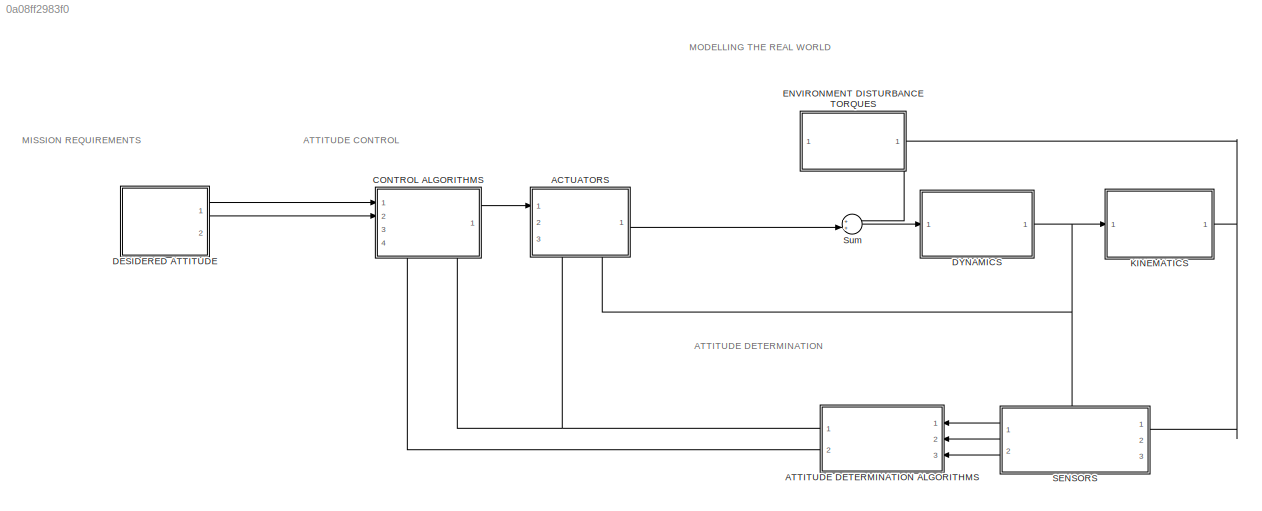
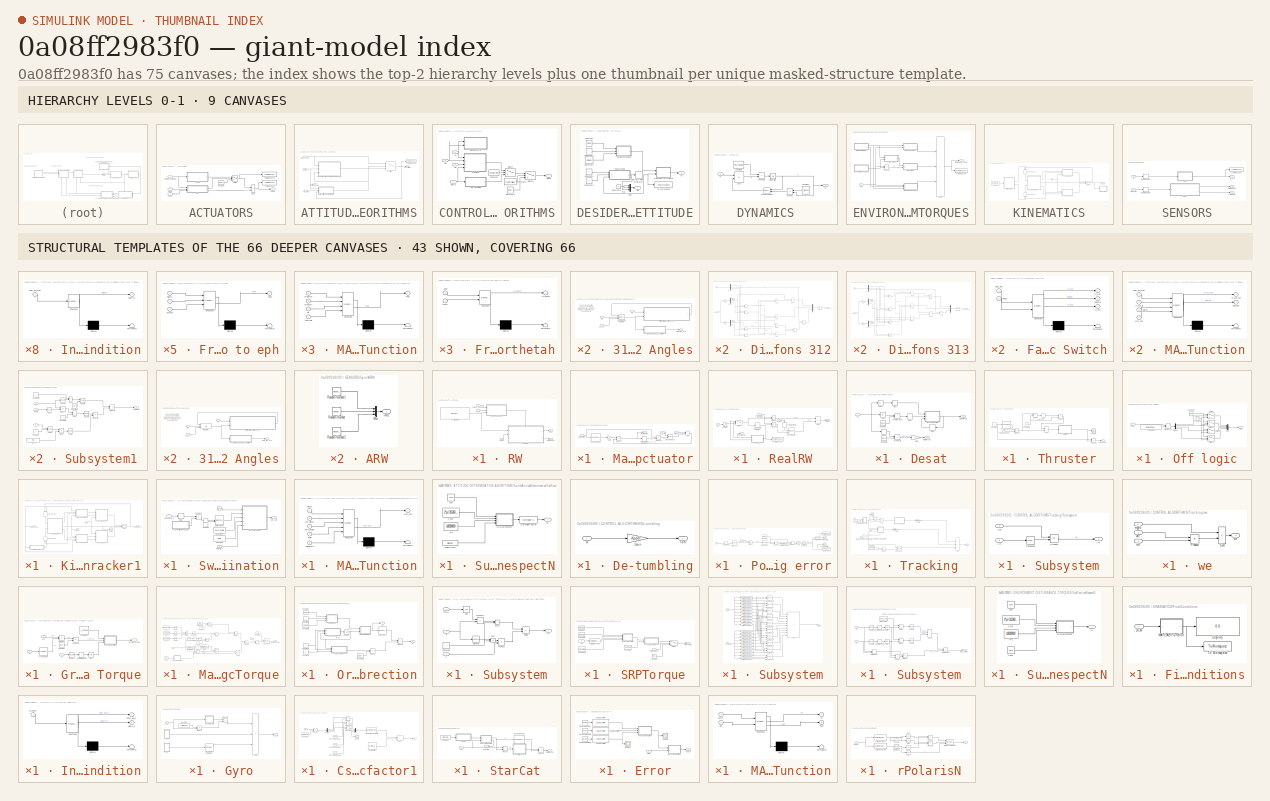
[diagram: thumbnail index - top-2 hierarchy levels (9 canvases) + 43 structural-template representatives of the remaining 66 canvases]
MODEL slx_0a08ff2983f0
KIND model
CONFIG AbsTol = 1e-13
CONFIG EnableMultiTasking = off
CONFIG FixedStep = 1
CONFIG MaxStep = auto
CONFIG MinStep = auto
CONFIG RelTol = 1e-13
CONFIG SampleTimeConstraint = Unconstrained
CONFIG SolverName = VariableStepAuto
CONFIG StartTime = 0.0
CONFIG StopTime = SimTime
BLOCK [SubSystem] ACTUATORS
  NameLocation = top
  PortSchema = {"entries":[{"content":{"sides":[{"content":{"connectorIds":["In1"]},"type":"ConnectorPlacement.EquallySpacedRectSide","uuid":"28bcfce0-0d34-469d-9776-74cc58e318fa"},{"content":{"connectorIds":["Out1"],"side":"RIGHT"},"type":"ConnectorPlacement.EquallySpacedRectSide","uuid":"2255c173-df7a-4664-85cc-96c785adaea5"},{"content":{"connectorIds":[],"side":"TOP"},"type":"ConnectorPlacement.EquallySpacedR...<+395ch>
  Ports = [3, 1]
  RequestExecContextInheritance = off
BLOCK [Constant] ACTUATORS/Constant
  Value = [0;0;0]
BLOCK [SubSystem] ACTUATORS/RW
  Ports = [3, 2]
  RequestExecContextInheritance = off
BLOCK [Constant] ACTUATORS/RW/Aconfiguration
  SampleTime = 1/fgyro
  Value = [1,0,0,1/sqrt(3);0,1,0,1/sqrt(3);0,0,1,1/sqrt(3)]
BLOCK [Outport] ACTUATORS/RW/FlagDesat
BLOCK [SubSystem] ACTUATORS/RW/Mapping actuator
  Ports = [3, 1]
  RequestExecContextInheritance = off
BLOCK [Inport] ACTUATORS/RW/Mapping actuator/Configuration
  Port = 3
BLOCK [Reference] ACTUATORS/RW/Mapping actuator/Cross Product  REF=matrix_library/Cross Product
  Ports = [2, 1]
  SourceBlock = matrix_library/Cross Product
  SourceProductBaseCode = SL
  SourceType = CrossProduct
BLOCK [DiscreteIntegrator] ACTUATORS/RW/Mapping actuator/Discrete-Time Integrator
  ICPrevOutput = DiscIntNeverNeededParam
  ICPrevScaledInput = DiscIntNeverNeededParam
  InitialCondition = [0;0;0;0]
  InitialConditionSetting = Auto
  Ports = [1, 1]
  SampleTime = -1
BLOCK [Outport] ACTUATORS/RW/Mapping actuator/ElectricMotor
BLOCK [Gain] ACTUATORS/RW/Mapping actuator/Gain
  Gain = -1
BLOCK [Product] ACTUATORS/RW/Mapping actuator/Product
  Multiplication = Matrix(*)
  Ports = [2, 1]
BLOCK [Product] ACTUATORS/RW/Mapping actuator/Product1
  Multiplication = Matrix(*)
  Ports = [2, 1]
BLOCK [Reference] ACTUATORS/RW/Mapping actuator/Pseudoinverse  REF=dspinverses/Pseudoinverse
  Ports = [1, 1]
  SourceBlock = dspinverses/Pseudoinverse
  SourceProductBaseCode = DS
  SourceType = Pseudoinverse
BLOCK [Sum] ACTUATORS/RW/Mapping actuator/Sum
  IconShape = rectangular
  Ports = [2, 1]
BLOCK [Inport] ACTUATORS/RW/Mapping actuator/Uideal
BLOCK [Inport] ACTUATORS/RW/Mapping actuator/w_gyro
  Port = 2
BLOCK [SubSystem] ACTUATORS/RW/RealRW
  PortSchema = {"entries":[{"content":{"sides":[{"content":{"connectorIds":["In1","In2"]},"type":"ConnectorPlacement.EquallySpacedRectSide","uuid":"4cf3556b-d79b-4b35-83c7-165ec12fb347"},{"content":{"connectorIds":["Out1","Out2"],"side":"RIGHT"},"type":"ConnectorPlacement.EquallySpacedRectSide","uuid":"b017f686-de2a-46f5-bc21-38e4657d98f2"},{"content":{"connectorIds":["In3"],"side":"TOP"},"type":"ConnectorPlacem...<+258ch>
  Ports = [3, 2]
  RequestExecContextInheritance = off
BLOCK [Inport] ACTUATORS/RW/RealRW/Configuration
BLOCK [Reference] ACTUATORS/RW/RealRW/Cross Product  REF=matrix_library/Cross Product
  Ports = [2, 1]
  SourceBlock = matrix_library/Cross Product
  SourceProductBaseCode = SL
  SourceType = CrossProduct
BLOCK [SubSystem] ACTUATORS/RW/RealRW/Desat
  NameLocation = top
  Ports = [1, 2]
  RequestExecContextInheritance = off
BLOCK [Abs] ACTUATORS/RW/RealRW/Desat/Abs
  SaturateOnIntegerOverflow = off
BLOCK [Abs] ACTUATORS/RW/RealRW/Desat/Abs1
  SaturateOnIntegerOverflow = off
BLOCK [Constant] ACTUATORS/RW/RealRW/Desat/Constant
  Value = maxH
BLOCK [Constant] ACTUATORS/RW/RealRW/Desat/Constant1
  Value = maxT
BLOCK [Delay] ACTUATORS/RW/RealRW/Desat/Delay
  DelayLength = 1
  InputPortMap = u0
  NameLocation = top
  Ports = [1, 1]
BLOCK [Outport] ACTUATORS/RW/RealRW/Desat/FlagDesat
BLOCK [Gain] ACTUATORS/RW/RealRW/Desat/Gain
  Gain = -1
BLOCK [RelationalOperator] ACTUATORS/RW/RealRW/Desat/GreaterThan
  InputSameDT = off
  Operator = >
  OutDataTypeStr = boolean
  Ports = [2, 1]
  RndMeth = Simplest
BLOCK [Inport] ACTUATORS/RW/RealRW/Desat/Hr
BLOCK [SubSystem] ACTUATORS/RW/RealRW/Desat/MATLAB Function
  ErrorFcn = Stateflow.Translate.translate
  PermitHierarchicalResolution = ExplicitOnly
  Ports = [3, 1]
  RequestExecContextInheritance = off
  SFBlockType = MATLAB Function
  TreatAsAtomicUnit = on
BLOCK [Demux] ACTUATORS/RW/RealRW/Desat/MATLAB Function/ Demux 
  Outputs = 1
  Ports = [1, 1]
BLOCK [S-Function] ACTUATORS/RW/RealRW/Desat/MATLAB Function/ SFunction 
  EnableBusSupport = on
  FunctionName = sf_sfun
  PortCounts = [3 2]
  Ports = [3, 2]
  SFcnIsStateOwnerBlock = off
  SFunctionDeploymentMode = off
  Tag = Stateflow S-Function 5
BLOCK [Terminator] ACTUATORS/RW/RealRW/Desat/MATLAB Function/ Terminator 
BLOCK [Outport] ACTUATORS/RW/RealRW/Desat/MATLAB Function/flag
BLOCK [Inport] ACTUATORS/RW/RealRW/Desat/MATLAB Function/flaghr
  Port = 2
BLOCK [Inport] ACTUATORS/RW/RealRW/Desat/MATLAB Function/flagold
  Port = 3
BLOCK [Inport] ACTUATORS/RW/RealRW/Desat/MATLAB Function/maxhr
BLOCK [MinMax] ACTUATORS/RW/RealRW/Desat/Max
  Function = max
  Ports = [1, 1]
BLOCK [MinMax] ACTUATORS/RW/RealRW/Desat/Max1
  Function = max
  Ports = [1, 1]
BLOCK [Outport] ACTUATORS/RW/RealRW/Desat/Mmotorsat
  Port = 2
BLOCK [Product] ACTUATORS/RW/RealRW/Desat/Product2
  Ports = [2, 1]
BLOCK [Signum] ACTUATORS/RW/RealRW/Desat/Sign
BLOCK [DiscreteIntegrator] ACTUATORS/RW/RealRW/Discrete-Time Integrator
  ICPrevOutput = DiscIntNeverNeededParam
  ICPrevScaledInput = DiscIntNeverNeededParam
  InitialCondition = hr0
  InitialConditionSetting = Auto
  Ports = [1, 1]
  SampleTime = -1
BLOCK [Outport] ACTUATORS/RW/RealRW/FlagDesat
  Port = 2
BLOCK [Inport] ACTUATORS/RW/RealRW/Mr
  Port = 3
BLOCK [Product] ACTUATORS/RW/RealRW/Product
  Multiplication = Matrix(*)
  Ports = [2, 1]
BLOCK [Product] ACTUATORS/RW/RealRW/Product1
  Multiplication = Matrix(*)
  Ports = [2, 1]
BLOCK [Saturate] ACTUATORS/RW/RealRW/Saturation
  LowerLimit = -maxT
  UpperLimit = maxT
BLOCK [Sum] ACTUATORS/RW/RealRW/Sum
  IconShape = rectangular
  Inputs = --
  Ports = [2, 1]
BLOCK [Switch] ACTUATORS/RW/RealRW/Switch
  Criteria = u2 > Threshold
  InputSameDT = off
  SaturateOnIntegerOverflow = off
BLOCK [ToWorkspace] ACTUATORS/RW/RealRW/To Workspace
  FixptAsFi = on
  MaxDataPoints = inf
  Ports = [1]
  SampleTime = -1
  SaveFormat = Timeseries
  VariableName = simout2
BLOCK [Outport] ACTUATORS/RW/RealRW/Ureal
BLOCK [ZeroOrderHold] ACTUATORS/RW/RealRW/Zero-Order Hold
  NameLocation = left
  SampleTime = 1/fgyro
BLOCK [Inport] ACTUATORS/RW/RealRW/w_real
  Port = 2
BLOCK [Inport] ACTUATORS/RW/Torque_needed
BLOCK [Outport] ACTUATORS/RW/Treal
  Port = 2
BLOCK [Inport] ACTUATORS/RW/w_real
  Port = 3
BLOCK [Inport] ACTUATORS/RW/wgyro
  Port = 2
BLOCK [Sum] ACTUATORS/Sum
  IconShape = rectangular
  Ports = [2, 1]
BLOCK [Switch] ACTUATORS/Switch
  Criteria = u2 > Threshold
  InputSameDT = off
  SaturateOnIntegerOverflow = off
BLOCK [SubSystem] ACTUATORS/Thruster
  Ports = [1, 1]
  RequestExecContextInheritance = off
BLOCK [Constant] ACTUATORS/Thruster/Constant
  SampleTime = 1/fgyro
  Value = T
BLOCK [Constant] ACTUATORS/Thruster/Constant4
  Value = w
BLOCK [Product] ACTUATORS/Thruster/Divide
  Inputs = */
  Ports = [2, 1]
BLOCK [MinMax] ACTUATORS/Thruster/Max
  Function = max
  Ports = [1, 1]
BLOCK [SubSystem] ACTUATORS/Thruster/On//Off logic
  Ports = [1, 1]
  RequestExecContextInheritance = off
BLOCK [Constant] ACTUATORS/Thruster/On//Off logic/Constant1
  Value = 0
BLOCK [Constant] ACTUATORS/Thruster/On//Off logic/Constant2
  Value = Fmax
BLOCK [Constant] ACTUATORS/Thruster/On//Off logic/Constant3
  Value = [Fmax;Fmax;Fmax;Fmax]
BLOCK [Demux] ACTUATORS/Thruster/On//Off logic/Demux
  Ports = [1, 4]
BLOCK [Inport] ACTUATORS/Thruster/On//Off logic/Fideal
BLOCK [Outport] ACTUATORS/Thruster/On//Off logic/Freal
BLOCK [RelationalOperator] ACTUATORS/Thruster/On//Off logic/GreaterThan
  InputSameDT = off
  Operator = >
  OutDataTypeStr = boolean
  Ports = [2, 1]
  RndMeth = Simplest
BLOCK [Mux] ACTUATORS/Thruster/On//Off logic/Mux
  DisplayOption = bar
  Ports = [4, 1]
BLOCK [Switch] ACTUATORS/Thruster/On//Off logic/Switch
  Criteria = u2 > Threshold
  InputSameDT = off
  SaturateOnIntegerOverflow = off
BLOCK [Switch] ACTUATORS/Thruster/On//Off logic/Switch1
  Criteria = u2 > Threshold
  InputSameDT = off
  SaturateOnIntegerOverflow = off
BLOCK [Switch] ACTUATORS/Thruster/On//Off logic/Switch2
  Criteria = u2 > Threshold
  InputSameDT = off
  SaturateOnIntegerOverflow = off
BLOCK [Switch] ACTUATORS/Thruster/On//Off logic/Switch3
  Criteria = u2 > Threshold
  InputSameDT = off
  SaturateOnIntegerOverflow = off
BLOCK [Product] ACTUATORS/Thruster/Product
  Multiplication = Matrix(*)
  Ports = [2, 1]
BLOCK [Product] ACTUATORS/Thruster/Product1
  Ports = [2, 1]
BLOCK [Product] ACTUATORS/Thruster/Product2
  Multiplication = Matrix(*)
  Ports = [2, 1]
BLOCK [Reference] ACTUATORS/Thruster/Pseudoinverse  REF=dspinverses/Pseudoinverse
  Ports = [1, 1]
  SourceBlock = dspinverses/Pseudoinverse
  SourceProductBaseCode = DS
  SourceType = Pseudoinverse
BLOCK [Scope] ACTUATORS/Thruster/Scope
  Floating = off
  NumInputPorts = 1
  Ports = [1]
  ScopeSpecificationString = Simulink.scopes.TimeScopeBlockCfg('CurrentConfiguration', extmgr.ConfigurationSet(extmgr.Configuration('Core','General UI',true),extmgr.Configuration('Core','Source UI',true),extmgr.Configuration('Sources','WiredSimulink',true,'DataLoggingVariableName','ScopeData5'),extmgr.Configuration('Visuals','Time Domain',true,'SerializedDisplays',{struct('MinYLimReal','-1.00000','MaxYLimReal','1.00000','YLab...<+1424ch>
BLOCK [Sum] ACTUATORS/Thruster/Sum
  IconShape = rectangular
  Ports = [2, 1]
BLOCK [Outport] ACTUATORS/Thruster/TorqueReal
BLOCK [Inport] ACTUATORS/Thruster/Torqueneeded
BLOCK [ToWorkspace] ACTUATORS/To Workspace
  FixptAsFi = on
  MaxDataPoints = inf
  Ports = [1]
  SampleTime = -1
  SaveFormat = Timeseries
  VariableName = simout7
BLOCK [ToWorkspace] ACTUATORS/To Workspace1
  FixptAsFi = on
  MaxDataPoints = inf
  Ports = [1]
  SampleTime = -1
  SaveFormat = Timeseries
  VariableName = simout9
BLOCK [Outport] ACTUATORS/Torque
BLOCK [Inport] ACTUATORS/Torque_needed
  NameLocation = top
BLOCK [Inport] ACTUATORS/w_real
  Port = 3
BLOCK [Inport] ACTUATORS/wgyro
  Port = 2
BLOCK [SubSystem] ATTITUDE DETERMINATION ALGORITHMS
  NameLocation = top
  Ports = [3, 2]
  RequestExecContextInheritance = off
BLOCK [Outport] ATTITUDE DETERMINATION ALGORITHMS/AbnAttitude
  Port = 2
BLOCK [Inport] ATTITUDE DETERMINATION ALGORITHMS/FlagStars
  Port = 2
BLOCK [SubSystem] ATTITUDE DETERMINATION ALGORITHMS/Kinematics with update from Star Tracker1
  Ports = [3, 1]
  RequestExecContextInheritance = off
BLOCK [SubSystem] ATTITUDE DETERMINATION ALGORITHMS/Kinematics with update from Star Tracker1/312 Euler Angles
  Ports = [3, 1]
  RequestExecContextInheritance = off
BLOCK [SubSystem] ATTITUDE DETERMINATION ALGORITHMS/Kinematics with update from Star Tracker1/312 Euler Angles/Create DCM_BN_312 Matrix
  ErrorFcn = Stateflow.Translate.translate
  PermitHierarchicalResolution = ExplicitOnly
  Ports = [1, 1]
  RequestExecContextInheritance = off
  SFBlockType = MATLAB Function
  TreatAsAtomicUnit = on
BLOCK [Demux] ATTITUDE DETERMINATION ALGORITHMS/Kinematics with update from Star Tracker1/312 Euler Angles/Create DCM_BN_312 Matrix/ Demux 
  Outputs = 1
  Ports = [1, 1]
BLOCK [S-Function] ATTITUDE DETERMINATION ALGORITHMS/Kinematics with update from Star Tracker1/312 Euler Angles/Create DCM_BN_312 Matrix/ SFunction 
  EnableBusSupport = on
  FunctionName = sf_sfun
  PortCounts = [1 2]
  Ports = [1, 2]
  SFcnIsStateOwnerBlock = off
  SFunctionDeploymentMode = off
  Tag = Stateflow S-Function 1
BLOCK [Terminator] ATTITUDE DETERMINATION ALGORITHMS/Kinematics with update from Star Tracker1/312 Euler Angles/Create DCM_BN_312 Matrix/ Terminator 
BLOCK [Outport] ATTITUDE DETERMINATION ALGORITHMS/Kinematics with update from Star Tracker1/312 Euler Angles/Create DCM_BN_312 Matrix/DCM_BN_312
BLOCK [Inport] ATTITUDE DETERMINATION ALGORITHMS/Kinematics with update from Star Tracker1/312 Euler Angles/Create DCM_BN_312 Matrix/EA_BN_312
BLOCK [Outport] ATTITUDE DETERMINATION ALGORITHMS/Kinematics with update from Star Tracker1/312 Euler Angles/DCM_BN_312
BLOCK [SubSystem] ATTITUDE DETERMINATION ALGORITHMS/Kinematics with update from Star Tracker1/312 Euler Angles/Differential Equations 312
  Ports = [2, 1]
  RequestExecContextInheritance = off
BLOCK [Trigonometry] ATTITUDE DETERMINATION ALGORITHMS/Kinematics with update from Star Tracker1/312 Euler Angles/Differential Equations 312/Cos
  Operator = cos
  Ports = [1, 1]
BLOCK [Demux] ATTITUDE DETERMINATION ALGORITHMS/Kinematics with update from Star Tracker1/312 Euler Angles/Differential Equations 312/Demux1
  Outputs = 3
  Ports = [1, 3]
BLOCK [Demux] ATTITUDE DETERMINATION ALGORITHMS/Kinematics with update from Star Tracker1/312 Euler Angles/Differential Equations 312/Demux2
  Outputs = 3
  Ports = [1, 3]
BLOCK [Demux] ATTITUDE DETERMINATION ALGORITHMS/Kinematics with update from Star Tracker1/312 Euler Angles/Differential Equations 312/Demux3
  Outputs = 3
  Ports = [1, 3]
BLOCK [Product] ATTITUDE DETERMINATION ALGORITHMS/Kinematics with update from Star Tracker1/312 Euler Angles/Differential Equations 312/Divide
  Inputs = /*
  Ports = [2, 1]
BLOCK [Product] ATTITUDE DETERMINATION ALGORITHMS/Kinematics with update from Star Tracker1/312 Euler Angles/Differential Equations 312/Divide1
  Inputs = /*
  Ports = [2, 1]
BLOCK [Inport] ATTITUDE DETERMINATION ALGORITHMS/Kinematics with update from Star Tracker1/312 Euler Angles/Differential Equations 312/EA_BN_312
  Port = 2
BLOCK [Outport] ATTITUDE DETERMINATION ALGORITHMS/Kinematics with update from Star Tracker1/312 Euler Angles/Differential Equations 312/EA_BN_312_der
BLOCK [Mux] ATTITUDE DETERMINATION ALGORITHMS/Kinematics with update from Star Tracker1/312 Euler Angles/Differential Equations 312/Mux
  DisplayOption = bar
  Inputs = 3
  Ports = [3, 1]
BLOCK [Product] ATTITUDE DETERMINATION ALGORITHMS/Kinematics with update from Star Tracker1/312 Euler Angles/Differential Equations 312/Product
  Ports = [2, 1]
BLOCK [Product] ATTITUDE DETERMINATION ALGORITHMS/Kinematics with update from Star Tracker1/312 Euler Angles/Differential Equations 312/Product1
  Ports = [2, 1]
BLOCK [Product] ATTITUDE DETERMINATION ALGORITHMS/Kinematics with update from Star Tracker1/312 Euler Angles/Differential Equations 312/Product2
  Ports = [2, 1]
BLOCK [Product] ATTITUDE DETERMINATION ALGORITHMS/Kinematics with update from Star Tracker1/312 Euler Angles/Differential Equations 312/Product3
  Ports = [2, 1]
BLOCK [Product] ATTITUDE DETERMINATION ALGORITHMS/Kinematics with update from Star Tracker1/312 Euler Angles/Differential Equations 312/Product4
  Ports = [2, 1]
BLOCK [Reshape] ATTITUDE DETERMINATION ALGORITHMS/Kinematics with update from Star Tracker1/312 Euler Angles/Differential Equations 312/Reshape
  OutputDimensionality = Column vector (2-D)
  Ports = [1, 1]
BLOCK [Trigonometry] ATTITUDE DETERMINATION ALGORITHMS/Kinematics with update from Star Tracker1/312 Euler Angles/Differential Equations 312/Sin
  Ports = [1, 1]
BLOCK [Sum] ATTITUDE DETERMINATION ALGORITHMS/Kinematics with update from Star Tracker1/312 Euler Angles/Differential Equations 312/Sum
  IconShape = rectangular
  Inputs = +-
  Ports = [2, 1]
BLOCK [Sum] ATTITUDE DETERMINATION ALGORITHMS/Kinematics with update from Star Tracker1/312 Euler Angles/Differential Equations 312/Sum1
  IconShape = rectangular
  Ports = [2, 1]
BLOCK [Sum] ATTITUDE DETERMINATION ALGORITHMS/Kinematics with update from Star Tracker1/312 Euler Angles/Differential Equations 312/Sum2
  IconShape = rectangular
  Inputs = -+
  Ports = [2, 1]
BLOCK [Sum] ATTITUDE DETERMINATION ALGORITHMS/Kinematics with update from Star Tracker1/312 Euler Angles/Differential Equations 312/Sum3
  IconShape = rectangular
  Inputs = +-
  Ports = [2, 1]
BLOCK [Terminator] ATTITUDE DETERMINATION ALGORITHMS/Kinematics with update from Star Tracker1/312 Euler Angles/Differential Equations 312/Terminator
BLOCK [Terminator] ATTITUDE DETERMINATION ALGORITHMS/Kinematics with update from Star Tracker1/312 Euler Angles/Differential Equations 312/Terminator1
BLOCK [Inport] ATTITUDE DETERMINATION ALGORITHMS/Kinematics with update from Star Tracker1/312 Euler Angles/Differential Equations 312/wB
BLOCK [DiscreteIntegrator] ATTITUDE DETERMINATION ALGORITHMS/Kinematics with update from Star Tracker1/312 Euler Angles/Discrete-Time Integrator
  ExternalReset = either
  ICPrevOutput = DiscIntNeverNeededParam
  ICPrevScaledInput = DiscIntNeverNeededParam
  InitialConditionSetting = Auto
  InitialConditionSource = external
  Ports = [3, 1]
  SampleTime = -1
BLOCK [Inport] ATTITUDE DETERMINATION ALGORITHMS/Kinematics with update from Star Tracker1/312 Euler Angles/IC_312
BLOCK [Inport] ATTITUDE DETERMINATION ALGORITHMS/Kinematics with update from Star Tracker1/312 Euler Angles/flag
  Port = 2
BLOCK [Inport] ATTITUDE DETERMINATION ALGORITHMS/Kinematics with update from Star Tracker1/312 Euler Angles/wB
  Port = 3
BLOCK [SubSystem] ATTITUDE DETERMINATION ALGORITHMS/Kinematics with update from Star Tracker1/313 Euler Angles
  Ports = [3, 1]
  RequestExecContextInheritance = off
BLOCK [SubSystem] ATTITUDE DETERMINATION ALGORITHMS/Kinematics with update from Star Tracker1/313 Euler Angles/Create DCM_BN_313 Matrix
  ErrorFcn = Stateflow.Translate.translate
  PermitHierarchicalResolution = ExplicitOnly
  Ports = [1, 1]
  RequestExecContextInheritance = off
  SFBlockType = MATLAB Function
  TreatAsAtomicUnit = on
BLOCK [Demux] ATTITUDE DETERMINATION ALGORITHMS/Kinematics with update from Star Tracker1/313 Euler Angles/Create DCM_BN_313 Matrix/ Demux 
  Outputs = 1
  Ports = [1, 1]
BLOCK [S-Function] ATTITUDE DETERMINATION ALGORITHMS/Kinematics with update from Star Tracker1/313 Euler Angles/Create DCM_BN_313 Matrix/ SFunction 
  EnableBusSupport = on
  FunctionName = sf_sfun
  PortCounts = [1 2]
  Ports = [1, 2]
  SFcnIsStateOwnerBlock = off
  SFunctionDeploymentMode = off
  Tag = Stateflow S-Function 2
BLOCK [Terminator] ATTITUDE DETERMINATION ALGORITHMS/Kinematics with update from Star Tracker1/313 Euler Angles/Create DCM_BN_313 Matrix/ Terminator 
BLOCK [Outport] ATTITUDE DETERMINATION ALGORITHMS/Kinematics with update from Star Tracker1/313 Euler Angles/Create DCM_BN_313 Matrix/DCM_BN_313
BLOCK [Inport] ATTITUDE DETERMINATION ALGORITHMS/Kinematics with update from Star Tracker1/313 Euler Angles/Create DCM_BN_313 Matrix/EA_BN_313
BLOCK [Outport] ATTITUDE DETERMINATION ALGORITHMS/Kinematics with update from Star Tracker1/313 Euler Angles/DCM_BN_313
BLOCK [SubSystem] ATTITUDE DETERMINATION ALGORITHMS/Kinematics with update from Star Tracker1/313 Euler Angles/Differential Equations 313
  Ports = [2, 1]
  RequestExecContextInheritance = off
BLOCK [Trigonometry] ATTITUDE DETERMINATION ALGORITHMS/Kinematics with update from Star Tracker1/313 Euler Angles/Differential Equations 313/Cos
  Operator = cos
  Ports = [1, 1]
BLOCK [Demux] ATTITUDE DETERMINATION ALGORITHMS/Kinematics with update from Star Tracker1/313 Euler Angles/Differential Equations 313/Demux1
  Outputs = 3
  Ports = [1, 3]
BLOCK [Demux] ATTITUDE DETERMINATION ALGORITHMS/Kinematics with update from Star Tracker1/313 Euler Angles/Differential Equations 313/Demux2
  Outputs = 3
  Ports = [1, 3]
BLOCK [Demux] ATTITUDE DETERMINATION ALGORITHMS/Kinematics with update from Star Tracker1/313 Euler Angles/Differential Equations 313/Demux3
  Outputs = 3
  Ports = [1, 3]
BLOCK [Product] ATTITUDE DETERMINATION ALGORITHMS/Kinematics with update from Star Tracker1/313 Euler Angles/Differential Equations 313/Divide 1
  Inputs = */
  Ports = [2, 1]
BLOCK [Product] ATTITUDE DETERMINATION ALGORITHMS/Kinematics with update from Star Tracker1/313 Euler Angles/Differential Equations 313/Divide 2
  Inputs = */
  Ports = [2, 1]
BLOCK [Inport] ATTITUDE DETERMINATION ALGORITHMS/Kinematics with update from Star Tracker1/313 Euler Angles/Differential Equations 313/EA_BN_313
  Port = 2
BLOCK [Outport] ATTITUDE DETERMINATION ALGORITHMS/Kinematics with update from Star Tracker1/313 Euler Angles/Differential Equations 313/EA_BN_313_der
BLOCK [Mux] ATTITUDE DETERMINATION ALGORITHMS/Kinematics with update from Star Tracker1/313 Euler Angles/Differential Equations 313/Mux
  DisplayOption = bar
  Inputs = 3
  Ports = [3, 1]
BLOCK [Product] ATTITUDE DETERMINATION ALGORITHMS/Kinematics with update from Star Tracker1/313 Euler Angles/Differential Equations 313/Product1
  Ports = [2, 1]
BLOCK [Product] ATTITUDE DETERMINATION ALGORITHMS/Kinematics with update from Star Tracker1/313 Euler Angles/Differential Equations 313/Product2
  Ports = [2, 1]
BLOCK [Product] ATTITUDE DETERMINATION ALGORITHMS/Kinematics with update from Star Tracker1/313 Euler Angles/Differential Equations 313/Product3
  Ports = [2, 1]
BLOCK [Product] ATTITUDE DETERMINATION ALGORITHMS/Kinematics with update from Star Tracker1/313 Euler Angles/Differential Equations 313/Product4
  Ports = [2, 1]
BLOCK [Reshape] ATTITUDE DETERMINATION ALGORITHMS/Kinematics with update from Star Tracker1/313 Euler Angles/Differential Equations 313/Reshape
  OutputDimensionality = Column vector (2-D)
  Ports = [1, 1]
BLOCK [Trigonometry] ATTITUDE DETERMINATION ALGORITHMS/Kinematics with update from Star Tracker1/313 Euler Angles/Differential Equations 313/Sin
  Ports = [1, 1]
BLOCK [Sum] ATTITUDE DETERMINATION ALGORITHMS/Kinematics with update from Star Tracker1/313 Euler Angles/Differential Equations 313/Sum
  IconShape = rectangular
  Ports = [2, 1]
BLOCK [Sum] ATTITUDE DETERMINATION ALGORITHMS/Kinematics with update from Star Tracker1/313 Euler Angles/Differential Equations 313/Sum1
  IconShape = rectangular
  Inputs = +-
  Ports = [2, 1]
BLOCK [Sum] ATTITUDE DETERMINATION ALGORITHMS/Kinematics with update from Star Tracker1/313 Euler Angles/Differential Equations 313/Sum3
  IconShape = rectangular
  Inputs = +-
  Ports = [2, 1]
BLOCK [Terminator] ATTITUDE DETERMINATION ALGORITHMS/Kinematics with update from Star Tracker1/313 Euler Angles/Differential Equations 313/Terminator
BLOCK [Terminator] ATTITUDE DETERMINATION ALGORITHMS/Kinematics with update from Star Tracker1/313 Euler Angles/Differential Equations 313/Terminator1
BLOCK [Product] ATTITUDE DETERMINATION ALGORITHMS/Kinematics with update from Star Tracker1/313 Euler Angles/Differential Equations 313/t
  Ports = [2, 1]
BLOCK [Inport] ATTITUDE DETERMINATION ALGORITHMS/Kinematics with update from Star Tracker1/313 Euler Angles/Differential Equations 313/wB
BLOCK [DiscreteIntegrator] ATTITUDE DETERMINATION ALGORITHMS/Kinematics with update from Star Tracker1/313 Euler Angles/Discrete-Time Integrator
  ExternalReset = either
  ICPrevOutput = DiscIntNeverNeededParam
  ICPrevScaledInput = DiscIntNeverNeededParam
  InitialConditionSetting = Auto
  InitialConditionSource = external
  Ports = [3, 1]
  SampleTime = -1
BLOCK [Inport] ATTITUDE DETERMINATION ALGORITHMS/Kinematics with update from Star Tracker1/313 Euler Angles/IC_313
  Port = 3
BLOCK [Inport] ATTITUDE DETERMINATION ALGORITHMS/Kinematics with update from Star Tracker1/313 Euler Angles/flag
  Port = 2
BLOCK [Inport] ATTITUDE DETERMINATION ALGORITHMS/Kinematics with update from Star Tracker1/313 Euler Angles/wB
BLOCK [Outport] ATTITUDE DETERMINATION ALGORITHMS/Kinematics with update from Star Tracker1/DCM_BN_gyro
BLOCK [Inport] ATTITUDE DETERMINATION ALGORITHMS/Kinematics with update from Star Tracker1/DCM_BN_star
  NameLocation = top
BLOCK [Delay] ATTITUDE DETERMINATION ALGORITHMS/Kinematics with update from Star Tracker1/Delay One Step
  DelayLength = 1
  InitialConditionSource = Input port
  InputPortMap = u0,p4
  NameLocation = right
  Ports = [2, 1]
BLOCK [Delay] ATTITUDE DETERMINATION ALGORITHMS/Kinematics with update from Star Tracker1/Delay One Step1
  DelayLength = 1
  InitialConditionSource = Input port
  InputPortMap = u0,p4
  NameLocation = left
  Ports = [2, 1]
BLOCK [SubSystem] ATTITUDE DETERMINATION ALGORITHMS/Kinematics with update from Star Tracker1/Factotum Switch
  ErrorFcn = Stateflow.Translate.translate
  PermitHierarchicalResolution = ExplicitOnly
  Ports = [2, 3]
  RequestExecContextInheritance = off
  SFBlockType = MATLAB Function
  TreatAsAtomicUnit = on
BLOCK [Demux] ATTITUDE DETERMINATION ALGORITHMS/Kinematics with update from Star Tracker1/Factotum Switch/ Demux 
  Outputs = 1
  Ports = [1, 1]
BLOCK [S-Function] ATTITUDE DETERMINATION ALGORITHMS/Kinematics with update from Star Tracker1/Factotum Switch/ SFunction 
  EnableBusSupport = on
  FunctionName = sf_sfun
  PortCounts = [2 4]
  Ports = [2, 4]
  SFcnIsStateOwnerBlock = off
  SFunctionDeploymentMode = off
  Tag = Stateflow S-Function 3
BLOCK [Terminator] ATTITUDE DETERMINATION ALGORITHMS/Kinematics with update from Star Tracker1/Factotum Switch/ Terminator 
BLOCK [Inport] ATTITUDE DETERMINATION ALGORITHMS/Kinematics with update from Star Tracker1/Factotum Switch/DCM_BN
BLOCK [Outport] ATTITUDE DETERMINATION ALGORITHMS/Kinematics with update from Star Tracker1/Factotum Switch/IC_312
BLOCK [Outport] ATTITUDE DETERMINATION ALGORITHMS/Kinematics with update from Star Tracker1/Factotum Switch/IC_313
  Port = 3
BLOCK [Inport] ATTITUDE DETERMINATION ALGORITHMS/Kinematics with update from Star Tracker1/Factotum Switch/flagIn
  Port = 2
BLOCK [Outport] ATTITUDE DETERMINATION ALGORITHMS/Kinematics with update from Star Tracker1/Factotum Switch/flagOut
  Port = 2
BLOCK [SubSystem] ATTITUDE DETERMINATION ALGORITHMS/Kinematics with update from Star Tracker1/Initial condition
  ErrorFcn = Stateflow.Translate.translate
  PermitHierarchicalResolution = ExplicitOnly
  Ports = [1, 1]
  RequestExecContextInheritance = off
  SFBlockType = MATLAB Function
  TreatAsAtomicUnit = on
BLOCK [Demux] ATTITUDE DETERMINATION ALGORITHMS/Kinematics with update from Star Tracker1/Initial condition/ Demux 
  Outputs = 1
  Ports = [1, 1]
BLOCK [S-Function] ATTITUDE DETERMINATION ALGORITHMS/Kinematics with update from Star Tracker1/Initial condition/ SFunction 
  EnableBusSupport = on
  FunctionName = sf_sfun
  PortCounts = [1 2]
  Ports = [1, 2]
  SFcnIsStateOwnerBlock = off
  SFunctionDeploymentMode = off
  Tag = Stateflow S-Function 4
BLOCK [Terminator] ATTITUDE DETERMINATION ALGORITHMS/Kinematics with update from Star Tracker1/Initial condition/ Terminator 
BLOCK [Inport] ATTITUDE DETERMINATION ALGORITHMS/Kinematics with update from Star Tracker1/Initial condition/DCM_BN_star
BLOCK [Outport] ATTITUDE DETERMINATION ALGORITHMS/Kinematics with update from Star Tracker1/Initial condition/flagIn_0
BLOCK [SubSystem] ATTITUDE DETERMINATION ALGORITHMS/Kinematics with update from Star Tracker1/MATLAB Function
  ErrorFcn = Stateflow.Translate.translate
  PermitHierarchicalResolution = ExplicitOnly
  Ports = [4, 2]
  RequestExecContextInheritance = off
  SFBlockType = MATLAB Function
  TreatAsAtomicUnit = on
BLOCK [Demux] ATTITUDE DETERMINATION ALGORITHMS/Kinematics with update from Star Tracker1/MATLAB Function/ Demux 
  Outputs = 1
  Ports = [1, 1]
BLOCK [S-Function] ATTITUDE DETERMINATION ALGORITHMS/Kinematics with update from Star Tracker1/MATLAB Function/ SFunction 
  EnableBusSupport = on
  FunctionName = sf_sfun
  PortCounts = [4 3]
  Ports = [4, 3]
  SFcnIsStateOwnerBlock = off
  SFunctionDeploymentMode = off
  Tag = Stateflow S-Function 8
BLOCK [Terminator] ATTITUDE DETERMINATION ALGORITHMS/Kinematics with update from Star Tracker1/MATLAB Function/ Terminator 
BLOCK [Inport] ATTITUDE DETERMINATION ALGORITHMS/Kinematics with update from Star Tracker1/MATLAB Function/DCM_BN_star
BLOCK [Inport] ATTITUDE DETERMINATION ALGORITHMS/Kinematics with update from Star Tracker1/MATLAB Function/IC_312_in
  Port = 2
BLOCK [Outport] ATTITUDE DETERMINATION ALGORITHMS/Kinematics with update from Star Tracker1/MATLAB Function/IC_312_out
BLOCK [Inport] ATTITUDE DETERMINATION ALGORITHMS/Kinematics with update from Star Tracker1/MATLAB Function/flag_in
  Port = 3
BLOCK [Outport] ATTITUDE DETERMINATION ALGORITHMS/Kinematics with update from Star Tracker1/MATLAB Function/flag_out
  Port = 2
BLOCK [Inport] ATTITUDE DETERMINATION ALGORITHMS/Kinematics with update from Star Tracker1/MATLAB Function/star_out
  Port = 4
BLOCK [SubSystem] ATTITUDE DETERMINATION ALGORITHMS/Kinematics with update from Star Tracker1/MATLAB Function1
  ErrorFcn = Stateflow.Translate.translate
  PermitHierarchicalResolution = ExplicitOnly
  Ports = [4, 2]
  RequestExecContextInheritance = off
  SFBlockType = MATLAB Function
  TreatAsAtomicUnit = on
BLOCK [Demux] ATTITUDE DETERMINATION ALGORITHMS/Kinematics with update from Star Tracker1/MATLAB Function1/ Demux 
  Outputs = 1
  Ports = [1, 1]
BLOCK [S-Function] ATTITUDE DETERMINATION ALGORITHMS/Kinematics with update from Star Tracker1/MATLAB Function1/ SFunction 
  EnableBusSupport = on
  FunctionName = sf_sfun
  PortCounts = [4 3]
  Ports = [4, 3]
  SFcnIsStateOwnerBlock = off
  SFunctionDeploymentMode = off
  Tag = Stateflow S-Function 9
BLOCK [Terminator] ATTITUDE DETERMINATION ALGORITHMS/Kinematics with update from Star Tracker1/MATLAB Function1/ Terminator 
BLOCK [Inport] ATTITUDE DETERMINATION ALGORITHMS/Kinematics with update from Star Tracker1/MATLAB Function1/DCM_BN_star
  Port = 4
BLOCK [Inport] ATTITUDE DETERMINATION ALGORITHMS/Kinematics with update from Star Tracker1/MATLAB Function1/IC_313_in
  Port = 3
BLOCK [Outport] ATTITUDE DETERMINATION ALGORITHMS/Kinematics with update from Star Tracker1/MATLAB Function1/IC_313_out
  Port = 2
BLOCK [Inport] ATTITUDE DETERMINATION ALGORITHMS/Kinematics with update from Star Tracker1/MATLAB Function1/flag_in
  Port = 2
BLOCK [Outport] ATTITUDE DETERMINATION ALGORITHMS/Kinematics with update from Star Tracker1/MATLAB Function1/flag_out
BLOCK [Inport] ATTITUDE DETERMINATION ALGORITHMS/Kinematics with update from Star Tracker1/MATLAB Function1/star_out
BLOCK [Scope] ATTITUDE DETERMINATION ALGORITHMS/Kinematics with update from Star Tracker1/Scope
  Floating = off
  NumInputPorts = 1
  Ports = [1]
  ScopeSpecificationString = Simulink.scopes.TimeScopeBlockCfg('CurrentConfiguration', extmgr.ConfigurationSet(extmgr.Configuration('Core','General UI',true),extmgr.Configuration('Core','Source UI',true),extmgr.Configuration('Sources','WiredSimulink',true),extmgr.Configuration('Visuals','Time Domain',true,'SerializedDisplays',{struct('MinYLimReal','-0.02892','MaxYLimReal','1.04146','YLabelReal','','MinYLimMag','0.00000','MaxY...<+1455ch>
BLOCK [Switch] ATTITUDE DETERMINATION ALGORITHMS/Kinematics with update from Star Tracker1/Switch
  Criteria = u2 ~= 0
  InputSameDT = off
  SaturateOnIntegerOverflow = off
BLOCK [Inport] ATTITUDE DETERMINATION ALGORITHMS/Kinematics with update from Star Tracker1/star_out
  Port = 3
BLOCK [Inport] ATTITUDE DETERMINATION ALGORITHMS/Kinematics with update from Star Tracker1/wB_m
  Port = 2
BLOCK [Inport] ATTITUDE DETERMINATION ALGORITHMS/StarsensorSb
BLOCK [Switch] ATTITUDE DETERMINATION ALGORITHMS/Switch
  Criteria = u2 ~= 0
  InputSameDT = off
  SaturateOnIntegerOverflow = off
BLOCK [SubSystem] ATTITUDE DETERMINATION ALGORITHMS/SwitchAttitudeDetermination
  Ports = [3, 1]
  RequestExecContextInheritance = off
BLOCK [Inport] ATTITUDE DETERMINATION ALGORITHMS/SwitchAttitudeDetermination/Abnsensors
  Port = 3
BLOCK [Constant] ATTITUDE DETERMINATION ALGORITHMS/SwitchAttitudeDetermination/Constant
  Value = [0; 0; 1]
  VectorParams1D = off
BLOCK [Constant] ATTITUDE DETERMINATION ALGORITHMS/SwitchAttitudeDetermination/Constant1
  Value = burn_angle
BLOCK [Constant] ATTITUDE DETERMINATION ALGORITHMS/SwitchAttitudeDetermination/Constant2
  Value = w_lim
BLOCK [Delay] ATTITUDE DETERMINATION ALGORITHMS/SwitchAttitudeDetermination/Delay
  DelayLength = 1
  InitialCondition = [1,0,0;0,1,0;0,0,1]
  InputPortMap = u0
  Ports = [1, 1]
BLOCK [DotProduct] ATTITUDE DETERMINATION ALGORITHMS/SwitchAttitudeDetermination/Dot Product
  OutDataTypeStr = Inherit: Inherit via internal rule
BLOCK [Inport] ATTITUDE DETERMINATION ALGORITHMS/SwitchAttitudeDetermination/FlagStars
  Port = 2
BLOCK [SubSystem] ATTITUDE DETERMINATION ALGORITHMS/SwitchAttitudeDetermination/MATLAB Function
  ErrorFcn = Stateflow.Translate.translate
  PermitHierarchicalResolution = ExplicitOnly
  Ports = [5, 1]
  RequestExecContextInheritance = off
  SFBlockType = MATLAB Function
  TreatAsAtomicUnit = on
BLOCK [Demux] ATTITUDE DETERMINATION ALGORITHMS/SwitchAttitudeDetermination/MATLAB Function/ Demux 
  Outputs = 1
  Ports = [1, 1]
BLOCK [S-Function] ATTITUDE DETERMINATION ALGORITHMS/SwitchAttitudeDetermination/MATLAB Function/ SFunction 
  EnableBusSupport = on
  FunctionName = sf_sfun
  PortCounts = [5 2]
  Ports = [5, 2]
  SFcnIsStateOwnerBlock = off
  SFunctionDeploymentMode = off
  Tag = Stateflow S-Function 10
BLOCK [Terminator] ATTITUDE DETERMINATION ALGORITHMS/SwitchAttitudeDetermination/MATLAB Function/ Terminator 
BLOCK [Inport] ATTITUDE DETERMINATION ALGORITHMS/SwitchAttitudeDetermination/MATLAB Function/FlagStars
  Port = 5
BLOCK [Inport] ATTITUDE DETERMINATION ALGORITHMS/SwitchAttitudeDetermination/MATLAB Function/burn_angle
  Port = 3
BLOCK [Inport] ATTITUDE DETERMINATION ALGORITHMS/SwitchAttitudeDetermination/MATLAB Function/cos_alpha
  Port = 2
BLOCK [Outport] ATTITUDE DETERMINATION ALGORITHMS/SwitchAttitudeDetermination/MATLAB Function/star_out
BLOCK [Inport] ATTITUDE DETERMINATION ALGORITHMS/SwitchAttitudeDetermination/MATLAB Function/wB_m
BLOCK [Inport] ATTITUDE DETERMINATION ALGORITHMS/SwitchAttitudeDetermination/MATLAB Function/w_lim
  Port = 4
BLOCK [Product] ATTITUDE DETERMINATION ALGORITHMS/SwitchAttitudeDetermination/Product
  Multiplication = Matrix(*)
  Ports = [2, 1]
BLOCK [SubSystem] ATTITUDE DETERMINATION ALGORITHMS/SwitchAttitudeDetermination/SunPositionRespectN
  Ports = [0, 1]
  RequestExecContextInheritance = off
BLOCK [DigitalClock] ATTITUDE DETERMINATION ALGORITHMS/SwitchAttitudeDetermination/SunPositionRespectN/Digital Clock
  SampleTime = 1/fgyro
BLOCK [SubSystem] ATTITUDE DETERMINATION ALGORITHMS/SwitchAttitudeDetermination/SunPositionRespectN/MATLAB Function
  ErrorFcn = Stateflow.Translate.translate
  PermitHierarchicalResolution = ExplicitOnly
  Ports = [4, 1]
  RequestExecContextInheritance = off
  SFBlockType = MATLAB Function
  TreatAsAtomicUnit = on
BLOCK [Demux] ATTITUDE DETERMINATION ALGORITHMS/SwitchAttitudeDetermination/SunPositionRespectN/MATLAB Function/ Demux 
  Outputs = 1
  Ports = [1, 1]
BLOCK [S-Function] ATTITUDE DETERMINATION ALGORITHMS/SwitchAttitudeDetermination/SunPositionRespectN/MATLAB Function/ SFunction 
  EnableBusSupport = on
  FunctionName = sf_sfun
  PortCounts = [4 2]
  Ports = [4, 2]
  SFcnIsStateOwnerBlock = off
  SFunctionDeploymentMode = off
  Tag = Stateflow S-Function 11
BLOCK [Terminator] ATTITUDE DETERMINATION ALGORITHMS/SwitchAttitudeDetermination/SunPositionRespectN/MATLAB Function/ Terminator 
BLOCK [Inport] ATTITUDE DETERMINATION ALGORITHMS/SwitchAttitudeDetermination/SunPositionRespectN/MATLAB Function/Rs
  Port = 3
BLOCK [Inport] ATTITUDE DETERMINATION ALGORITHMS/SwitchAttitudeDetermination/SunPositionRespectN/MATLAB Function/eps
BLOCK [Inport] ATTITUDE DETERMINATION ALGORITHMS/SwitchAttitudeDetermination/SunPositionRespectN/MATLAB Function/n_sun
  Port = 2
BLOCK [Outport] ATTITUDE DETERMINATION ALGORITHMS/SwitchAttitudeDetermination/SunPositionRespectN/MATLAB Function/sn
BLOCK [Inport] ATTITUDE DETERMINATION ALGORITHMS/SwitchAttitudeDetermination/SunPositionRespectN/MATLAB Function/time
  Port = 4
BLOCK [Reference] ATTITUDE DETERMINATION ALGORITHMS/SwitchAttitudeDetermination/SunPositionRespectN/Normalize Vector  REF=vrlib/Utilities/Normalize Vector
  Ports = [1, 1]
  SourceBlock = vrlib/Utilities/Normalize Vector
  SourceProductBaseCode = SL
  SourceType = Normalize Vector
BLOCK [Constant] ATTITUDE DETERMINATION ALGORITHMS/SwitchAttitudeDetermination/SunPositionRespectN/Rs
  Value = 148390000
BLOCK [Constant] ATTITUDE DETERMINATION ALGORITHMS/SwitchAttitudeDetermination/SunPositionRespectN/eps
  Value = 23.45
BLOCK [Constant] ATTITUDE DETERMINATION ALGORITHMS/SwitchAttitudeDetermination/SunPositionRespectN/n_sun
  Value = 2*pi/31536000
BLOCK [Outport] ATTITUDE DETERMINATION ALGORITHMS/SwitchAttitudeDetermination/SunPositionRespectN/sn
BLOCK [Outport] ATTITUDE DETERMINATION ALGORITHMS/SwitchAttitudeDetermination/star_out
BLOCK [Inport] ATTITUDE DETERMINATION ALGORITHMS/SwitchAttitudeDetermination/wB_m
BLOCK [ToWorkspace] ATTITUDE DETERMINATION ALGORITHMS/To Workspace
  FixptAsFi = on
  MaxDataPoints = inf
  Ports = [1]
  SampleTime = -1
  SaveFormat = Timeseries
  VariableName = simout1
BLOCK [Inport] ATTITUDE DETERMINATION ALGORITHMS/w_gyro
  Port = 3
BLOCK [Outport] ATTITUDE DETERMINATION ALGORITHMS/w_gyro_out
BLOCK [SubSystem] CONTROL ALGORITHMS
  NameLocation = top
  PortSchema = {"entries":[{"content":{"sides":[{"content":{"connectorIds":["In1","In2"]},"type":"ConnectorPlacement.EquallySpacedRectSide","uuid":"73dddf99-4801-43df-975c-c163be84342b"},{"content":{"connectorIds":["Out1"],"side":"RIGHT"},"type":"ConnectorPlacement.EquallySpacedRectSide","uuid":"0da970fe-52f5-407f-b1e9-9d4b0160e11a"},{"content":{"connectorIds":[],"side":"TOP"},"type":"ConnectorPlacement.EquallyS...<+401ch>
  Ports = [4, 1]
  RequestExecContextInheritance = off
BLOCK [Inport] CONTROL ALGORITHMS/Abn
  Port = 3
BLOCK [Inport] CONTROL ALGORITHMS/Ad
BLOCK [Constant] CONTROL ALGORITHMS/Constant
  Value = ModCont
BLOCK [Constant] CONTROL ALGORITHMS/Constant1
  Value = [0;0;0]
BLOCK [Constant] CONTROL ALGORITHMS/Constant2
  Value = Controlled
BLOCK [SubSystem] CONTROL ALGORITHMS/De-tumbling
  Ports = [1, 1]
  RequestExecContextInheritance = off
BLOCK [Gain] CONTROL ALGORITHMS/De-tumbling/Gain
  Gain = -Kpdet
BLOCK [Outport] CONTROL ALGORITHMS/De-tumbling/Tdet
BLOCK [Inport] CONTROL ALGORITHMS/De-tumbling/w
BLOCK [SubSystem] CONTROL ALGORITHMS/Pointing error
  NameLocation = top
  PortSchema = {"entries":[{"content":{"sides":[{"content":{"connectorIds":[]},"type":"ConnectorPlacement.EquallySpacedRectSide","uuid":"59077e71-7c09-4a90-bf3b-715fb2f3e64a"},{"content":{"connectorIds":["In1","In2"],"side":"RIGHT"},"type":"ConnectorPlacement.EquallySpacedRectSide","uuid":"5359064d-45c1-447c-a242-520af2c8ee16"},{"content":{"connectorIds":[],"side":"TOP"},"type":"ConnectorPlacement.EquallySpacedR...<+240ch>
  Ports = [2]
  RequestExecContextInheritance = off
BLOCK [Inport] CONTROL ALGORITHMS/Pointing error/Abnsen
  Port = 2
BLOCK [Scope] CONTROL ALGORITHMS/Pointing error/AbsoluteStability1
  Floating = off
  NumInputPorts = 1
  Ports = [1]
  ScopeSpecificationString = Simulink.scopes.TimeScopeBlockCfg('CurrentConfiguration', extmgr.ConfigurationSet(extmgr.Configuration('Core','General UI',true),extmgr.Configuration('Core','Source UI',true),extmgr.Configuration('Sources','WiredSimulink',true,'DataLoggingVariableName','ScopeData1'),extmgr.Configuration('Visuals','Time Domain',true,'SerializedDisplays',{struct('MinYLimReal','-1.67664','MaxYLimReal','15.10393','YLa...<+1397ch>
BLOCK [Trigonometry] CONTROL ALGORITHMS/Pointing error/Acos
  Operator = acos
  Ports = [1, 1]
BLOCK [Inport] CONTROL ALGORITHMS/Pointing error/Ad
BLOCK [Constant] CONTROL ALGORITHMS/Pointing error/Constant
  Value = [1;0;0]
BLOCK [Reference] CONTROL ALGORITHMS/Pointing error/Discrete Derivative1  REF=simulink/Discrete/Discrete Derivative
  Ports = [1, 1]
  SourceBlock = simulink/Discrete/Discrete Derivative
  SourceProductBaseCode = SL
  SourceType = Discrete Derivative
BLOCK [DotProduct] CONTROL ALGORITHMS/Pointing error/Dot Product
  OutDataTypeStr = Inherit: Inherit via internal rule
BLOCK [Reference] CONTROL ALGORITHMS/Pointing error/Normalize Vector1  REF=vrlib/Utilities/Normalize Vector
  Ports = [1, 1]
  SourceBlock = vrlib/Utilities/Normalize Vector
  SourceProductBaseCode = SL
  SourceType = Normalize Vector
BLOCK [Scope] CONTROL ALGORITHMS/Pointing error/PointingStability
  Floating = off
  NumInputPorts = 1
  Ports = [1]
  ScopeSpecificationString = Simulink.scopes.TimeScopeBlockCfg('CurrentConfiguration', extmgr.ConfigurationSet(extmgr.Configuration('Core','General UI',true),extmgr.Configuration('Core','Source UI',true),extmgr.Configuration('Sources','WiredSimulink',true,'DataLoggingVariableName','ScopeData1'),extmgr.Configuration('Visuals','Time Domain',true,'SerializedDisplays',{struct('MinYLimReal','-15.38853','MaxYLimReal','128.42932','Y...<+1408ch>
BLOCK [Product] CONTROL ALGORITHMS/Pointing error/Product
  Multiplication = Matrix(*)
  Ports = [2, 1]
BLOCK [Product] CONTROL ALGORITHMS/Pointing error/Product2
  Multiplication = Matrix(*)
  Ports = [2, 1]
BLOCK [Reference] CONTROL ALGORITHMS/Pointing error/Radians to Degrees1  REF=simulink_extras/Transformations/Radians
to Degrees
  Ports = [1, 1]
  SourceBlock = simulink_extras/Transformations/Radians\nto Degrees
  SourceProductBaseCode = SL
  SourceType = RadiansToDegrees
BLOCK [ToWorkspace] CONTROL ALGORITHMS/Pointing error/To Workspace
  FixptAsFi = on
  MaxDataPoints = inf
  Ports = [1]
  SampleTime = -1
  SaveFormat = Timeseries
  VariableName = simout3
BLOCK [ToWorkspace] CONTROL ALGORITHMS/Pointing error/To Workspace1
  FixptAsFi = on
  MaxDataPoints = inf
  Ports = [1]
  SampleTime = -1
  SaveFormat = Timeseries
  VariableName = simout4
BLOCK [Reference] CONTROL ALGORITHMS/Pointing error/Transpose  REF=matrix_library/Transpose
  Ports = [1, 1]
  SourceBlock = matrix_library/Transpose
  SourceProductBaseCode = SL
  SourceType = Transpose
BLOCK [Reference] CONTROL ALGORITHMS/Pointing error/Transpose2  REF=matrix_library/Transpose
  Ports = [1, 1]
  SourceBlock = matrix_library/Transpose
  SourceProductBaseCode = SL
  SourceType = Transpose
BLOCK [ZeroOrderHold] CONTROL ALGORITHMS/Pointing error/Zero-Order Hold
  SampleTime = 1/fgyro
BLOCK [Switch] CONTROL ALGORITHMS/Switch
  Criteria = u2 > Threshold
  InputSameDT = off
  SaturateOnIntegerOverflow = off
BLOCK [Switch] CONTROL ALGORITHMS/Switch1
  Criteria = u2 > Threshold
  InputSameDT = off
  SaturateOnIntegerOverflow = off
BLOCK [Outport] CONTROL ALGORITHMS/Tideal
BLOCK [SubSystem] CONTROL ALGORITHMS/Tracking
  Ports = [4, 1]
  RequestExecContextInheritance = off
BLOCK [Inport] CONTROL ALGORITHMS/Tracking/Abn
  Port = 2
BLOCK [Inport] CONTROL ALGORITHMS/Tracking/Ad
BLOCK [Constant] CONTROL ALGORITHMS/Tracking/Constant
  Value = I_tensor
BLOCK [Reference] CONTROL ALGORITHMS/Tracking/Cross Product  REF=matrix_library/Cross Product
  Ports = [2, 1]
  SourceBlock = matrix_library/Cross Product
  SourceProductBaseCode = SL
  SourceType = CrossProduct
BLOCK [Gain] CONTROL ALGORITHMS/Tracking/Gain
  Gain = -Kptrack
BLOCK [Gain] CONTROL ALGORITHMS/Tracking/Gain1
  Gain = -Kdtrack
BLOCK [SubSystem] CONTROL ALGORITHMS/Tracking/MATLAB Function
  ErrorFcn = Stateflow.Translate.translate
  PermitHierarchicalResolution = ExplicitOnly
  Ports = [1, 1]
  RequestExecContextInheritance = off
  SFBlockType = MATLAB Function
  TreatAsAtomicUnit = on
BLOCK [Demux] CONTROL ALGORITHMS/Tracking/MATLAB Function/ Demux 
  Outputs = 1
  Ports = [1, 1]
BLOCK [S-Function] CONTROL ALGORITHMS/Tracking/MATLAB Function/ SFunction 
  EnableBusSupport = on
  FunctionName = sf_sfun
  PortCounts = [1 2]
  Ports = [1, 2]
  SFcnIsStateOwnerBlock = off
  SFunctionDeploymentMode = off
  Tag = Stateflow S-Function 15
BLOCK [Terminator] CONTROL ALGORITHMS/Tracking/MATLAB Function/ Terminator 
BLOCK [Outport] CONTROL ALGORITHMS/Tracking/MATLAB Function/inversehat
BLOCK [Inport] CONTROL ALGORITHMS/Tracking/MATLAB Function/matrix
BLOCK [Product] CONTROL ALGORITHMS/Tracking/Product3
  Multiplication = Matrix(*)
  Ports = [2, 1]
BLOCK [Scope] CONTROL ALGORITHMS/Tracking/Scope
  Floating = off
  NumInputPorts = 1
  Ports = [1]
  ScopeSpecificationString = Simulink.scopes.TimeScopeBlockCfg('CurrentConfiguration', extmgr.ConfigurationSet(extmgr.Configuration('Core','General UI',true),extmgr.Configuration('Core','Source UI',true),extmgr.Configuration('Sources','WiredSimulink',true,'DataLoggingVariableName','ScopeData7'),extmgr.Configuration('Visuals','Time Domain',true,'SerializedDisplays',{struct('MinYLimReal','-0.46933','MaxYLimReal','1.16326','YLab...<+1482ch>
BLOCK [SubSystem] CONTROL ALGORITHMS/Tracking/Subsystem
  Ports = [2, 1]
  RequestExecContextInheritance = off
BLOCK [Inport] CONTROL ALGORITHMS/Tracking/Subsystem/Abn
BLOCK [Outport] CONTROL ALGORITHMS/Tracking/Subsystem/Ae
BLOCK [Inport] CONTROL ALGORITHMS/Tracking/Subsystem/Aln
  Port = 2
BLOCK [Product] CONTROL ALGORITHMS/Tracking/Subsystem/Product
  Multiplication = Matrix(*)
  Ports = [2, 1]
BLOCK [Reference] CONTROL ALGORITHMS/Tracking/Subsystem/Transpose  REF=matrix_library/Transpose
  Ports = [1, 1]
  SourceBlock = matrix_library/Transpose
  SourceProductBaseCode = SL
  SourceType = Transpose
BLOCK [Sum] CONTROL ALGORITHMS/Tracking/Sum
  IconShape = rectangular
  Inputs = +-
  Ports = [2, 1]
BLOCK [Sum] CONTROL ALGORITHMS/Tracking/Sum1
  IconShape = rectangular
  Inputs = +++
  Ports = [3, 1]
BLOCK [Reference] CONTROL ALGORITHMS/Tracking/Transpose  REF=matrix_library/Transpose
  Ports = [1, 1]
  SourceBlock = matrix_library/Transpose
  SourceProductBaseCode = SL
  SourceType = Transpose
BLOCK [Outport] CONTROL ALGORITHMS/Tracking/Ttrack
BLOCK [ZeroOrderHold] CONTROL ALGORITHMS/Tracking/Zero-Order Hold
  SampleTime = -1
BLOCK [Inport] CONTROL ALGORITHMS/Tracking/wd
  Port = 3
BLOCK [SubSystem] CONTROL ALGORITHMS/Tracking/we
  Ports = [3, 1]
  RequestExecContextInheritance = off
BLOCK [Inport] CONTROL ALGORITHMS/Tracking/we/Ae
BLOCK [Product] CONTROL ALGORITHMS/Tracking/we/Product
  Multiplication = Matrix(*)
  Ports = [2, 1]
BLOCK [Sum] CONTROL ALGORITHMS/Tracking/we/Sum
  IconShape = rectangular
  Inputs = +-
  Ports = [2, 1]
BLOCK [Inport] CONTROL ALGORITHMS/Tracking/we/wd
  Port = 2
BLOCK [Outport] CONTROL ALGORITHMS/Tracking/we/we
BLOCK [Inport] CONTROL ALGORITHMS/Tracking/we/wgyro
  Port = 3
BLOCK [Inport] CONTROL ALGORITHMS/Tracking/wgyro
  Port = 4
BLOCK [Inport] CONTROL ALGORITHMS/wd
  Port = 2
BLOCK [Inport] CONTROL ALGORITHMS/wgyro
  NameLocation = top
  Port = 4
BLOCK [SubSystem] DESIDERED ATTITUDE
  NameLocation = top
  Ports = [0, 2]
  RequestExecContextInheritance = off
BLOCK [Outport] DESIDERED ATTITUDE/Ad
BLOCK [Constant] DESIDERED ATTITUDE/Constant
  Value = sigma
BLOCK [Constant] DESIDERED ATTITUDE/Constant1
  Value = i
BLOCK [Constant] DESIDERED ATTITUDE/Constant2
  Value = omega
BLOCK [Constant] DESIDERED ATTITUDE/Constant3
  Value = a
BLOCK [Constant] DESIDERED ATTITUDE/Constant4
  Value = e
BLOCK [Constant] DESIDERED ATTITUDE/Constant5
  Value = 0
BLOCK [DiscreteIntegrator] DESIDERED ATTITUDE/Discrete-Time Integrator
  ICPrevOutput = DiscIntNeverNeededParam
  ICPrevScaledInput = DiscIntNeverNeededParam
  InitialCondition = theta0orb
  InitialConditionSetting = Auto
  Ports = [1, 1]
  SampleTime = -1
BLOCK [SubSystem] DESIDERED ATTITUDE/From N to eph
  ErrorFcn = Stateflow.Translate.translate
  PermitHierarchicalResolution = ExplicitOnly
  Ports = [3, 1]
  RequestExecContextInheritance = off
  SFBlockType = MATLAB Function
  TreatAsAtomicUnit = on
BLOCK [Demux] DESIDERED ATTITUDE/From N to eph/ Demux 
  Outputs = 1
  Ports = [1, 1]
BLOCK [S-Function] DESIDERED ATTITUDE/From N to eph/ SFunction 
  EnableBusSupport = on
  FunctionName = sf_sfun
  PortCounts = [3 2]
  Ports = [3, 2]
  SFcnIsStateOwnerBlock = off
  SFunctionDeploymentMode = off
  Tag = Stateflow S-Function 6
BLOCK [Terminator] DESIDERED ATTITUDE/From N to eph/ Terminator 
BLOCK [Outport] DESIDERED ATTITUDE/From N to eph/Aeph
BLOCK [Inport] DESIDERED ATTITUDE/From N to eph/i
  Port = 2
BLOCK [Inport] DESIDERED ATTITUDE/From N to eph/omega
  Port = 3
BLOCK [Inport] DESIDERED ATTITUDE/From N to eph/sigma
BLOCK [SubSystem] DESIDERED ATTITUDE/From eph to rthetah
  ErrorFcn = Stateflow.Translate.translate
  PermitHierarchicalResolution = ExplicitOnly
  Ports = [2, 1]
  RequestExecContextInheritance = off
  SFBlockType = MATLAB Function
  TreatAsAtomicUnit = on
BLOCK [Demux] DESIDERED ATTITUDE/From eph to rthetah/ Demux 
  Outputs = 1
  Ports = [1, 1]
BLOCK [S-Function] DESIDERED ATTITUDE/From eph to rthetah/ SFunction 
  EnableBusSupport = on
  FunctionName = sf_sfun
  PortCounts = [2 2]
  Ports = [2, 2]
  SFcnIsStateOwnerBlock = off
  SFunctionDeploymentMode = off
  Tag = Stateflow S-Function 7
BLOCK [Terminator] DESIDERED ATTITUDE/From eph to rthetah/ Terminator 
BLOCK [Inport] DESIDERED ATTITUDE/From eph to rthetah/Aeph
BLOCK [Outport] DESIDERED ATTITUDE/From eph to rthetah/Arthetah
BLOCK [Inport] DESIDERED ATTITUDE/From eph to rthetah/theta
  Port = 2
BLOCK [Mux] DESIDERED ATTITUDE/Mux
  DisplayOption = bar
  Inputs = 3
  Ports = [3, 1]
BLOCK [SubSystem] DESIDERED ATTITUDE/Subsystem1
  Ports = [3, 1]
  RequestExecContextInheritance = off
BLOCK [Constant] DESIDERED ATTITUDE/Subsystem1/Constant
  Value = 3
BLOCK [Constant] DESIDERED ATTITUDE/Subsystem1/Constant1
BLOCK [Constant] DESIDERED ATTITUDE/Subsystem1/Constant2
BLOCK [Constant] DESIDERED ATTITUDE/Subsystem1/Constant3
  Value = -3/2
BLOCK [Trigonometry] DESIDERED ATTITUDE/Subsystem1/Cos
  Operator = cos
  Ports = [1, 1]
BLOCK [Product] DESIDERED ATTITUDE/Subsystem1/Divide
  Inputs = /*
  Ports = [2, 1]
BLOCK [Constant] DESIDERED ATTITUDE/Subsystem1/Mu
  Value = mu
BLOCK [Math] DESIDERED ATTITUDE/Subsystem1/Power
  Operator = pow
  Ports = [2, 1]
BLOCK [Math] DESIDERED ATTITUDE/Subsystem1/Power1
  Operator = pow
  Ports = [2, 1]
BLOCK [Product] DESIDERED ATTITUDE/Subsystem1/Product
  Ports = [2, 1]
BLOCK [Product] DESIDERED ATTITUDE/Subsystem1/Product1
  Ports = [2, 1]
BLOCK [Product] DESIDERED ATTITUDE/Subsystem1/Product2
  Ports = [2, 1]
BLOCK [Sqrt] DESIDERED ATTITUDE/Subsystem1/Sqrt
BLOCK [Math] DESIDERED ATTITUDE/Subsystem1/Square
  Operator = square
  Ports = [1, 1]
BLOCK [Math] DESIDERED ATTITUDE/Subsystem1/Square1
  Operator = square
  Ports = [1, 1]
BLOCK [Sum] DESIDERED ATTITUDE/Subsystem1/Sum
  IconShape = rectangular
  Ports = [2, 1]
BLOCK [Sum] DESIDERED ATTITUDE/Subsystem1/Sum1
  IconShape = rectangular
  Inputs = +-
  Ports = [2, 1]
BLOCK [Inport] DESIDERED ATTITUDE/Subsystem1/Theta
  Port = 3
BLOCK [Outport] DESIDERED ATTITUDE/Subsystem1/ThetaDot
BLOCK [Inport] DESIDERED ATTITUDE/Subsystem1/a
  Port = 2
BLOCK [Inport] DESIDERED ATTITUDE/Subsystem1/e
BLOCK [ToWorkspace] DESIDERED ATTITUDE/To Workspace
  FixptAsFi = on
  MaxDataPoints = inf
  Ports = [1]
  SampleTime = -1
  SaveFormat = Timeseries
  VariableName = simout8
BLOCK [Outport] DESIDERED ATTITUDE/wd
  Port = 2
BLOCK [SubSystem] DYNAMICS  
  NameLocation = top
  Ports = [1, 1]
  RequestExecContextInheritance = off
BLOCK [Constant] DYNAMICS  /Constant
  NameLocation = top
  Value = I_tensor
BLOCK [Constant] DYNAMICS  /Constant1
  Value = Iinv_tensor
BLOCK [Reference] DYNAMICS  /Cross Product  REF=vrlib/Utilities/Cross Product
  NameLocation = top
  Ports = [2, 1]
  SourceBlock = vrlib/Utilities/Cross Product
  SourceProductBaseCode = SL
  SourceType = Cross Product
BLOCK [Integrator] DYNAMICS  /Integrator
  InitialCondition = w0_vector
  Ports = [1, 1]
BLOCK [Inport] DYNAMICS  /M
BLOCK [Product] DYNAMICS  /Product
  Multiplication = Matrix(*)
  NameLocation = top
  Ports = [2, 1]
BLOCK [Product] DYNAMICS  /Product1
  Multiplication = Matrix(*)
  Ports = [2, 1]
BLOCK [Sum] DYNAMICS  /Sum
  IconShape = rectangular
  Inputs = +-
  Ports = [2, 1]
BLOCK [Outport] DYNAMICS  /w
BLOCK [SubSystem] ENVIRONMENT DISTURBANCE TORQUES
  NameLocation = top
  PortSchema = {"entries":[{"content":{"sides":[{"content":{"connectorIds":["In1"]},"type":"ConnectorPlacement.EquallySpacedRectSide","uuid":"a2be9383-99de-4e0f-aff6-078514624980"},{"content":{"connectorIds":[],"side":"RIGHT"},"type":"ConnectorPlacement.EquallySpacedRectSide","uuid":"8c8f0942-4a2a-4cb8-b252-92284a086b4d"},{"content":{"connectorIds":["Out1"],"side":"TOP"},"type":"ConnectorPlacement.EquallySpacedR...<+240ch>
  Ports = [1, 1]
  RequestExecContextInheritance = off
BLOCK [Inport] ENVIRONMENT DISTURBANCE TORQUES/Abn
BLOCK [Outport] ENVIRONMENT DISTURBANCE TORQUES/DisturbanceTorques
BLOCK [SubSystem] ENVIRONMENT DISTURBANCE TORQUES/Gravity Gradient Torque
  Ports = [3, 1]
  RequestExecContextInheritance = off
BLOCK [Inport] ENVIRONMENT DISTURBANCE TORQUES/Gravity Gradient Torque/Abn
BLOCK [Inport] ENVIRONMENT DISTURBANCE TORQUES/Gravity Gradient Torque/Aln
  Port = 2
BLOCK [Constant] ENVIRONMENT DISTURBANCE TORQUES/Gravity Gradient Torque/Constant
  Value = [1;0;0]
BLOCK [Constant] ENVIRONMENT DISTURBANCE TORQUES/Gravity Gradient Torque/Constant1
  Value = I_tensor
BLOCK [Outport] ENVIRONMENT DISTURBANCE TORQUES/Gravity Gradient Torque/GravityTorque
BLOCK [SubSystem] ENVIRONMENT DISTURBANCE TORQUES/Gravity Gradient Torque/MATLAB Function
  ErrorFcn = Stateflow.Translate.translate
  PermitHierarchicalResolution = ExplicitOnly
  Ports = [3, 1]
  RequestExecContextInheritance = off
  SFBlockType = MATLAB Function
  TreatAsAtomicUnit = on
BLOCK [Demux] ENVIRONMENT DISTURBANCE TORQUES/Gravity Gradient Torque/MATLAB Function/ Demux 
  Outputs = 1
  Ports = [1, 1]
BLOCK [S-Function] ENVIRONMENT DISTURBANCE TORQUES/Gravity Gradient Torque/MATLAB Function/ SFunction 
  EnableBusSupport = on
  FunctionName = sf_sfun
  PortCounts = [3 2]
  Ports = [3, 2]
  SFcnIsStateOwnerBlock = off
  SFunctionDeploymentMode = off
  Tag = Stateflow S-Function 39
BLOCK [Terminator] ENVIRONMENT DISTURBANCE TORQUES/Gravity Gradient Torque/MATLAB Function/ Terminator 
BLOCK [Inport] ENVIRONMENT DISTURBANCE TORQUES/Gravity Gradient Torque/MATLAB Function/I
BLOCK [Outport] ENVIRONMENT DISTURBANCE TORQUES/Gravity Gradient Torque/MATLAB Function/M
BLOCK [Inport] ENVIRONMENT DISTURBANCE TORQUES/Gravity Gradient Torque/MATLAB Function/c
  Port = 2
BLOCK [Inport] ENVIRONMENT DISTURBANCE TORQUES/Gravity Gradient Torque/MATLAB Function/rnorm
  Port = 3
BLOCK [Product] ENVIRONMENT DISTURBANCE TORQUES/Gravity Gradient Torque/Product
  Multiplication = Matrix(*)
  Ports = [2, 1]
BLOCK [Product] ENVIRONMENT DISTURBANCE TORQUES/Gravity Gradient Torque/Product1
  Multiplication = Matrix(*)
  Ports = [2, 1]
BLOCK [Sqrt] ENVIRONMENT DISTURBANCE TORQUES/Gravity Gradient Torque/Sqrt
BLOCK [Math] ENVIRONMENT DISTURBANCE TORQUES/Gravity Gradient Torque/Square
  Operator = square
  Ports = [1, 1]
BLOCK [Sum] ENVIRONMENT DISTURBANCE TORQUES/Gravity Gradient Torque/Sum of Elements
  IconShape = rectangular
  Inputs = +
  Ports = [1, 1]
BLOCK [Reference] ENVIRONMENT DISTURBANCE TORQUES/Gravity Gradient Torque/Transpose  REF=matrix_library/Transpose
  Ports = [1, 1]
  SourceBlock = matrix_library/Transpose
  SourceProductBaseCode = SL
  SourceType = Transpose
BLOCK [Inport] ENVIRONMENT DISTURBANCE TORQUES/Gravity Gradient Torque/rn
  Port = 3
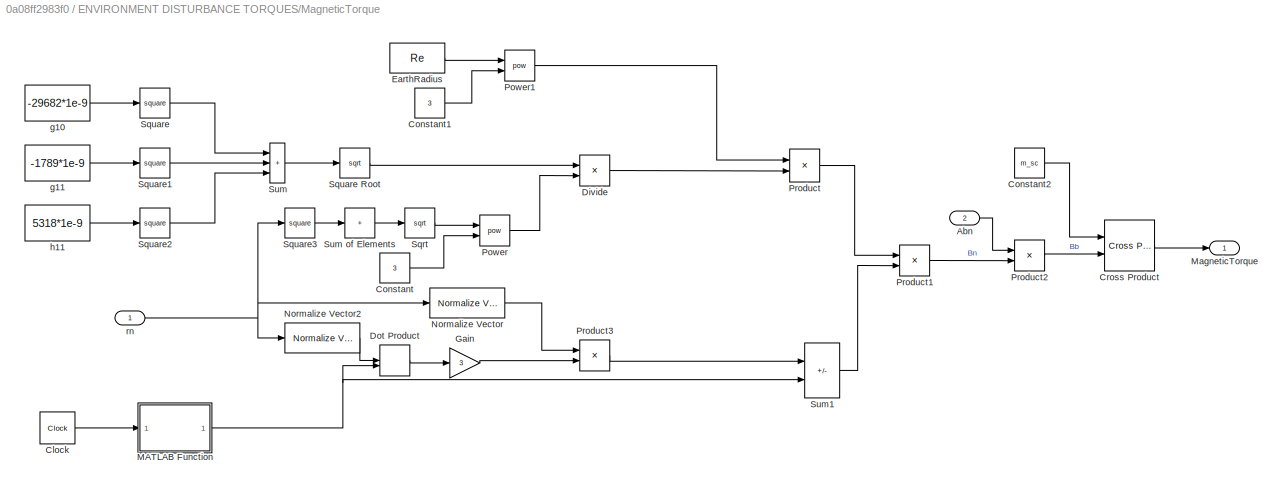
BLOCK [SubSystem] ENVIRONMENT DISTURBANCE TORQUES/MagneticTorque
  Ports = [2, 1]
  RequestExecContextInheritance = off
BLOCK [Inport] ENVIRONMENT DISTURBANCE TORQUES/MagneticTorque/Abn
  Port = 2
BLOCK [Clock] ENVIRONMENT DISTURBANCE TORQUES/MagneticTorque/Clock
BLOCK [Constant] ENVIRONMENT DISTURBANCE TORQUES/MagneticTorque/Constant
  Value = 3
BLOCK [Constant] ENVIRONMENT DISTURBANCE TORQUES/MagneticTorque/Constant1
  Value = 3
BLOCK [Constant] ENVIRONMENT DISTURBANCE TORQUES/MagneticTorque/Constant2
  Value = m_sc
BLOCK [Reference] ENVIRONMENT DISTURBANCE TORQUES/MagneticTorque/Cross Product  REF=matrix_library/Cross Product
  Ports = [2, 1]
  SourceBlock = matrix_library/Cross Product
  SourceProductBaseCode = SL
  SourceType = CrossProduct
BLOCK [Product] ENVIRONMENT DISTURBANCE TORQUES/MagneticTorque/Divide
  Inputs = */
  Ports = [2, 1]
BLOCK [DotProduct] ENVIRONMENT DISTURBANCE TORQUES/MagneticTorque/Dot Product
  OutDataTypeStr = Inherit: Inherit via internal rule
BLOCK [Constant] ENVIRONMENT DISTURBANCE TORQUES/MagneticTorque/EarthRadius
  Value = Re
BLOCK [Gain] ENVIRONMENT DISTURBANCE TORQUES/MagneticTorque/Gain
  Gain = 3
BLOCK [SubSystem] ENVIRONMENT DISTURBANCE TORQUES/MagneticTorque/MATLAB Function
  ErrorFcn = Stateflow.Translate.translate
  PermitHierarchicalResolution = ExplicitOnly
  Ports = [1, 1]
  RequestExecContextInheritance = off
  SFBlockType = MATLAB Function
  TreatAsAtomicUnit = on
BLOCK [Demux] ENVIRONMENT DISTURBANCE TORQUES/MagneticTorque/MATLAB Function/ Demux 
  Outputs = 1
  Ports = [1, 1]
BLOCK [S-Function] ENVIRONMENT DISTURBANCE TORQUES/MagneticTorque/MATLAB Function/ SFunction 
  EnableBusSupport = on
  FunctionName = sf_sfun
  PortCounts = [1 2]
  Ports = [1, 2]
  SFcnIsStateOwnerBlock = off
  SFunctionDeploymentMode = off
  Tag = Stateflow S-Function 40
BLOCK [Terminator] ENVIRONMENT DISTURBANCE TORQUES/MagneticTorque/MATLAB Function/ Terminator 
BLOCK [Outport] ENVIRONMENT DISTURBANCE TORQUES/MagneticTorque/MATLAB Function/mdir
BLOCK [Inport] ENVIRONMENT DISTURBANCE TORQUES/MagneticTorque/MATLAB Function/time
BLOCK [Outport] ENVIRONMENT DISTURBANCE TORQUES/MagneticTorque/MagneticTorque
BLOCK [Reference] ENVIRONMENT DISTURBANCE TORQUES/MagneticTorque/Normalize Vector  REF=vrlib/Utilities/Normalize Vector
  Ports = [1, 1]
  SourceBlock = vrlib/Utilities/Normalize Vector
  SourceProductBaseCode = SL
  SourceType = Normalize Vector
BLOCK [Reference] ENVIRONMENT DISTURBANCE TORQUES/MagneticTorque/Normalize Vector2  REF=vrlib/Utilities/Normalize Vector
  Ports = [1, 1]
  SourceBlock = vrlib/Utilities/Normalize Vector
  SourceProductBaseCode = SL
  SourceType = Normalize Vector
BLOCK [Math] ENVIRONMENT DISTURBANCE TORQUES/MagneticTorque/Power
  Operator = pow
  Ports = [2, 1]
BLOCK [Math] ENVIRONMENT DISTURBANCE TORQUES/MagneticTorque/Power1
  Operator = pow
  Ports = [2, 1]
BLOCK [Product] ENVIRONMENT DISTURBANCE TORQUES/MagneticTorque/Product
  Ports = [2, 1]
BLOCK [Product] ENVIRONMENT DISTURBANCE TORQUES/MagneticTorque/Product1
  Ports = [2, 1]
BLOCK [Product] ENVIRONMENT DISTURBANCE TORQUES/MagneticTorque/Product2
  Multiplication = Matrix(*)
  Ports = [2, 1]
BLOCK [Product] ENVIRONMENT DISTURBANCE TORQUES/MagneticTorque/Product3
  Ports = [2, 1]
BLOCK [Sqrt] ENVIRONMENT DISTURBANCE TORQUES/MagneticTorque/Sqrt
BLOCK [Math] ENVIRONMENT DISTURBANCE TORQUES/MagneticTorque/Square
  Operator = square
  Ports = [1, 1]
BLOCK [Sqrt] ENVIRONMENT DISTURBANCE TORQUES/MagneticTorque/Square Root
BLOCK [Math] ENVIRONMENT DISTURBANCE TORQUES/MagneticTorque/Square1
  Operator = square
  Ports = [1, 1]
BLOCK [Math] ENVIRONMENT DISTURBANCE TORQUES/MagneticTorque/Square2
  Operator = square
  Ports = [1, 1]
BLOCK [Math] ENVIRONMENT DISTURBANCE TORQUES/MagneticTorque/Square3
  Operator = square
  Ports = [1, 1]
BLOCK [Sum] ENVIRONMENT DISTURBANCE TORQUES/MagneticTorque/Sum
  IconShape = rectangular
  Inputs = +++
  Ports = [3, 1]
BLOCK [Sum] ENVIRONMENT DISTURBANCE TORQUES/MagneticTorque/Sum of Elements
  IconShape = rectangular
  Inputs = +
  Ports = [1, 1]
BLOCK [Sum] ENVIRONMENT DISTURBANCE TORQUES/MagneticTorque/Sum1
  IconShape = rectangular
  Inputs = +-
  Ports = [2, 1]
BLOCK [Constant] ENVIRONMENT DISTURBANCE TORQUES/MagneticTorque/g10
  Value = -29682*1e-9
BLOCK [Constant] ENVIRONMENT DISTURBANCE TORQUES/MagneticTorque/g11
  Value = -1789*1e-9
BLOCK [Constant] ENVIRONMENT DISTURBANCE TORQUES/MagneticTorque/h11
  Value = 5318*1e-9
BLOCK [Inport] ENVIRONMENT DISTURBANCE TORQUES/MagneticTorque/rn
BLOCK [SubSystem] ENVIRONMENT DISTURBANCE TORQUES/OrbitRadialDirection
  Ports = [0, 2]
  RequestExecContextInheritance = off
BLOCK [Outport] ENVIRONMENT DISTURBANCE TORQUES/OrbitRadialDirection/Aln
  Port = 2
BLOCK [Constant] ENVIRONMENT DISTURBANCE TORQUES/OrbitRadialDirection/Constant
  Value = sigma
BLOCK [Constant] ENVIRONMENT DISTURBANCE TORQUES/OrbitRadialDirection/Constant1
  Value = i
BLOCK [Constant] ENVIRONMENT DISTURBANCE TORQUES/OrbitRadialDirection/Constant2
  Value = omega
BLOCK [Constant] ENVIRONMENT DISTURBANCE TORQUES/OrbitRadialDirection/Constant3
  Value = a
BLOCK [Constant] ENVIRONMENT DISTURBANCE TORQUES/OrbitRadialDirection/Constant4
  Value = e
BLOCK [Constant] ENVIRONMENT DISTURBANCE TORQUES/OrbitRadialDirection/Constant5
  Value = [1;0;0]
BLOCK [SubSystem] ENVIRONMENT DISTURBANCE TORQUES/OrbitRadialDirection/From N to eph
  ErrorFcn = Stateflow.Translate.translate
  PermitHierarchicalResolution = ExplicitOnly
  Ports = [3, 1]
  RequestExecContextInheritance = off
  SFBlockType = MATLAB Function
  TreatAsAtomicUnit = on
BLOCK [Demux] ENVIRONMENT DISTURBANCE TORQUES/OrbitRadialDirection/From N to eph/ Demux 
  Outputs = 1
  Ports = [1, 1]
BLOCK [S-Function] ENVIRONMENT DISTURBANCE TORQUES/OrbitRadialDirection/From N to eph/ SFunction 
  EnableBusSupport = on
  FunctionName = sf_sfun
  PortCounts = [3 2]
  Ports = [3, 2]
  SFcnIsStateOwnerBlock = off
  SFunctionDeploymentMode = off
  Tag = Stateflow S-Function 41
BLOCK [Terminator] ENVIRONMENT DISTURBANCE TORQUES/OrbitRadialDirection/From N to eph/ Terminator 
BLOCK [Outport] ENVIRONMENT DISTURBANCE TORQUES/OrbitRadialDirection/From N to eph/Aeph
BLOCK [Inport] ENVIRONMENT DISTURBANCE TORQUES/OrbitRadialDirection/From N to eph/i
  Port = 2
BLOCK [Inport] ENVIRONMENT DISTURBANCE TORQUES/OrbitRadialDirection/From N to eph/omega
  Port = 3
BLOCK [Inport] ENVIRONMENT DISTURBANCE TORQUES/OrbitRadialDirection/From N to eph/sigma
BLOCK [SubSystem] ENVIRONMENT DISTURBANCE TORQUES/OrbitRadialDirection/From eph to rthetah
  ErrorFcn = Stateflow.Translate.translate
  PermitHierarchicalResolution = ExplicitOnly
  Ports = [2, 1]
  RequestExecContextInheritance = off
  SFBlockType = MATLAB Function
  TreatAsAtomicUnit = on
BLOCK [Demux] ENVIRONMENT DISTURBANCE TORQUES/OrbitRadialDirection/From eph to rthetah/ Demux 
  Outputs = 1
  Ports = [1, 1]
BLOCK [S-Function] ENVIRONMENT DISTURBANCE TORQUES/OrbitRadialDirection/From eph to rthetah/ SFunction 
  EnableBusSupport = on
  FunctionName = sf_sfun
  PortCounts = [2 2]
  Ports = [2, 2]
  SFcnIsStateOwnerBlock = off
  SFunctionDeploymentMode = off
  Tag = Stateflow S-Function 42
BLOCK [Terminator] ENVIRONMENT DISTURBANCE TORQUES/OrbitRadialDirection/From eph to rthetah/ Terminator 
BLOCK [Inport] ENVIRONMENT DISTURBANCE TORQUES/OrbitRadialDirection/From eph to rthetah/Aeph
BLOCK [Outport] ENVIRONMENT DISTURBANCE TORQUES/OrbitRadialDirection/From eph to rthetah/Arthetah
BLOCK [Inport] ENVIRONMENT DISTURBANCE TORQUES/OrbitRadialDirection/From eph to rthetah/theta
  Port = 2
BLOCK [Integrator] ENVIRONMENT DISTURBANCE TORQUES/OrbitRadialDirection/Integrator
  InitialCondition = theta0orb
  Ports = [1, 1]
BLOCK [Product] ENVIRONMENT DISTURBANCE TORQUES/OrbitRadialDirection/Product
  Ports = [2, 1]
BLOCK [Product] ENVIRONMENT DISTURBANCE TORQUES/OrbitRadialDirection/Product1
  Multiplication = Matrix(*)
  Ports = [2, 1]
BLOCK [SubSystem] ENVIRONMENT DISTURBANCE TORQUES/OrbitRadialDirection/Subsystem
  Ports = [3, 1]
  RequestExecContextInheritance = off
BLOCK [Constant] ENVIRONMENT DISTURBANCE TORQUES/OrbitRadialDirection/Subsystem/Constant
BLOCK [Trigonometry] ENVIRONMENT DISTURBANCE TORQUES/OrbitRadialDirection/Subsystem/Cos
  Operator = cos
  Ports = [1, 1]
BLOCK [Product] ENVIRONMENT DISTURBANCE TORQUES/OrbitRadialDirection/Subsystem/Divide
  Inputs = /*
  Ports = [2, 1]
BLOCK [Product] ENVIRONMENT DISTURBANCE TORQUES/OrbitRadialDirection/Subsystem/Product
  Ports = [2, 1]
BLOCK [Product] ENVIRONMENT DISTURBANCE TORQUES/OrbitRadialDirection/Subsystem/Product1
  Ports = [2, 1]
BLOCK [Outport] ENVIRONMENT DISTURBANCE TORQUES/OrbitRadialDirection/Subsystem/R
BLOCK [Math] ENVIRONMENT DISTURBANCE TORQUES/OrbitRadialDirection/Subsystem/Square
  Operator = square
  Ports = [1, 1]
BLOCK [Sum] ENVIRONMENT DISTURBANCE TORQUES/OrbitRadialDirection/Subsystem/Sum
  IconShape = rectangular
  Inputs = -+
  Ports = [2, 1]
BLOCK [Sum] ENVIRONMENT DISTURBANCE TORQUES/OrbitRadialDirection/Subsystem/Sum1
  IconShape = rectangular
  Ports = [2, 1]
BLOCK [Inport] ENVIRONMENT DISTURBANCE TORQUES/OrbitRadialDirection/Subsystem/Theta
BLOCK [Inport] ENVIRONMENT DISTURBANCE TORQUES/OrbitRadialDirection/Subsystem/a
  Port = 3
BLOCK [Inport] ENVIRONMENT DISTURBANCE TORQUES/OrbitRadialDirection/Subsystem/e
  Port = 2
BLOCK [SubSystem] ENVIRONMENT DISTURBANCE TORQUES/OrbitRadialDirection/Subsystem1
  Ports = [3, 1]
  RequestExecContextInheritance = off
BLOCK [Constant] ENVIRONMENT DISTURBANCE TORQUES/OrbitRadialDirection/Subsystem1/Constant
  Value = 3
BLOCK [Constant] ENVIRONMENT DISTURBANCE TORQUES/OrbitRadialDirection/Subsystem1/Constant1
BLOCK [Constant] ENVIRONMENT DISTURBANCE TORQUES/OrbitRadialDirection/Subsystem1/Constant2
BLOCK [Constant] ENVIRONMENT DISTURBANCE TORQUES/OrbitRadialDirection/Subsystem1/Constant3
  Value = -3/2
BLOCK [Trigonometry] ENVIRONMENT DISTURBANCE TORQUES/OrbitRadialDirection/Subsystem1/Cos
  Operator = cos
  Ports = [1, 1]
BLOCK [Product] ENVIRONMENT DISTURBANCE TORQUES/OrbitRadialDirection/Subsystem1/Divide
  Inputs = /*
  Ports = [2, 1]
BLOCK [Constant] ENVIRONMENT DISTURBANCE TORQUES/OrbitRadialDirection/Subsystem1/Mu
  Value = mu
BLOCK [Math] ENVIRONMENT DISTURBANCE TORQUES/OrbitRadialDirection/Subsystem1/Power
  Operator = pow
  Ports = [2, 1]
BLOCK [Math] ENVIRONMENT DISTURBANCE TORQUES/OrbitRadialDirection/Subsystem1/Power1
  Operator = pow
  Ports = [2, 1]
BLOCK [Product] ENVIRONMENT DISTURBANCE TORQUES/OrbitRadialDirection/Subsystem1/Product
  Ports = [2, 1]
BLOCK [Product] ENVIRONMENT DISTURBANCE TORQUES/OrbitRadialDirection/Subsystem1/Product1
  Ports = [2, 1]
BLOCK [Product] ENVIRONMENT DISTURBANCE TORQUES/OrbitRadialDirection/Subsystem1/Product2
  Ports = [2, 1]
BLOCK [Sqrt] ENVIRONMENT DISTURBANCE TORQUES/OrbitRadialDirection/Subsystem1/Sqrt
BLOCK [Math] ENVIRONMENT DISTURBANCE TORQUES/OrbitRadialDirection/Subsystem1/Square
  Operator = square
  Ports = [1, 1]
BLOCK [Math] ENVIRONMENT DISTURBANCE TORQUES/OrbitRadialDirection/Subsystem1/Square1
  Operator = square
  Ports = [1, 1]
BLOCK [Sum] ENVIRONMENT DISTURBANCE TORQUES/OrbitRadialDirection/Subsystem1/Sum
  IconShape = rectangular
  Ports = [2, 1]
BLOCK [Sum] ENVIRONMENT DISTURBANCE TORQUES/OrbitRadialDirection/Subsystem1/Sum1
  IconShape = rectangular
  Inputs = +-
  Ports = [2, 1]
BLOCK [Inport] ENVIRONMENT DISTURBANCE TORQUES/OrbitRadialDirection/Subsystem1/Theta
  Port = 3
BLOCK [Outport] ENVIRONMENT DISTURBANCE TORQUES/OrbitRadialDirection/Subsystem1/ThetaDot
BLOCK [Inport] ENVIRONMENT DISTURBANCE TORQUES/OrbitRadialDirection/Subsystem1/a
  Port = 2
BLOCK [Inport] ENVIRONMENT DISTURBANCE TORQUES/OrbitRadialDirection/Subsystem1/e
BLOCK [Reference] ENVIRONMENT DISTURBANCE TORQUES/OrbitRadialDirection/Transpose  REF=matrix_library/Transpose
  Ports = [1, 1]
  SourceBlock = matrix_library/Transpose
  SourceProductBaseCode = SL
  SourceType = Transpose
BLOCK [Outport] ENVIRONMENT DISTURBANCE TORQUES/OrbitRadialDirection/rn
BLOCK [Product] ENVIRONMENT DISTURBANCE TORQUES/Product1
  Multiplication = Matrix(*)
  Ports = [2, 1]
BLOCK [SubSystem] ENVIRONMENT DISTURBANCE TORQUES/SRPTorque
  Ports = [2, 1]
  RequestExecContextInheritance = off
BLOCK [Constant] ENVIRONMENT DISTURBANCE TORQUES/SRPTorque/Constant
  Value = propmat
BLOCK [Constant] ENVIRONMENT DISTURBANCE TORQUES/SRPTorque/Constant1
  Value = propsurf
BLOCK [Constant] ENVIRONMENT DISTURBANCE TORQUES/SRPTorque/Constant2
  Value = r_cpTocm
BLOCK [Constant] ENVIRONMENT DISTURBANCE TORQUES/SRPTorque/Constant3
  Value = normals
BLOCK [Constant] ENVIRONMENT DISTURBANCE TORQUES/SRPTorque/Constant4
  Value = [0;0;0]
BLOCK [SubSystem] ENVIRONMENT DISTURBANCE TORQUES/SRPTorque/MATLAB Function
  ErrorFcn = Stateflow.Translate.translate
  PermitHierarchicalResolution = ExplicitOnly
  Ports = [4, 1]
  RequestExecContextInheritance = off
  SFBlockType = MATLAB Function
  TreatAsAtomicUnit = on
BLOCK [Demux] ENVIRONMENT DISTURBANCE TORQUES/SRPTorque/MATLAB Function/ Demux 
  Outputs = 1
  Ports = [1, 1]
BLOCK [S-Function] ENVIRONMENT DISTURBANCE TORQUES/SRPTorque/MATLAB Function/ SFunction 
  EnableBusSupport = on
  FunctionName = sf_sfun
  PortCounts = [4 2]
  Ports = [4, 2]
  SFcnIsStateOwnerBlock = off
  SFunctionDeploymentMode = off
  Tag = Stateflow S-Function 43
BLOCK [Terminator] ENVIRONMENT DISTURBANCE TORQUES/SRPTorque/MATLAB Function/ Terminator 
BLOCK [Outport] ENVIRONMENT DISTURBANCE TORQUES/SRPTorque/MATLAB Function/Fvec
BLOCK [Inport] ENVIRONMENT DISTURBANCE TORQUES/SRPTorque/MATLAB Function/normals
  Port = 4
BLOCK [Inport] ENVIRONMENT DISTURBANCE TORQUES/SRPTorque/MATLAB Function/propmat
BLOCK [Inport] ENVIRONMENT DISTURBANCE TORQUES/SRPTorque/MATLAB Function/propsurf
  Port = 2
BLOCK [Inport] ENVIRONMENT DISTURBANCE TORQUES/SRPTorque/MATLAB Function/sb
  Port = 3
BLOCK [Reference] ENVIRONMENT DISTURBANCE TORQUES/SRPTorque/Normalize Vector  REF=vrlib/Utilities/Normalize Vector
  Ports = [1, 1]
  SourceBlock = vrlib/Utilities/Normalize Vector
  SourceProductBaseCode = SL
  SourceType = Normalize Vector
BLOCK [Outport] ENVIRONMENT DISTURBANCE TORQUES/SRPTorque/SRPTorque
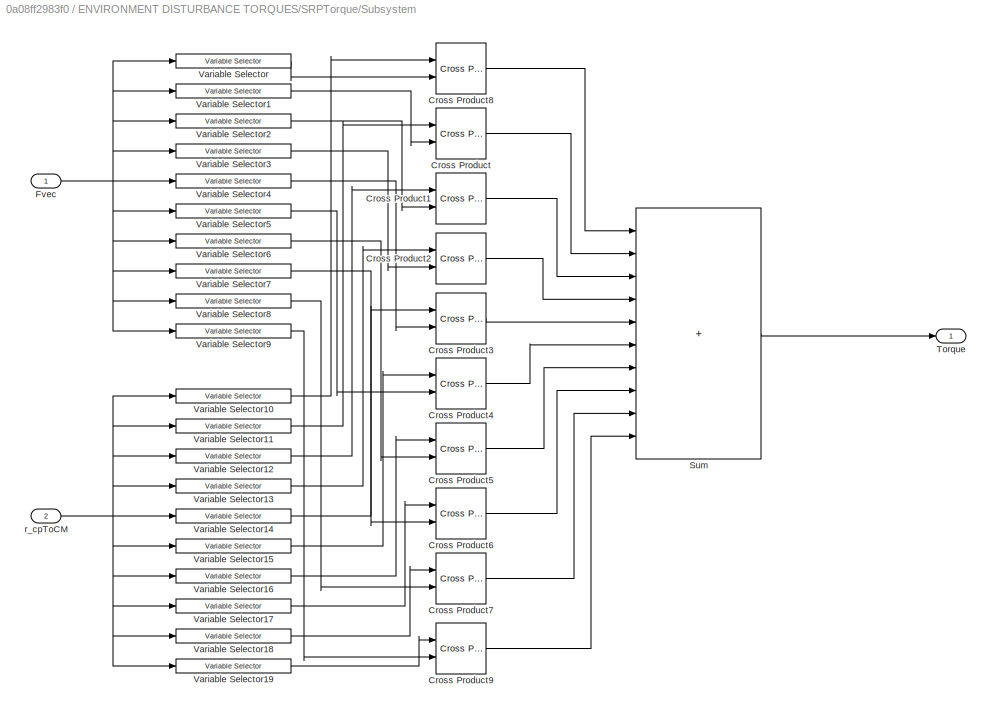
BLOCK [SubSystem] ENVIRONMENT DISTURBANCE TORQUES/SRPTorque/Subsystem
  Ports = [2, 1]
  RequestExecContextInheritance = off
BLOCK [Reference] ENVIRONMENT DISTURBANCE TORQUES/SRPTorque/Subsystem/Cross Product  REF=matrix_library/Cross Product
  Ports = [2, 1]
  SourceBlock = matrix_library/Cross Product
  SourceProductBaseCode = SL
  SourceType = CrossProduct
BLOCK [Reference] ENVIRONMENT DISTURBANCE TORQUES/SRPTorque/Subsystem/Cross Product1  REF=matrix_library/Cross Product
  Ports = [2, 1]
  SourceBlock = matrix_library/Cross Product
  SourceProductBaseCode = SL
  SourceType = CrossProduct
BLOCK [Reference] ENVIRONMENT DISTURBANCE TORQUES/SRPTorque/Subsystem/Cross Product2  REF=matrix_library/Cross Product
  Ports = [2, 1]
  SourceBlock = matrix_library/Cross Product
  SourceProductBaseCode = SL
  SourceType = CrossProduct
BLOCK [Reference] ENVIRONMENT DISTURBANCE TORQUES/SRPTorque/Subsystem/Cross Product3  REF=matrix_library/Cross Product
  Ports = [2, 1]
  SourceBlock = matrix_library/Cross Product
  SourceProductBaseCode = SL
  SourceType = CrossProduct
BLOCK [Reference] ENVIRONMENT DISTURBANCE TORQUES/SRPTorque/Subsystem/Cross Product4  REF=matrix_library/Cross Product
  Ports = [2, 1]
  SourceBlock = matrix_library/Cross Product
  SourceProductBaseCode = SL
  SourceType = CrossProduct
BLOCK [Reference] ENVIRONMENT DISTURBANCE TORQUES/SRPTorque/Subsystem/Cross Product5  REF=matrix_library/Cross Product
  Ports = [2, 1]
  SourceBlock = matrix_library/Cross Product
  SourceProductBaseCode = SL
  SourceType = CrossProduct
BLOCK [Reference] ENVIRONMENT DISTURBANCE TORQUES/SRPTorque/Subsystem/Cross Product6  REF=matrix_library/Cross Product
  Ports = [2, 1]
  SourceBlock = matrix_library/Cross Product
  SourceProductBaseCode = SL
  SourceType = CrossProduct
BLOCK [Reference] ENVIRONMENT DISTURBANCE TORQUES/SRPTorque/Subsystem/Cross Product7  REF=matrix_library/Cross Product
  Ports = [2, 1]
  SourceBlock = matrix_library/Cross Product
  SourceProductBaseCode = SL
  SourceType = CrossProduct
BLOCK [Reference] ENVIRONMENT DISTURBANCE TORQUES/SRPTorque/Subsystem/Cross Product8  REF=matrix_library/Cross Product
  Ports = [2, 1]
  SourceBlock = matrix_library/Cross Product
  SourceProductBaseCode = SL
  SourceType = CrossProduct
BLOCK [Reference] ENVIRONMENT DISTURBANCE TORQUES/SRPTorque/Subsystem/Cross Product9  REF=matrix_library/Cross Product
  Ports = [2, 1]
  SourceBlock = matrix_library/Cross Product
  SourceProductBaseCode = SL
  SourceType = CrossProduct
BLOCK [Inport] ENVIRONMENT DISTURBANCE TORQUES/SRPTorque/Subsystem/Fvec
BLOCK [Sum] ENVIRONMENT DISTURBANCE TORQUES/SRPTorque/Subsystem/Sum
  IconShape = rectangular
  Inputs = ++++++++++
  Ports = [10, 1]
BLOCK [Outport] ENVIRONMENT DISTURBANCE TORQUES/SRPTorque/Subsystem/Torque
BLOCK [Reference] ENVIRONMENT DISTURBANCE TORQUES/SRPTorque/Subsystem/Variable Selector  REF=dspindex/Variable
Selector
  Ports = [1, 1]
  SourceBlock = dspindex/Variable\nSelector
  SourceProductBaseCode = DS
  SourceType = Variable Selector
BLOCK [Reference] ENVIRONMENT DISTURBANCE TORQUES/SRPTorque/Subsystem/Variable Selector1  REF=dspindex/Variable
Selector
  Ports = [1, 1]
  SourceBlock = dspindex/Variable\nSelector
  SourceProductBaseCode = DS
  SourceType = Variable Selector
BLOCK [Reference] ENVIRONMENT DISTURBANCE TORQUES/SRPTorque/Subsystem/Variable Selector10  REF=dspindex/Variable
Selector
  Ports = [1, 1]
  SourceBlock = dspindex/Variable\nSelector
  SourceProductBaseCode = DS
  SourceType = Variable Selector
BLOCK [Reference] ENVIRONMENT DISTURBANCE TORQUES/SRPTorque/Subsystem/Variable Selector11  REF=dspindex/Variable
Selector
  Ports = [1, 1]
  SourceBlock = dspindex/Variable\nSelector
  SourceProductBaseCode = DS
  SourceType = Variable Selector
BLOCK [Reference] ENVIRONMENT DISTURBANCE TORQUES/SRPTorque/Subsystem/Variable Selector12  REF=dspindex/Variable
Selector
  Ports = [1, 1]
  SourceBlock = dspindex/Variable\nSelector
  SourceProductBaseCode = DS
  SourceType = Variable Selector
BLOCK [Reference] ENVIRONMENT DISTURBANCE TORQUES/SRPTorque/Subsystem/Variable Selector13  REF=dspindex/Variable
Selector
  Ports = [1, 1]
  SourceBlock = dspindex/Variable\nSelector
  SourceProductBaseCode = DS
  SourceType = Variable Selector
BLOCK [Reference] ENVIRONMENT DISTURBANCE TORQUES/SRPTorque/Subsystem/Variable Selector14  REF=dspindex/Variable
Selector
  Ports = [1, 1]
  SourceBlock = dspindex/Variable\nSelector
  SourceProductBaseCode = DS
  SourceType = Variable Selector
BLOCK [Reference] ENVIRONMENT DISTURBANCE TORQUES/SRPTorque/Subsystem/Variable Selector15  REF=dspindex/Variable
Selector
  Ports = [1, 1]
  SourceBlock = dspindex/Variable\nSelector
  SourceProductBaseCode = DS
  SourceType = Variable Selector
BLOCK [Reference] ENVIRONMENT DISTURBANCE TORQUES/SRPTorque/Subsystem/Variable Selector16  REF=dspindex/Variable
Selector
  Ports = [1, 1]
  SourceBlock = dspindex/Variable\nSelector
  SourceProductBaseCode = DS
  SourceType = Variable Selector
BLOCK [Reference] ENVIRONMENT DISTURBANCE TORQUES/SRPTorque/Subsystem/Variable Selector17  REF=dspindex/Variable
Selector
  Ports = [1, 1]
  SourceBlock = dspindex/Variable\nSelector
  SourceProductBaseCode = DS
  SourceType = Variable Selector
BLOCK [Reference] ENVIRONMENT DISTURBANCE TORQUES/SRPTorque/Subsystem/Variable Selector18  REF=dspindex/Variable
Selector
  Ports = [1, 1]
  SourceBlock = dspindex/Variable\nSelector
  SourceProductBaseCode = DS
  SourceType = Variable Selector
BLOCK [Reference] ENVIRONMENT DISTURBANCE TORQUES/SRPTorque/Subsystem/Variable Selector19  REF=dspindex/Variable
Selector
  Ports = [1, 1]
  SourceBlock = dspindex/Variable\nSelector
  SourceProductBaseCode = DS
  SourceType = Variable Selector
BLOCK [Reference] ENVIRONMENT DISTURBANCE TORQUES/SRPTorque/Subsystem/Variable Selector2  REF=dspindex/Variable
Selector
  Ports = [1, 1]
  SourceBlock = dspindex/Variable\nSelector
  SourceProductBaseCode = DS
  SourceType = Variable Selector
BLOCK [Reference] ENVIRONMENT DISTURBANCE TORQUES/SRPTorque/Subsystem/Variable Selector3  REF=dspindex/Variable
Selector
  Ports = [1, 1]
  SourceBlock = dspindex/Variable\nSelector
  SourceProductBaseCode = DS
  SourceType = Variable Selector
BLOCK [Reference] ENVIRONMENT DISTURBANCE TORQUES/SRPTorque/Subsystem/Variable Selector4  REF=dspindex/Variable
Selector
  Ports = [1, 1]
  SourceBlock = dspindex/Variable\nSelector
  SourceProductBaseCode = DS
  SourceType = Variable Selector
BLOCK [Reference] ENVIRONMENT DISTURBANCE TORQUES/SRPTorque/Subsystem/Variable Selector5  REF=dspindex/Variable
Selector
  Ports = [1, 1]
  SourceBlock = dspindex/Variable\nSelector
  SourceProductBaseCode = DS
  SourceType = Variable Selector
BLOCK [Reference] ENVIRONMENT DISTURBANCE TORQUES/SRPTorque/Subsystem/Variable Selector6  REF=dspindex/Variable
Selector
  Ports = [1, 1]
  SourceBlock = dspindex/Variable\nSelector
  SourceProductBaseCode = DS
  SourceType = Variable Selector
BLOCK [Reference] ENVIRONMENT DISTURBANCE TORQUES/SRPTorque/Subsystem/Variable Selector7  REF=dspindex/Variable
Selector
  Ports = [1, 1]
  SourceBlock = dspindex/Variable\nSelector
  SourceProductBaseCode = DS
  SourceType = Variable Selector
BLOCK [Reference] ENVIRONMENT DISTURBANCE TORQUES/SRPTorque/Subsystem/Variable Selector8  REF=dspindex/Variable
Selector
  Ports = [1, 1]
  SourceBlock = dspindex/Variable\nSelector
  SourceProductBaseCode = DS
  SourceType = Variable Selector
BLOCK [Reference] ENVIRONMENT DISTURBANCE TORQUES/SRPTorque/Subsystem/Variable Selector9  REF=dspindex/Variable
Selector
  Ports = [1, 1]
  SourceBlock = dspindex/Variable\nSelector
  SourceProductBaseCode = DS
  SourceType = Variable Selector
BLOCK [Inport] ENVIRONMENT DISTURBANCE TORQUES/SRPTorque/Subsystem/r_cpToCM
  Port = 2
BLOCK [Switch] ENVIRONMENT DISTURBANCE TORQUES/SRPTorque/Switch
  Criteria = u2 > Threshold
  InputSameDT = off
  SaturateOnIntegerOverflow = off
BLOCK [Inport] ENVIRONMENT DISTURBANCE TORQUES/SRPTorque/SwitchEclipse
BLOCK [Inport] ENVIRONMENT DISTURBANCE TORQUES/SRPTorque/sb
  Port = 2
BLOCK [SubSystem] ENVIRONMENT DISTURBANCE TORQUES/Subsystem
  Ports = [2, 1]
  RequestExecContextInheritance = off
BLOCK [Trigonometry] ENVIRONMENT DISTURBANCE TORQUES/Subsystem/Acos
  Operator = acos
  Ports = [1, 1]
BLOCK [Trigonometry] ENVIRONMENT DISTURBANCE TORQUES/Subsystem/Acos1
  Operator = acos
  Ports = [1, 1]
BLOCK [Product] ENVIRONMENT DISTURBANCE TORQUES/Subsystem/Divide
  Inputs = */
  Ports = [2, 1]
BLOCK [Product] ENVIRONMENT DISTURBANCE TORQUES/Subsystem/Divide1
  Inputs = */
  Ports = [2, 1]
BLOCK [Product] ENVIRONMENT DISTURBANCE TORQUES/Subsystem/Divide2
  Inputs = */
  Ports = [2, 1]
BLOCK [DotProduct] ENVIRONMENT DISTURBANCE TORQUES/Subsystem/Dot Product
  OutDataTypeStr = Inherit: Inherit via internal rule
BLOCK [Constant] ENVIRONMENT DISTURBANCE TORQUES/Subsystem/Earth_radius
  Value = 6371*1e3
BLOCK [RelationalOperator] ENVIRONMENT DISTURBANCE TORQUES/Subsystem/GreaterThan
  InputSameDT = off
  Operator = >
  OutDataTypeStr = boolean
  Ports = [2, 1]
  RndMeth = Simplest
BLOCK [Product] ENVIRONMENT DISTURBANCE TORQUES/Subsystem/Product
  Ports = [2, 1]
BLOCK [Sqrt] ENVIRONMENT DISTURBANCE TORQUES/Subsystem/Sqrt
BLOCK [Sqrt] ENVIRONMENT DISTURBANCE TORQUES/Subsystem/Sqrt1
BLOCK [Math] ENVIRONMENT DISTURBANCE TORQUES/Subsystem/Square
  Operator = square
  Ports = [1, 1]
BLOCK [Math] ENVIRONMENT DISTURBANCE TORQUES/Subsystem/Square1
  Operator = square
  Ports = [1, 1]
BLOCK [Sum] ENVIRONMENT DISTURBANCE TORQUES/Subsystem/Sum
  IconShape = rectangular
  Ports = [2, 1]
BLOCK [Sum] ENVIRONMENT DISTURBANCE TORQUES/Subsystem/Sum of Elements
  IconShape = rectangular
  Inputs = +
  Ports = [1, 1]
BLOCK [Sum] ENVIRONMENT DISTURBANCE TORQUES/Subsystem/Sum of Elements1
  IconShape = rectangular
  Inputs = +
  Ports = [1, 1]
BLOCK [Outport] ENVIRONMENT DISTURBANCE TORQUES/Subsystem/flag_eclipse
BLOCK [Inport] ENVIRONMENT DISTURBANCE TORQUES/Subsystem/rn
BLOCK [Inport] ENVIRONMENT DISTURBANCE TORQUES/Subsystem/rs
  Port = 2
BLOCK [Sum] ENVIRONMENT DISTURBANCE TORQUES/Sum
  IconShape = rectangular
  Inputs = +++
  Ports = [3, 1]
BLOCK [SubSystem] ENVIRONMENT DISTURBANCE TORQUES/SunPositionRespectN
  Ports = [0, 1]
  RequestExecContextInheritance = off
BLOCK [Clock] ENVIRONMENT DISTURBANCE TORQUES/SunPositionRespectN/Clock
BLOCK [SubSystem] ENVIRONMENT DISTURBANCE TORQUES/SunPositionRespectN/MATLAB Function
  ErrorFcn = Stateflow.Translate.translate
  PermitHierarchicalResolution = ExplicitOnly
  Ports = [4, 1]
  RequestExecContextInheritance = off
  SFBlockType = MATLAB Function
  TreatAsAtomicUnit = on
BLOCK [Demux] ENVIRONMENT DISTURBANCE TORQUES/SunPositionRespectN/MATLAB Function/ Demux 
  Outputs = 1
  Ports = [1, 1]
BLOCK [S-Function] ENVIRONMENT DISTURBANCE TORQUES/SunPositionRespectN/MATLAB Function/ SFunction 
  EnableBusSupport = on
  FunctionName = sf_sfun
  PortCounts = [4 2]
  Ports = [4, 2]
  SFcnIsStateOwnerBlock = off
  SFunctionDeploymentMode = off
  Tag = Stateflow S-Function 44
BLOCK [Terminator] ENVIRONMENT DISTURBANCE TORQUES/SunPositionRespectN/MATLAB Function/ Terminator 
BLOCK [Inport] ENVIRONMENT DISTURBANCE TORQUES/SunPositionRespectN/MATLAB Function/Rs
  Port = 3
BLOCK [Inport] ENVIRONMENT DISTURBANCE TORQUES/SunPositionRespectN/MATLAB Function/eps
BLOCK [Inport] ENVIRONMENT DISTURBANCE TORQUES/SunPositionRespectN/MATLAB Function/n_sun
  Port = 2
BLOCK [Outport] ENVIRONMENT DISTURBANCE TORQUES/SunPositionRespectN/MATLAB Function/sn
BLOCK [Inport] ENVIRONMENT DISTURBANCE TORQUES/SunPositionRespectN/MATLAB Function/time
  Port = 4
BLOCK [Constant] ENVIRONMENT DISTURBANCE TORQUES/SunPositionRespectN/Rs
  Value = 148390000
BLOCK [Constant] ENVIRONMENT DISTURBANCE TORQUES/SunPositionRespectN/eps
  Value = 23.45
BLOCK [Constant] ENVIRONMENT DISTURBANCE TORQUES/SunPositionRespectN/n_sun
  Value = 2*pi/31536000
BLOCK [Outport] ENVIRONMENT DISTURBANCE TORQUES/SunPositionRespectN/sn
BLOCK [ToWorkspace] ENVIRONMENT DISTURBANCE TORQUES/To Workspace
  FixptAsFi = on
  MaxDataPoints = inf
  Ports = [1]
  SampleTime = -1
  SaveFormat = Timeseries
  VariableName = simout6
BLOCK [SubSystem] KINEMATICS
  NameLocation = top
  Ports = [1, 1]
  RequestExecContextInheritance = off
BLOCK [SubSystem] KINEMATICS/312 Euler Angles
  Ports = [3, 1]
  RequestExecContextInheritance = off
BLOCK [SubSystem] KINEMATICS/312 Euler Angles/Create DCM_BN_312 Matrix
  ErrorFcn = Stateflow.Translate.translate
  PermitHierarchicalResolution = ExplicitOnly
  Ports = [1, 1]
  RequestExecContextInheritance = off
  SFBlockType = MATLAB Function
  TreatAsAtomicUnit = on
BLOCK [Demux] KINEMATICS/312 Euler Angles/Create DCM_BN_312 Matrix/ Demux 
  Outputs = 1
  Ports = [1, 1]
BLOCK [S-Function] KINEMATICS/312 Euler Angles/Create DCM_BN_312 Matrix/ SFunction 
  EnableBusSupport = on
  FunctionName = sf_sfun
  PortCounts = [1 2]
  Ports = [1, 2]
  SFcnIsStateOwnerBlock = off
  SFunctionDeploymentMode = off
  Tag = Stateflow S-Function 46
BLOCK [Terminator] KINEMATICS/312 Euler Angles/Create DCM_BN_312 Matrix/ Terminator 
BLOCK [Outport] KINEMATICS/312 Euler Angles/Create DCM_BN_312 Matrix/DCM_BN_312
BLOCK [Inport] KINEMATICS/312 Euler Angles/Create DCM_BN_312 Matrix/EA_BN_312
BLOCK [Outport] KINEMATICS/312 Euler Angles/DCM_BN_312
BLOCK [SubSystem] KINEMATICS/312 Euler Angles/Differential Equations 312
  Ports = [2, 1]
  RequestExecContextInheritance = off
BLOCK [Trigonometry] KINEMATICS/312 Euler Angles/Differential Equations 312/Cos
  Operator = cos
  Ports = [1, 1]
BLOCK [Demux] KINEMATICS/312 Euler Angles/Differential Equations 312/Demux1
  Outputs = 3
  Ports = [1, 3]
BLOCK [Demux] KINEMATICS/312 Euler Angles/Differential Equations 312/Demux2
  Outputs = 3
  Ports = [1, 3]
BLOCK [Demux] KINEMATICS/312 Euler Angles/Differential Equations 312/Demux3
  Outputs = 3
  Ports = [1, 3]
BLOCK [Product] KINEMATICS/312 Euler Angles/Differential Equations 312/Divide
  Inputs = /*
  Ports = [2, 1]
BLOCK [Product] KINEMATICS/312 Euler Angles/Differential Equations 312/Divide1
  Inputs = /*
  Ports = [2, 1]
BLOCK [Inport] KINEMATICS/312 Euler Angles/Differential Equations 312/EA_BN_312
  Port = 2
BLOCK [Outport] KINEMATICS/312 Euler Angles/Differential Equations 312/EA_BN_312_der
BLOCK [Mux] KINEMATICS/312 Euler Angles/Differential Equations 312/Mux
  DisplayOption = bar
  Inputs = 3
  Ports = [3, 1]
BLOCK [Product] KINEMATICS/312 Euler Angles/Differential Equations 312/Product
  Ports = [2, 1]
BLOCK [Product] KINEMATICS/312 Euler Angles/Differential Equations 312/Product1
  Ports = [2, 1]
BLOCK [Product] KINEMATICS/312 Euler Angles/Differential Equations 312/Product2
  Ports = [2, 1]
BLOCK [Product] KINEMATICS/312 Euler Angles/Differential Equations 312/Product3
  Ports = [2, 1]
BLOCK [Product] KINEMATICS/312 Euler Angles/Differential Equations 312/Product4
  Ports = [2, 1]
BLOCK [Reshape] KINEMATICS/312 Euler Angles/Differential Equations 312/Reshape
  OutputDimensionality = Column vector (2-D)
  Ports = [1, 1]
BLOCK [Trigonometry] KINEMATICS/312 Euler Angles/Differential Equations 312/Sin
  Ports = [1, 1]
BLOCK [Sum] KINEMATICS/312 Euler Angles/Differential Equations 312/Sum
  IconShape = rectangular
  Inputs = +-
  Ports = [2, 1]
BLOCK [Sum] KINEMATICS/312 Euler Angles/Differential Equations 312/Sum1
  IconShape = rectangular
  Ports = [2, 1]
BLOCK [Sum] KINEMATICS/312 Euler Angles/Differential Equations 312/Sum2
  IconShape = rectangular
  Inputs = -+
  Ports = [2, 1]
BLOCK [Sum] KINEMATICS/312 Euler Angles/Differential Equations 312/Sum3
  IconShape = rectangular
  Inputs = +-
  Ports = [2, 1]
BLOCK [Terminator] KINEMATICS/312 Euler Angles/Differential Equations 312/Terminator
BLOCK [Terminator] KINEMATICS/312 Euler Angles/Differential Equations 312/Terminator1
BLOCK [Inport] KINEMATICS/312 Euler Angles/Differential Equations 312/wB
BLOCK [Inport] KINEMATICS/312 Euler Angles/IC_312
BLOCK [Integrator] KINEMATICS/312 Euler Angles/Integrator
  ExternalReset = rising
  InitialCondition = [phi_0; theta_0; psi_0]
  InitialConditionSource = external
  Ports = [3, 1]
  WrapState = on
BLOCK [Inport] KINEMATICS/312 Euler Angles/flag
  Port = 2
BLOCK [Inport] KINEMATICS/312 Euler Angles/wB
  Port = 3
BLOCK [SubSystem] KINEMATICS/313 Euler Angles
  Ports = [3, 1]
  RequestExecContextInheritance = off
BLOCK [SubSystem] KINEMATICS/313 Euler Angles/Create DCM_BN_313 Matrix
  ErrorFcn = Stateflow.Translate.translate
  PermitHierarchicalResolution = ExplicitOnly
  Ports = [1, 1]
  RequestExecContextInheritance = off
  SFBlockType = MATLAB Function
  TreatAsAtomicUnit = on
BLOCK [Demux] KINEMATICS/313 Euler Angles/Create DCM_BN_313 Matrix/ Demux 
  Outputs = 1
  Ports = [1, 1]
BLOCK [S-Function] KINEMATICS/313 Euler Angles/Create DCM_BN_313 Matrix/ SFunction 
  EnableBusSupport = on
  FunctionName = sf_sfun
  PortCounts = [1 2]
  Ports = [1, 2]
  SFcnIsStateOwnerBlock = off
  SFunctionDeploymentMode = off
  Tag = Stateflow S-Function 47
BLOCK [Terminator] KINEMATICS/313 Euler Angles/Create DCM_BN_313 Matrix/ Terminator 
BLOCK [Outport] KINEMATICS/313 Euler Angles/Create DCM_BN_313 Matrix/DCM_BN_313
BLOCK [Inport] KINEMATICS/313 Euler Angles/Create DCM_BN_313 Matrix/EA_BN_313
BLOCK [Outport] KINEMATICS/313 Euler Angles/DCM_BN_313
BLOCK [SubSystem] KINEMATICS/313 Euler Angles/Differential Equations 313
  Ports = [2, 1]
  RequestExecContextInheritance = off
BLOCK [Trigonometry] KINEMATICS/313 Euler Angles/Differential Equations 313/Cos
  Operator = cos
  Ports = [1, 1]
BLOCK [Demux] KINEMATICS/313 Euler Angles/Differential Equations 313/Demux1
  Outputs = 3
  Ports = [1, 3]
BLOCK [Demux] KINEMATICS/313 Euler Angles/Differential Equations 313/Demux2
  Outputs = 3
  Ports = [1, 3]
BLOCK [Demux] KINEMATICS/313 Euler Angles/Differential Equations 313/Demux3
  Outputs = 3
  Ports = [1, 3]
BLOCK [Product] KINEMATICS/313 Euler Angles/Differential Equations 313/Divide 1
  Inputs = */
  Ports = [2, 1]
BLOCK [Product] KINEMATICS/313 Euler Angles/Differential Equations 313/Divide 2
  Inputs = */
  Ports = [2, 1]
BLOCK [Inport] KINEMATICS/313 Euler Angles/Differential Equations 313/EA_BN_313
  Port = 2
BLOCK [Outport] KINEMATICS/313 Euler Angles/Differential Equations 313/EA_BN_313_der
BLOCK [Mux] KINEMATICS/313 Euler Angles/Differential Equations 313/Mux
  DisplayOption = bar
  Inputs = 3
  Ports = [3, 1]
BLOCK [Product] KINEMATICS/313 Euler Angles/Differential Equations 313/Product1
  Ports = [2, 1]
BLOCK [Product] KINEMATICS/313 Euler Angles/Differential Equations 313/Product2
  Ports = [2, 1]
BLOCK [Product] KINEMATICS/313 Euler Angles/Differential Equations 313/Product3
  Ports = [2, 1]
BLOCK [Product] KINEMATICS/313 Euler Angles/Differential Equations 313/Product4
  Ports = [2, 1]
BLOCK [Reshape] KINEMATICS/313 Euler Angles/Differential Equations 313/Reshape
  OutputDimensionality = Column vector (2-D)
  Ports = [1, 1]
BLOCK [Trigonometry] KINEMATICS/313 Euler Angles/Differential Equations 313/Sin
  Ports = [1, 1]
BLOCK [Sum] KINEMATICS/313 Euler Angles/Differential Equations 313/Sum
  IconShape = rectangular
  Ports = [2, 1]
BLOCK [Sum] KINEMATICS/313 Euler Angles/Differential Equations 313/Sum1
  IconShape = rectangular
  Inputs = +-
  Ports = [2, 1]
BLOCK [Sum] KINEMATICS/313 Euler Angles/Differential Equations 313/Sum3
  IconShape = rectangular
  Inputs = +-
  Ports = [2, 1]
BLOCK [Terminator] KINEMATICS/313 Euler Angles/Differential Equations 313/Terminator
BLOCK [Terminator] KINEMATICS/313 Euler Angles/Differential Equations 313/Terminator1
BLOCK [Product] KINEMATICS/313 Euler Angles/Differential Equations 313/t
  Ports = [2, 1]
BLOCK [Inport] KINEMATICS/313 Euler Angles/Differential Equations 313/wB
BLOCK [Inport] KINEMATICS/313 Euler Angles/IC_313
  Port = 3
BLOCK [Integrator] KINEMATICS/313 Euler Angles/Integrator
  ExternalReset = falling
  InitialCondition = [phi_0; theta_0; psi_0]
  InitialConditionSource = external
  Ports = [3, 1]
  WrapState = on
BLOCK [Inport] KINEMATICS/313 Euler Angles/flag
  Port = 2
BLOCK [Inport] KINEMATICS/313 Euler Angles/wB
BLOCK [Constant] KINEMATICS/Constant
  Value = [phi0;theta0;psi0]
BLOCK [Outport] KINEMATICS/DCM_BN
BLOCK [Delay] KINEMATICS/Delay One Step
  DelayLength = 1
  InitialConditionSource = Input port
  InputPortMap = u0,p4
  NameLocation = right
  Ports = [2, 1]
BLOCK [Delay] KINEMATICS/Delay One Step1
  DelayLength = 1
  InitialConditionSource = Input port
  InputPortMap = u0,p4
  NameLocation = left
  Ports = [2, 1]
BLOCK [SubSystem] KINEMATICS/Factotum Switch
  ErrorFcn = Stateflow.Translate.translate
  PermitHierarchicalResolution = ExplicitOnly
  Ports = [2, 3]
  RequestExecContextInheritance = off
  SFBlockType = MATLAB Function
  TreatAsAtomicUnit = on
BLOCK [Demux] KINEMATICS/Factotum Switch/ Demux 
  Outputs = 1
  Ports = [1, 1]
BLOCK [S-Function] KINEMATICS/Factotum Switch/ SFunction 
  EnableBusSupport = on
  FunctionName = sf_sfun
  PortCounts = [2 4]
  Ports = [2, 4]
  SFcnIsStateOwnerBlock = off
  SFunctionDeploymentMode = off
  Tag = Stateflow S-Function 48
BLOCK [Terminator] KINEMATICS/Factotum Switch/ Terminator 
BLOCK [Inport] KINEMATICS/Factotum Switch/DCM_BN
BLOCK [Outport] KINEMATICS/Factotum Switch/IC_312
BLOCK [Outport] KINEMATICS/Factotum Switch/IC_313
  Port = 3
BLOCK [Inport] KINEMATICS/Factotum Switch/flagIn
  Port = 2
BLOCK [Outport] KINEMATICS/Factotum Switch/flagOut
  Port = 2
BLOCK [SubSystem] KINEMATICS/FinalConditions
  Ports = [1]
  RequestExecContextInheritance = off
BLOCK [Inport] KINEMATICS/FinalConditions/DCM
BLOCK [Display] KINEMATICS/FinalConditions/Display
  Decimation = 1
  Ports = [1]
BLOCK [SubSystem] KINEMATICS/FinalConditions/MATLAB Function
  ErrorFcn = Stateflow.Translate.translate
  PermitHierarchicalResolution = ExplicitOnly
  Ports = [1, 1]
  RequestExecContextInheritance = off
  SFBlockType = MATLAB Function
  TreatAsAtomicUnit = on
BLOCK [Demux] KINEMATICS/FinalConditions/MATLAB Function/ Demux 
  Outputs = 1
  Ports = [1, 1]
BLOCK [S-Function] KINEMATICS/FinalConditions/MATLAB Function/ SFunction 
  EnableBusSupport = on
  FunctionName = sf_sfun
  PortCounts = [1 2]
  Ports = [1, 2]
  SFcnIsStateOwnerBlock = off
  SFunctionDeploymentMode = off
  Tag = Stateflow S-Function 50
BLOCK [Terminator] KINEMATICS/FinalConditions/MATLAB Function/ Terminator 
BLOCK [Inport] KINEMATICS/FinalConditions/MATLAB Function/A0
BLOCK [Outport] KINEMATICS/FinalConditions/MATLAB Function/Ang0
BLOCK [ToWorkspace] KINEMATICS/FinalConditions/To Workspace
  FixptAsFi = on
  MaxDataPoints = inf
  Ports = [1]
  SampleTime = -1
  SaveFormat = Timeseries
  VariableName = simout5
BLOCK [SubSystem] KINEMATICS/Initial condition
  ErrorFcn = Stateflow.Translate.translate
  PermitHierarchicalResolution = ExplicitOnly
  Ports = [1, 2]
  RequestExecContextInheritance = off
  SFBlockType = MATLAB Function
  TreatAsAtomicUnit = on
BLOCK [Demux] KINEMATICS/Initial condition/ Demux 
  Outputs = 1
  Ports = [1, 1]
BLOCK [S-Function] KINEMATICS/Initial condition/ SFunction 
  EnableBusSupport = on
  FunctionName = sf_sfun
  PortCounts = [1 3]
  Ports = [1, 3]
  SFcnIsStateOwnerBlock = off
  SFunctionDeploymentMode = off
  Tag = Stateflow S-Function 49
BLOCK [Terminator] KINEMATICS/Initial condition/ Terminator 
BLOCK [Outport] KINEMATICS/Initial condition/DCM_BN_0
BLOCK [Inport] KINEMATICS/Initial condition/EA_BN_0
BLOCK [Outport] KINEMATICS/Initial condition/flagIn_0
  Port = 2
BLOCK [Switch] KINEMATICS/Switch
  Criteria = u2 ~= 0
  InputSameDT = off
  SaturateOnIntegerOverflow = off
BLOCK [Inport] KINEMATICS/wB
BLOCK [SubSystem] SENSORS
  NameLocation = top
  PortSchema = {"entries":[{"content":{"sides":[{"content":{"connectorIds":["In1"]},"type":"ConnectorPlacement.EquallySpacedRectSide","uuid":"b510f6ef-f21e-411c-8ea4-8a9ce0e96801"},{"content":{"connectorIds":["Out1","Out2","Out3"],"side":"RIGHT"},"type":"ConnectorPlacement.EquallySpacedRectSide","uuid":"2c17a393-d83e-490b-b8d9-3edd4b192ceb"},{"content":{"connectorIds":[],"side":"TOP"},"type":"ConnectorPlacement....<+403ch>
  Ports = [2, 3]
  RequestExecContextInheritance = off
BLOCK [Inport] SENSORS/DCM_BN
BLOCK [Outport] SENSORS/FlagStars
  Port = 2
BLOCK [SubSystem] SENSORS/Gyro
  Ports = [1, 1]
  RequestExecContextInheritance = off
BLOCK [SubSystem] SENSORS/Gyro/ARW
  Ports = [0, 1]
  RequestExecContextInheritance = off
BLOCK [Mux] SENSORS/Gyro/ARW/Mux
  DisplayOption = bar
  Inputs = 3
  Ports = [3, 1]
BLOCK [Outport] SENSORS/Gyro/ARW/Out1
BLOCK [RandomNumber] SENSORS/Gyro/ARW/Random Number
  SampleTime = 1/fgyro
  Seed = 1
  Variance = thetn
BLOCK [RandomNumber] SENSORS/Gyro/ARW/Random Number1
  SampleTime = 1/fgyro
  Variance = thetn
BLOCK [RandomNumber] SENSORS/Gyro/ARW/Random Number2
  SampleTime = 1/fgyro
  Seed = 2
  Variance = thetn
BLOCK [Constant] SENSORS/Gyro/Constant
  Value = Aorthsens
BLOCK [SubSystem] SENSORS/Gyro/Cscalefactor1
  Ports = [1, 1]
  RequestExecContextInheritance = off
BLOCK [Outport] SENSORS/Gyro/Cscalefactor1/C
BLOCK [Constant] SENSORS/Gyro/Cscalefactor1/Constant
  Value = thetsperc
BLOCK [Reference] SENSORS/Gyro/Cscalefactor1/Create Diagonal Matrix  REF=dspmtrx3/Create Diagonal
Matrix
  Ports = [1, 1]
  SourceBlock = dspmtrx3/Create Diagonal\nMatrix
  SourceProductBaseCode = DS
  SourceType = Create Diagonal Matrix
BLOCK [Demux] SENSORS/Gyro/Cscalefactor1/Demux
  Outputs = 3
  Ports = [1, 3]
BLOCK [Reference] SENSORS/Gyro/Cscalefactor1/Identity Matrix  REF=dspmtrx3/Identity Matrix
  Ports = [0, 1]
  SourceBlock = dspmtrx3/Identity Matrix
  SourceProductBaseCode = DS
  SourceType = Identity Matrix
BLOCK [Mux] SENSORS/Gyro/Cscalefactor1/Mux
  DisplayOption = bar
  Inputs = 3
  Ports = [3, 1]
BLOCK [Product] SENSORS/Gyro/Cscalefactor1/Product
  Ports = [2, 1]
BLOCK [Product] SENSORS/Gyro/Cscalefactor1/Product1
  Ports = [2, 1]
BLOCK [Product] SENSORS/Gyro/Cscalefactor1/Product2
  Ports = [2, 1]
BLOCK [Product] SENSORS/Gyro/Cscalefactor1/Product3
  Ports = [2, 1]
BLOCK [RandomNumber] SENSORS/Gyro/Cscalefactor1/Random Number
  SampleTime = 1/fgyro
BLOCK [RandomNumber] SENSORS/Gyro/Cscalefactor1/Random Number1
  SampleTime = 1/fgyro
  Seed = 1
BLOCK [RandomNumber] SENSORS/Gyro/Cscalefactor1/Random Number2
  SampleTime = 1/fgyro
  Seed = 2
BLOCK [Scope] SENSORS/Gyro/Cscalefactor1/Scope
  Floating = off
  NumInputPorts = 1
  Ports = [1]
  ScopeSpecificationString = Simulink.scopes.TimeScopeBlockCfg('CurrentConfiguration', extmgr.ConfigurationSet(extmgr.Configuration('Core','General UI',true),extmgr.Configuration('Core','Source UI',true),extmgr.Configuration('Sources','WiredSimulink',true,'DataLoggingVariableName','ScopeData1'),extmgr.Configuration('Visuals','Time Domain',true,'SerializedDisplays',{struct('MinYLimReal','-0.0000009','MaxYLimReal','0.0000007','...<+1383ch>
BLOCK [Sum] SENSORS/Gyro/Cscalefactor1/Sum
  IconShape = rectangular
  Ports = [2, 1]
BLOCK [Inport] SENSORS/Gyro/Cscalefactor1/w
BLOCK [DiscreteIntegrator] SENSORS/Gyro/Discrete-Time Integrator
  ICPrevOutput = DiscIntNeverNeededParam
  ICPrevScaledInput = DiscIntNeverNeededParam
  InitialCondition = [0;0;0]
  InitialConditionSetting = Auto
  Ports = [1, 1]
  SampleTime = -1
BLOCK [Product] SENSORS/Gyro/Product
  Multiplication = Matrix(*)
  Ports = [2, 1]
BLOCK [Product] SENSORS/Gyro/Product1
  Multiplication = Matrix(*)
  Ports = [2, 1]
BLOCK [SubSystem] SENSORS/Gyro/RRW
  Ports = [0, 1]
  RequestExecContextInheritance = off
BLOCK [Mux] SENSORS/Gyro/RRW/Mux
  DisplayOption = bar
  Inputs = 3
  Ports = [3, 1]
BLOCK [Outport] SENSORS/Gyro/RRW/Out1
BLOCK [RandomNumber] SENSORS/Gyro/RRW/Random Number
  SampleTime = 1/fgyro
  Variance = thetb
BLOCK [RandomNumber] SENSORS/Gyro/RRW/Random Number1
  SampleTime = 1/fgyro
  Seed = 1
  Variance = thetb
BLOCK [RandomNumber] SENSORS/Gyro/RRW/Random Number2
  SampleTime = 1/fgyro
  Seed = 2
  Variance = thetb
BLOCK [Sum] SENSORS/Gyro/Sum
  IconShape = rectangular
  Inputs = +++
  Ports = [3, 1]
BLOCK [Inport] SENSORS/Gyro/w
BLOCK [Outport] SENSORS/Gyro/w_gyro
BLOCK [SubSystem] SENSORS/StarCat
  Ports = [1, 2]
  RequestExecContextInheritance = off
BLOCK [Inport] SENSORS/StarCat/Abn
BLOCK [Constant] SENSORS/StarCat/Constant
  Value = starcat
BLOCK [SubSystem] SENSORS/StarCat/Error
  Ports = [1, 1]
  RequestExecContextInheritance = off
BLOCK [Reference] SENSORS/StarCat/Error/Lowpass Filter  REF=dspfdesign/Lowpass Filter
  Ports = [1, 1]
  SourceBlock = dspfdesign/Lowpass Filter
  SourceProductBaseCode = DS
  SourceType = dsp.LowpassFilter
BLOCK [Reference] SENSORS/StarCat/Error/Lowpass Filter1  REF=dspfdesign/Lowpass Filter
  Ports = [1, 1]
  SourceBlock = dspfdesign/Lowpass Filter
  SourceProductBaseCode = DS
  SourceType = dsp.LowpassFilter
BLOCK [Reference] SENSORS/StarCat/Error/Lowpass Filter2  REF=dspfdesign/Lowpass Filter
  Ports = [1, 1]
  SourceBlock = dspfdesign/Lowpass Filter
  SourceProductBaseCode = DS
  SourceType = dsp.LowpassFilter
BLOCK [SubSystem] SENSORS/StarCat/Error/MATLAB Function
  ErrorFcn = Stateflow.Translate.translate
  PermitHierarchicalResolution = ExplicitOnly
  Ports = [3, 1]
  RequestExecContextInheritance = off
  SFBlockType = MATLAB Function
  TreatAsAtomicUnit = on
BLOCK [Demux] SENSORS/StarCat/Error/MATLAB Function/ Demux 
  Outputs = 1
  Ports = [1, 1]
BLOCK [S-Function] SENSORS/StarCat/Error/MATLAB Function/ SFunction 
  EnableBusSupport = on
  FunctionName = sf_sfun
  PortCounts = [3 2]
  Ports = [3, 2]
  SFcnIsStateOwnerBlock = off
  SFunctionDeploymentMode = off
  Tag = Stateflow S-Function 12
BLOCK [Terminator] SENSORS/StarCat/Error/MATLAB Function/ Terminator 
BLOCK [Outport] SENSORS/StarCat/Error/MATLAB Function/Aeps
BLOCK [Inport] SENSORS/StarCat/Error/MATLAB Function/alphax
BLOCK [Inport] SENSORS/StarCat/Error/MATLAB Function/alphay
  Port = 2
BLOCK [Inport] SENSORS/StarCat/Error/MATLAB Function/alphaz
  Port = 3
BLOCK [SubSystem] SENSORS/StarCat/Error/MATLAB Function1
  ErrorFcn = Stateflow.Translate.translate
  PermitHierarchicalResolution = ExplicitOnly
  Ports = [2, 1]
  RequestExecContextInheritance = off
  SFBlockType = MATLAB Function
  TreatAsAtomicUnit = on
BLOCK [Demux] SENSORS/StarCat/Error/MATLAB Function1/ Demux 
  Outputs = 1
  Ports = [1, 1]
BLOCK [S-Function] SENSORS/StarCat/Error/MATLAB Function1/ SFunction 
  EnableBusSupport = on
  FunctionName = sf_sfun
  PortCounts = [2 2]
  Ports = [2, 2]
  SFcnIsStateOwnerBlock = off
  SFunctionDeploymentMode = off
  Tag = Stateflow S-Function 13
BLOCK [Terminator] SENSORS/StarCat/Error/MATLAB Function1/ Terminator 
BLOCK [Inport] SENSORS/StarCat/Error/MATLAB Function1/Aeps
BLOCK [Inport] SENSORS/StarCat/Error/MATLAB Function1/Sreal
  Port = 2
BLOCK [Outport] SENSORS/StarCat/Error/MATLAB Function1/Ssens
BLOCK [RandomNumber] SENSORS/StarCat/Error/Random Number
  SampleTime = 1/fst
  Variance = alphaxy
BLOCK [RandomNumber] SENSORS/StarCat/Error/Random Number1
  SampleTime = 1/fst
  Seed = 2
  Variance = alphaz
BLOCK [RandomNumber] SENSORS/StarCat/Error/Random Number2
  SampleTime = 1/fst
  Seed = 1
  Variance = alphaxy
BLOCK [Scope] SENSORS/StarCat/Error/Scope
  Floating = off
  NumInputPorts = 1
  Ports = [1]
  ScopeSpecificationString = Simulink.scopes.TimeScopeBlockCfg('CurrentConfiguration', extmgr.ConfigurationSet(extmgr.Configuration('Core','General UI',true),extmgr.Configuration('Core','Source UI',true),extmgr.Configuration('Sources','WiredSimulink',true,'DataLoggingVariableName','ScopeData1'),extmgr.Configuration('Visuals','Time Domain',true,'SerializedDisplays',{struct('MinYLimReal','-0.12563','MaxYLimReal','1.12507','YLab...<+1759ch>
BLOCK [Scope] SENSORS/StarCat/Error/Scope1
  Floating = off
  NumInputPorts = 1
  Ports = [1]
  ScopeSpecificationString = Simulink.scopes.TimeScopeBlockCfg('CurrentConfiguration', extmgr.ConfigurationSet(extmgr.Configuration('Core','General UI',true),extmgr.Configuration('Core','Source UI',true),extmgr.Configuration('Sources','WiredSimulink',true,'DataLoggingVariableName','ScopeData1'),extmgr.Configuration('Visuals','Time Domain',true,'SerializedDisplays',{struct('MinYLimReal','-0.00069','MaxYLimReal','0.00069','YLab...<+1374ch>
BLOCK [Inport] SENSORS/StarCat/Error/Sreal
BLOCK [Outport] SENSORS/StarCat/Error/Ssens
BLOCK [Outport] SENSORS/StarCat/FlagStars
  NameLocation = top
  Port = 2
BLOCK [SubSystem] SENSORS/StarCat/MATLAB Function
  ErrorFcn = Stateflow.Translate.translate
  PermitHierarchicalResolution = ExplicitOnly
  Ports = [2, 2]
  RequestExecContextInheritance = off
  SFBlockType = MATLAB Function
  TreatAsAtomicUnit = on
BLOCK [Demux] SENSORS/StarCat/MATLAB Function/ Demux 
  Outputs = 1
  Ports = [1, 1]
BLOCK [S-Function] SENSORS/StarCat/MATLAB Function/ SFunction 
  EnableBusSupport = on
  FunctionName = sf_sfun
  PortCounts = [2 3]
  Ports = [2, 3]
  SFcnIsStateOwnerBlock = off
  SFunctionDeploymentMode = off
  Tag = Stateflow S-Function 14
BLOCK [Terminator] SENSORS/StarCat/MATLAB Function/ Terminator 
BLOCK [Inport] SENSORS/StarCat/MATLAB Function/Abn
  Port = 2
BLOCK [Outport] SENSORS/StarCat/MATLAB Function/Vn
BLOCK [Inport] SENSORS/StarCat/MATLAB Function/catrn
BLOCK [Outport] SENSORS/StarCat/MATLAB Function/num
  Port = 2
BLOCK [Product] SENSORS/StarCat/Product
  Multiplication = Matrix(*)
  Ports = [2, 1]
BLOCK [Product] SENSORS/StarCat/Product1
  Multiplication = Matrix(*)
  Ports = [2, 1]
BLOCK [Reference] SENSORS/StarCat/Pseudoinverse  REF=dspinverses/Pseudoinverse
  Ports = [1, 1]
  SourceBlock = dspinverses/Pseudoinverse
  SourceProductBaseCode = DS
  SourceType = Pseudoinverse
BLOCK [Outport] SENSORS/StarCat/StarSensor
BLOCK [SubSystem] SENSORS/StarCat/rPolarisN
  Ports = [1, 1]
  RequestExecContextInheritance = off
BLOCK [Trigonometry] SENSORS/StarCat/rPolarisN/Cos
  Operator = cos
  Ports = [1, 1]
BLOCK [Trigonometry] SENSORS/StarCat/rPolarisN/Cos1
  Operator = cos
  Ports = [1, 1]
BLOCK [Reference] SENSORS/StarCat/rPolarisN/Degrees to Radians  REF=simulink_extras/Transformations/Degrees to
Radians
  Ports = [1, 1]
  SourceBlock = simulink_extras/Transformations/Degrees to\nRadians
  SourceProductBaseCode = SL
  SourceType = DegreesToRadians
BLOCK [Reference] SENSORS/StarCat/rPolarisN/Degrees to Radians1  REF=simulink_extras/Transformations/Degrees to
Radians
  Ports = [1, 1]
  SourceBlock = simulink_extras/Transformations/Degrees to\nRadians
  SourceProductBaseCode = SL
  SourceType = DegreesToRadians
BLOCK [Concatenate] SENSORS/StarCat/rPolarisN/Matrix Concatenate
  ConcatenateDimension = 2
  Mode = Multidimensional array
  NumInputs = 3
  Ports = [3, 1]
BLOCK [Product] SENSORS/StarCat/rPolarisN/Product
  Ports = [2, 1]
BLOCK [Product] SENSORS/StarCat/rPolarisN/Product1
  Ports = [2, 1]
BLOCK [Inport] SENSORS/StarCat/rPolarisN/Ra,Dec
BLOCK [Trigonometry] SENSORS/StarCat/rPolarisN/Sin
  Ports = [1, 1]
BLOCK [Trigonometry] SENSORS/StarCat/rPolarisN/Sin1
  Ports = [1, 1]
BLOCK [Reference] SENSORS/StarCat/rPolarisN/Variable Selector  REF=dspindex/Variable
Selector
  Ports = [1, 1]
  SourceBlock = dspindex/Variable\nSelector
  SourceProductBaseCode = DS
  SourceType = Variable Selector
BLOCK [Reference] SENSORS/StarCat/rPolarisN/Variable Selector1  REF=dspindex/Variable
Selector
  Ports = [1, 1]
  SourceBlock = dspindex/Variable\nSelector
  SourceProductBaseCode = DS
  SourceType = Variable Selector
BLOCK [Outport] SENSORS/StarCat/rPolarisN/rn
BLOCK [Outport] SENSORS/StarSensor
  Port = 3
BLOCK [ToWorkspace] SENSORS/To Workspace
  FixptAsFi = on
  MaxDataPoints = inf
  Ports = [1]
  SampleTime = -1
  SaveFormat = Timeseries
  VariableName = simout
BLOCK [ZeroOrderHold] SENSORS/Zero-Order Hold1
  SampleTime = 1/fst
BLOCK [ZeroOrderHold] SENSORS/Zero-Order Hold2
  SampleTime = 1/fst
BLOCK [Inport] SENSORS/w
  Port = 2
BLOCK [Outport] SENSORS/w_gyro
BLOCK [Sum] Sum
  Inputs = ++|
  Ports = [2, 1]
ANNOTATION (root): ATTITUDE CONTROL
ANNOTATION (root): ATTITUDE DETERMINATION
ANNOTATION (root): MISSION REQUIREMENTS
ANNOTATION (root): MODELLING THE REAL WORLD
ANNOTATION ATTITUDE DETERMINATION ALGORITHMS/Kinematics with update from Star Tracker1/312 Euler Angles: Quando il valore del flag sale da 0 a 1 ricomincia ad integrare dalla condizione iniziale che gli sta arrivando in quel momento
ANNOTATION ATTITUDE DETERMINATION ALGORITHMS/Kinematics with update from Star Tracker1/313 Euler Angles: Quando il valore del flag scende da 1 a 0 ricomincia ad integrare dalla condizione iniziale che gli sta arrivando in quel momento
ANNOTATION CONTROL ALGORITHMS/Tracking: Bisogna gestire k per avere buone performance e non saturare
ANNOTATION CONTROL ALGORITHMS/Tracking: Il terzo addendo con wd,wd' nulli non ha senso comunque
ANNOTATION CONTROL ALGORITHMS/Tracking: WD IS THE DESIRED RESPECT LVLH!
ANNOTATION ENVIRONMENT DISTURBANCE TORQUES/Subsystem: Se theta1+theta2 è maggiore da 1 e non sono in eclisse
ANNOTATION KINEMATICS/312 Euler Angles: Quando il valore del flag sale da 0 a 1 ricomincia ad integrare dalla condizione iniziale che gli sta arrivando in quel momento
ANNOTATION KINEMATICS/313 Euler Angles: Quando il valore del flag scende da 1 a 0 ricomincia ad integrare dalla condizione iniziale che gli sta arrivando in quel momento
LINE ACTUATORS/Constant:1 -> ACTUATORS/Switch:3
NET ACTUATORS/RW/Aconfiguration:1 -> ACTUATORS/RW/Mapping actuator:3, ACTUATORS/RW/RealRW:1
NET ACTUATORS/RW/Mapping actuator/Configuration:1 -> ACTUATORS/RW/Mapping actuator/Product1:1, ACTUATORS/RW/Mapping actuator/Pseudoinverse:1
LINE ACTUATORS/RW/Mapping actuator/Cross Product:1 -> ACTUATORS/RW/Mapping actuator/Sum:2
LINE ACTUATORS/RW/Mapping actuator/Discrete-Time Integrator:1 -> ACTUATORS/RW/Mapping actuator/Product1:2
LINE ACTUATORS/RW/Mapping actuator/Gain:1 -> ACTUATORS/RW/Mapping actuator/Product:1
LINE ACTUATORS/RW/Mapping actuator/Product1:1 -> ACTUATORS/RW/Mapping actuator/Cross Product:2
NET ACTUATORS/RW/Mapping actuator/Product:1 -> ACTUATORS/RW/Mapping actuator/Discrete-Time Integrator:1, ACTUATORS/RW/Mapping actuator/ElectricMotor:1
LINE ACTUATORS/RW/Mapping actuator/Pseudoinverse:1 -> ACTUATORS/RW/Mapping actuator/Gain:1
LINE ACTUATORS/RW/Mapping actuator/Sum:1 -> ACTUATORS/RW/Mapping actuator/Product:2
LINE ACTUATORS/RW/Mapping actuator/Uideal:1 -> ACTUATORS/RW/Mapping actuator/Sum:1
LINE ACTUATORS/RW/Mapping actuator/w_gyro:1 -> ACTUATORS/RW/Mapping actuator/Cross Product:1
LINE ACTUATORS/RW/Mapping actuator:1 -> ACTUATORS/RW/RealRW:3
NET ACTUATORS/RW/RealRW/Configuration:1 -> ACTUATORS/RW/RealRW/Product1:1, ACTUATORS/RW/RealRW/Product:1
LINE ACTUATORS/RW/RealRW/Cross Product:1 -> ACTUATORS/RW/RealRW/Sum:2
LINE ACTUATORS/RW/RealRW/Desat/Abs1:1 -> ACTUATORS/RW/RealRW/Desat/Max:1
LINE ACTUATORS/RW/RealRW/Desat/Abs:1 -> ACTUATORS/RW/RealRW/Desat/GreaterThan:1
LINE ACTUATORS/RW/RealRW/Desat/Constant1:1 -> ACTUATORS/RW/RealRW/Desat/Product2:2
LINE ACTUATORS/RW/RealRW/Desat/Constant:1 -> ACTUATORS/RW/RealRW/Desat/GreaterThan:2
LINE ACTUATORS/RW/RealRW/Desat/Delay:1 -> ACTUATORS/RW/RealRW/Desat/MATLAB Function:3
LINE ACTUATORS/RW/RealRW/Desat/Gain:1 -> ACTUATORS/RW/RealRW/Desat/Mmotorsat:1
LINE ACTUATORS/RW/RealRW/Desat/GreaterThan:1 -> ACTUATORS/RW/RealRW/Desat/Max1:1
NET ACTUATORS/RW/RealRW/Desat/Hr:1 -> ACTUATORS/RW/RealRW/Desat/Abs1:1, ACTUATORS/RW/RealRW/Desat/Abs:1, ACTUATORS/RW/RealRW/Desat/Sign:1
NET ACTUATORS/RW/RealRW/Desat/MATLAB Function:1 -> ACTUATORS/RW/RealRW/Desat/Delay:1, ACTUATORS/RW/RealRW/Desat/FlagDesat:1
LINE ACTUATORS/RW/RealRW/Desat/Max1:1 -> ACTUATORS/RW/RealRW/Desat/MATLAB Function:2
LINE ACTUATORS/RW/RealRW/Desat/Max:1 -> ACTUATORS/RW/RealRW/Desat/MATLAB Function:1
LINE ACTUATORS/RW/RealRW/Desat/Product2:1 -> ACTUATORS/RW/RealRW/Desat/Gain:1
LINE ACTUATORS/RW/RealRW/Desat/Sign:1 -> ACTUATORS/RW/RealRW/Desat/Product2:1
NET ACTUATORS/RW/RealRW/Desat:1 -> ACTUATORS/RW/RealRW/FlagDesat:1, ACTUATORS/RW/RealRW/Switch:2
LINE ACTUATORS/RW/RealRW/Desat:2 -> ACTUATORS/RW/RealRW/Switch:1
NET ACTUATORS/RW/RealRW/Discrete-Time Integrator:1 -> ACTUATORS/RW/RealRW/Desat:1, ACTUATORS/RW/RealRW/Product1:2, ACTUATORS/RW/RealRW/To Workspace:1
LINE ACTUATORS/RW/RealRW/Mr:1 -> ACTUATORS/RW/RealRW/Saturation:1
LINE ACTUATORS/RW/RealRW/Product1:1 -> ACTUATORS/RW/RealRW/Cross Product:2
LINE ACTUATORS/RW/RealRW/Product:1 -> ACTUATORS/RW/RealRW/Sum:1
LINE ACTUATORS/RW/RealRW/Saturation:1 -> ACTUATORS/RW/RealRW/Switch:3
LINE ACTUATORS/RW/RealRW/Sum:1 -> ACTUATORS/RW/RealRW/Ureal:1
NET ACTUATORS/RW/RealRW/Switch:1 -> ACTUATORS/RW/RealRW/Discrete-Time Integrator:1, ACTUATORS/RW/RealRW/Product:2
LINE ACTUATORS/RW/RealRW/Zero-Order Hold:1 -> ACTUATORS/RW/RealRW/Cross Product:1
LINE ACTUATORS/RW/RealRW/w_real:1 -> ACTUATORS/RW/RealRW/Zero-Order Hold:1
LINE ACTUATORS/RW/RealRW:1 -> ACTUATORS/RW/Treal:1
LINE ACTUATORS/RW/RealRW:2 -> ACTUATORS/RW/FlagDesat:1
LINE ACTUATORS/RW/Torque_needed:1 -> ACTUATORS/RW/Mapping actuator:1
LINE ACTUATORS/RW/w_real:1 -> ACTUATORS/RW/RealRW:2
LINE ACTUATORS/RW/wgyro:1 -> ACTUATORS/RW/Mapping actuator:2
LINE ACTUATORS/RW:1 -> ACTUATORS/Switch:2
LINE ACTUATORS/RW:2 -> ACTUATORS/Sum:2
NET ACTUATORS/Sum:1 -> ACTUATORS/To Workspace:1, ACTUATORS/Torque:1
NET ACTUATORS/Switch:1 -> ACTUATORS/Sum:1, ACTUATORS/To Workspace1:1
NET ACTUATORS/Thruster/Constant4:1 -> ACTUATORS/Thruster/Divide:2, ACTUATORS/Thruster/Product1:2
NET ACTUATORS/Thruster/Constant:1 -> ACTUATORS/Thruster/Product2:1, ACTUATORS/Thruster/Pseudoinverse:1
LINE ACTUATORS/Thruster/Divide:1 -> ACTUATORS/Thruster/Max:1
LINE ACTUATORS/Thruster/Max:1 -> ACTUATORS/Thruster/Product1:1
NET ACTUATORS/Thruster/On//Off logic/Constant1:1 -> ACTUATORS/Thruster/On//Off logic/Switch1:3, ACTUATORS/Thruster/On//Off logic/Switch2:3, ACTUATORS/Thruster/On//Off logic/Switch3:3, ACTUATORS/Thruster/On//Off logic/Switch:3
NET ACTUATORS/Thruster/On//Off logic/Constant2:1 -> ACTUATORS/Thruster/On//Off logic/Switch1:1, ACTUATORS/Thruster/On//Off logic/Switch2:1, ACTUATORS/Thruster/On//Off logic/Switch3:1, ACTUATORS/Thruster/On//Off logic/Switch:1
LINE ACTUATORS/Thruster/On//Off logic/Constant3:1 -> ACTUATORS/Thruster/On//Off logic/GreaterThan:2
LINE ACTUATORS/Thruster/On//Off logic/Demux:1 -> ACTUATORS/Thruster/On//Off logic/Switch:2
LINE ACTUATORS/Thruster/On//Off logic/Demux:2 -> ACTUATORS/Thruster/On//Off logic/Switch1:2
LINE ACTUATORS/Thruster/On//Off logic/Demux:3 -> ACTUATORS/Thruster/On//Off logic/Switch2:2
LINE ACTUATORS/Thruster/On//Off logic/Demux:4 -> ACTUATORS/Thruster/On//Off logic/Switch3:2
LINE ACTUATORS/Thruster/On//Off logic/Fideal:1 -> ACTUATORS/Thruster/On//Off logic/GreaterThan:1
LINE ACTUATORS/Thruster/On//Off logic/GreaterThan:1 -> ACTUATORS/Thruster/On//Off logic/Demux:1
LINE ACTUATORS/Thruster/On//Off logic/Mux:1 -> ACTUATORS/Thruster/On//Off logic/Freal:1
LINE ACTUATORS/Thruster/On//Off logic/Switch1:1 -> ACTUATORS/Thruster/On//Off logic/Mux:2
LINE ACTUATORS/Thruster/On//Off logic/Switch2:1 -> ACTUATORS/Thruster/On//Off logic/Mux:3
LINE ACTUATORS/Thruster/On//Off logic/Switch3:1 -> ACTUATORS/Thruster/On//Off logic/Mux:4
LINE ACTUATORS/Thruster/On//Off logic/Switch:1 -> ACTUATORS/Thruster/On//Off logic/Mux:1
NET ACTUATORS/Thruster/On//Off logic:1 -> ACTUATORS/Thruster/Product2:2, ACTUATORS/Thruster/Scope:1
LINE ACTUATORS/Thruster/Product1:1 -> ACTUATORS/Thruster/Sum:1
LINE ACTUATORS/Thruster/Product2:1 -> ACTUATORS/Thruster/TorqueReal:1
NET ACTUATORS/Thruster/Product:1 -> ACTUATORS/Thruster/Divide:1, ACTUATORS/Thruster/Sum:2
LINE ACTUATORS/Thruster/Pseudoinverse:1 -> ACTUATORS/Thruster/Product:1
LINE ACTUATORS/Thruster/Sum:1 -> ACTUATORS/Thruster/On//Off logic:1
LINE ACTUATORS/Thruster/Torqueneeded:1 -> ACTUATORS/Thruster/Product:2
LINE ACTUATORS/Thruster:1 -> ACTUATORS/Switch:1
NET ACTUATORS/Torque_needed:1 -> ACTUATORS/RW:1, ACTUATORS/Thruster:1
LINE ACTUATORS/w_real:1 -> ACTUATORS/RW:3
LINE ACTUATORS/wgyro:1 -> ACTUATORS/RW:2
LINE ACTUATORS:1 -> Sum:2
LINE ATTITUDE DETERMINATION ALGORITHMS/FlagStars:1 -> ATTITUDE DETERMINATION ALGORITHMS/SwitchAttitudeDetermination:2
LINE ATTITUDE DETERMINATION ALGORITHMS/Kinematics with update from Star Tracker1/312 Euler Angles/Create DCM_BN_312 Matrix:1 -> ATTITUDE DETERMINATION ALGORITHMS/Kinematics with update from Star Tracker1/312 Euler Angles/DCM_BN_312:1
LINE ATTITUDE DETERMINATION ALGORITHMS/Kinematics with update from Star Tracker1/312 Euler Angles/Differential Equations 312/Cos:1 -> ATTITUDE DETERMINATION ALGORITHMS/Kinematics with update from Star Tracker1/312 Euler Angles/Differential Equations 312/Demux2:1
NET ATTITUDE DETERMINATION ALGORITHMS/Kinematics with update from Star Tracker1/312 Euler Angles/Differential Equations 312/Demux1:1 -> ATTITUDE DETERMINATION ALGORITHMS/Kinematics with update from Star Tracker1/312 Euler Angles/Differential Equations 312/Product2:1, ATTITUDE DETERMINATION ALGORITHMS/Kinematics with update from Star Tracker1/312 Euler Angles/Differential Equations 312/Product:1
LINE ATTITUDE DETERMINATION ALGORITHMS/Kinematics with update from Star Tracker1/312 Euler Angles/Differential Equations 312/Demux1:2 -> ATTITUDE DETERMINATION ALGORITHMS/Kinematics with update from Star Tracker1/312 Euler Angles/Differential Equations 312/Sum3:1
NET ATTITUDE DETERMINATION ALGORITHMS/Kinematics with update from Star Tracker1/312 Euler Angles/Differential Equations 312/Demux1:3 -> ATTITUDE DETERMINATION ALGORITHMS/Kinematics with update from Star Tracker1/312 Euler Angles/Differential Equations 312/Product1:1, ATTITUDE DETERMINATION ALGORITHMS/Kinematics with update from Star Tracker1/312 Euler Angles/Differential Equations 312/Product3:1
LINE ATTITUDE DETERMINATION ALGORITHMS/Kinematics with update from Star Tracker1/312 Euler Angles/Differential Equations 312/Demux2:1 -> ATTITUDE DETERMINATION ALGORITHMS/Kinematics with update from Star Tracker1/312 Euler Angles/Differential Equations 312/Terminator:1
NET ATTITUDE DETERMINATION ALGORITHMS/Kinematics with update from Star Tracker1/312 Euler Angles/Differential Equations 312/Demux2:2 -> ATTITUDE DETERMINATION ALGORITHMS/Kinematics with update from Star Tracker1/312 Euler Angles/Differential Equations 312/Divide1:1, ATTITUDE DETERMINATION ALGORITHMS/Kinematics with update from Star Tracker1/312 Euler Angles/Differential Equations 312/Divide:1
NET ATTITUDE DETERMINATION ALGORITHMS/Kinematics with update from Star Tracker1/312 Euler Angles/Differential Equations 312/Demux2:3 -> ATTITUDE DETERMINATION ALGORITHMS/Kinematics with update from Star Tracker1/312 Euler Angles/Differential Equations 312/Product1:2, ATTITUDE DETERMINATION ALGORITHMS/Kinematics with update from Star Tracker1/312 Euler Angles/Differential Equations 312/Product:2
LINE ATTITUDE DETERMINATION ALGORITHMS/Kinematics with update from Star Tracker1/312 Euler Angles/Differential Equations 312/Demux3:1 -> ATTITUDE DETERMINATION ALGORITHMS/Kinematics with update from Star Tracker1/312 Euler Angles/Differential Equations 312/Terminator1:1
LINE ATTITUDE DETERMINATION ALGORITHMS/Kinematics with update from Star Tracker1/312 Euler Angles/Differential Equations 312/Demux3:2 -> ATTITUDE DETERMINATION ALGORITHMS/Kinematics with update from Star Tracker1/312 Euler Angles/Differential Equations 312/Divide:2
NET ATTITUDE DETERMINATION ALGORITHMS/Kinematics with update from Star Tracker1/312 Euler Angles/Differential Equations 312/Demux3:3 -> ATTITUDE DETERMINATION ALGORITHMS/Kinematics with update from Star Tracker1/312 Euler Angles/Differential Equations 312/Product2:2, ATTITUDE DETERMINATION ALGORITHMS/Kinematics with update from Star Tracker1/312 Euler Angles/Differential Equations 312/Product3:2
LINE ATTITUDE DETERMINATION ALGORITHMS/Kinematics with update from Star Tracker1/312 Euler Angles/Differential Equations 312/Divide1:1 -> ATTITUDE DETERMINATION ALGORITHMS/Kinematics with update from Star Tracker1/312 Euler Angles/Differential Equations 312/Mux:1
LINE ATTITUDE DETERMINATION ALGORITHMS/Kinematics with update from Star Tracker1/312 Euler Angles/Differential Equations 312/Divide:1 -> ATTITUDE DETERMINATION ALGORITHMS/Kinematics with update from Star Tracker1/312 Euler Angles/Differential Equations 312/Product4:1
NET ATTITUDE DETERMINATION ALGORITHMS/Kinematics with update from Star Tracker1/312 Euler Angles/Differential Equations 312/EA_BN_312:1 -> ATTITUDE DETERMINATION ALGORITHMS/Kinematics with update from Star Tracker1/312 Euler Angles/Differential Equations 312/Cos:1, ATTITUDE DETERMINATION ALGORITHMS/Kinematics with update from Star Tracker1/312 Euler Angles/Differential Equations 312/Sin:1
LINE ATTITUDE DETERMINATION ALGORITHMS/Kinematics with update from Star Tracker1/312 Euler Angles/Differential Equations 312/Mux:1 -> ATTITUDE DETERMINATION ALGORITHMS/Kinematics with update from Star Tracker1/312 Euler Angles/Differential Equations 312/Reshape:1
NET ATTITUDE DETERMINATION ALGORITHMS/Kinematics with update from Star Tracker1/312 Euler Angles/Differential Equations 312/Product1:1 -> ATTITUDE DETERMINATION ALGORITHMS/Kinematics with update from Star Tracker1/312 Euler Angles/Differential Equations 312/Sum2:2, ATTITUDE DETERMINATION ALGORITHMS/Kinematics with update from Star Tracker1/312 Euler Angles/Differential Equations 312/Sum:1
NET ATTITUDE DETERMINATION ALGORITHMS/Kinematics with update from Star Tracker1/312 Euler Angles/Differential Equations 312/Product2:1 -> ATTITUDE DETERMINATION ALGORITHMS/Kinematics with update from Star Tracker1/312 Euler Angles/Differential Equations 312/Sum2:1, ATTITUDE DETERMINATION ALGORITHMS/Kinematics with update from Star Tracker1/312 Euler Angles/Differential Equations 312/Sum:2
LINE ATTITUDE DETERMINATION ALGORITHMS/Kinematics with update from Star Tracker1/312 Euler Angles/Differential Equations 312/Product3:1 -> ATTITUDE DETERMINATION ALGORITHMS/Kinematics with update from Star Tracker1/312 Euler Angles/Differential Equations 312/Sum1:2
LINE ATTITUDE DETERMINATION ALGORITHMS/Kinematics with update from Star Tracker1/312 Euler Angles/Differential Equations 312/Product4:1 -> ATTITUDE DETERMINATION ALGORITHMS/Kinematics with update from Star Tracker1/312 Euler Angles/Differential Equations 312/Sum3:2
LINE ATTITUDE DETERMINATION ALGORITHMS/Kinematics with update from Star Tracker1/312 Euler Angles/Differential Equations 312/Product:1 -> ATTITUDE DETERMINATION ALGORITHMS/Kinematics with update from Star Tracker1/312 Euler Angles/Differential Equations 312/Sum1:1
LINE ATTITUDE DETERMINATION ALGORITHMS/Kinematics with update from Star Tracker1/312 Euler Angles/Differential Equations 312/Reshape:1 -> ATTITUDE DETERMINATION ALGORITHMS/Kinematics with update from Star Tracker1/312 Euler Angles/Differential Equations 312/EA_BN_312_der:1
LINE ATTITUDE DETERMINATION ALGORITHMS/Kinematics with update from Star Tracker1/312 Euler Angles/Differential Equations 312/Sin:1 -> ATTITUDE DETERMINATION ALGORITHMS/Kinematics with update from Star Tracker1/312 Euler Angles/Differential Equations 312/Demux3:1
LINE ATTITUDE DETERMINATION ALGORITHMS/Kinematics with update from Star Tracker1/312 Euler Angles/Differential Equations 312/Sum1:1 -> ATTITUDE DETERMINATION ALGORITHMS/Kinematics with update from Star Tracker1/312 Euler Angles/Differential Equations 312/Mux:2
LINE ATTITUDE DETERMINATION ALGORITHMS/Kinematics with update from Star Tracker1/312 Euler Angles/Differential Equations 312/Sum2:1 -> ATTITUDE DETERMINATION ALGORITHMS/Kinematics with update from Star Tracker1/312 Euler Angles/Differential Equations 312/Product4:2
LINE ATTITUDE DETERMINATION ALGORITHMS/Kinematics with update from Star Tracker1/312 Euler Angles/Differential Equations 312/Sum3:1 -> ATTITUDE DETERMINATION ALGORITHMS/Kinematics with update from Star Tracker1/312 Euler Angles/Differential Equations 312/Mux:3
LINE ATTITUDE DETERMINATION ALGORITHMS/Kinematics with update from Star Tracker1/312 Euler Angles/Differential Equations 312/Sum:1 -> ATTITUDE DETERMINATION ALGORITHMS/Kinematics with update from Star Tracker1/312 Euler Angles/Differential Equations 312/Divide1:2
LINE ATTITUDE DETERMINATION ALGORITHMS/Kinematics with update from Star Tracker1/312 Euler Angles/Differential Equations 312/wB:1 -> ATTITUDE DETERMINATION ALGORITHMS/Kinematics with update from Star Tracker1/312 Euler Angles/Differential Equations 312/Demux1:1
LINE ATTITUDE DETERMINATION ALGORITHMS/Kinematics with update from Star Tracker1/312 Euler Angles/Differential Equations 312:1 -> ATTITUDE DETERMINATION ALGORITHMS/Kinematics with update from Star Tracker1/312 Euler Angles/Discrete-Time Integrator:1
NET ATTITUDE DETERMINATION ALGORITHMS/Kinematics with update from Star Tracker1/312 Euler Angles/Discrete-Time Integrator:1 -> ATTITUDE DETERMINATION ALGORITHMS/Kinematics with update from Star Tracker1/312 Euler Angles/Create DCM_BN_312 Matrix:1, ATTITUDE DETERMINATION ALGORITHMS/Kinematics with update from Star Tracker1/312 Euler Angles/Differential Equations 312:2
LINE ATTITUDE DETERMINATION ALGORITHMS/Kinematics with update from Star Tracker1/312 Euler Angles/IC_312:1 -> ATTITUDE DETERMINATION ALGORITHMS/Kinematics with update from Star Tracker1/312 Euler Angles/Discrete-Time Integrator:3
LINE ATTITUDE DETERMINATION ALGORITHMS/Kinematics with update from Star Tracker1/312 Euler Angles/flag:1 -> ATTITUDE DETERMINATION ALGORITHMS/Kinematics with update from Star Tracker1/312 Euler Angles/Discrete-Time Integrator:2
LINE ATTITUDE DETERMINATION ALGORITHMS/Kinematics with update from Star Tracker1/312 Euler Angles/wB:1 -> ATTITUDE DETERMINATION ALGORITHMS/Kinematics with update from Star Tracker1/312 Euler Angles/Differential Equations 312:1
LINE ATTITUDE DETERMINATION ALGORITHMS/Kinematics with update from Star Tracker1/312 Euler Angles:1 -> ATTITUDE DETERMINATION ALGORITHMS/Kinematics with update from Star Tracker1/Switch:1
LINE ATTITUDE DETERMINATION ALGORITHMS/Kinematics with update from Star Tracker1/313 Euler Angles/Create DCM_BN_313 Matrix:1 -> ATTITUDE DETERMINATION ALGORITHMS/Kinematics with update from Star Tracker1/313 Euler Angles/DCM_BN_313:1
LINE ATTITUDE DETERMINATION ALGORITHMS/Kinematics with update from Star Tracker1/313 Euler Angles/Differential Equations 313/Cos:1 -> ATTITUDE DETERMINATION ALGORITHMS/Kinematics with update from Star Tracker1/313 Euler Angles/Differential Equations 313/Demux2:1
NET ATTITUDE DETERMINATION ALGORITHMS/Kinematics with update from Star Tracker1/313 Euler Angles/Differential Equations 313/Demux1:1 -> ATTITUDE DETERMINATION ALGORITHMS/Kinematics with update from Star Tracker1/313 Euler Angles/Differential Equations 313/Product2:1, ATTITUDE DETERMINATION ALGORITHMS/Kinematics with update from Star Tracker1/313 Euler Angles/Differential Equations 313/t:1
NET ATTITUDE DETERMINATION ALGORITHMS/Kinematics with update from Star Tracker1/313 Euler Angles/Differential Equations 313/Demux1:2 -> ATTITUDE DETERMINATION ALGORITHMS/Kinematics with update from Star Tracker1/313 Euler Angles/Differential Equations 313/Product1:1, ATTITUDE DETERMINATION ALGORITHMS/Kinematics with update from Star Tracker1/313 Euler Angles/Differential Equations 313/Product3:1
LINE ATTITUDE DETERMINATION ALGORITHMS/Kinematics with update from Star Tracker1/313 Euler Angles/Differential Equations 313/Demux1:3 -> ATTITUDE DETERMINATION ALGORITHMS/Kinematics with update from Star Tracker1/313 Euler Angles/Differential Equations 313/Sum3:1
LINE ATTITUDE DETERMINATION ALGORITHMS/Kinematics with update from Star Tracker1/313 Euler Angles/Differential Equations 313/Demux2:1 -> ATTITUDE DETERMINATION ALGORITHMS/Kinematics with update from Star Tracker1/313 Euler Angles/Differential Equations 313/Terminator:1
LINE ATTITUDE DETERMINATION ALGORITHMS/Kinematics with update from Star Tracker1/313 Euler Angles/Differential Equations 313/Demux2:2 -> ATTITUDE DETERMINATION ALGORITHMS/Kinematics with update from Star Tracker1/313 Euler Angles/Differential Equations 313/Divide 1:1
NET ATTITUDE DETERMINATION ALGORITHMS/Kinematics with update from Star Tracker1/313 Euler Angles/Differential Equations 313/Demux2:3 -> ATTITUDE DETERMINATION ALGORITHMS/Kinematics with update from Star Tracker1/313 Euler Angles/Differential Equations 313/Product1:2, ATTITUDE DETERMINATION ALGORITHMS/Kinematics with update from Star Tracker1/313 Euler Angles/Differential Equations 313/Product2:2
LINE ATTITUDE DETERMINATION ALGORITHMS/Kinematics with update from Star Tracker1/313 Euler Angles/Differential Equations 313/Demux3:1 -> ATTITUDE DETERMINATION ALGORITHMS/Kinematics with update from Star Tracker1/313 Euler Angles/Differential Equations 313/Terminator1:1
NET ATTITUDE DETERMINATION ALGORITHMS/Kinematics with update from Star Tracker1/313 Euler Angles/Differential Equations 313/Demux3:2 -> ATTITUDE DETERMINATION ALGORITHMS/Kinematics with update from Star Tracker1/313 Euler Angles/Differential Equations 313/Divide 1:2, ATTITUDE DETERMINATION ALGORITHMS/Kinematics with update from Star Tracker1/313 Euler Angles/Differential Equations 313/Divide 2:2
NET ATTITUDE DETERMINATION ALGORITHMS/Kinematics with update from Star Tracker1/313 Euler Angles/Differential Equations 313/Demux3:3 -> ATTITUDE DETERMINATION ALGORITHMS/Kinematics with update from Star Tracker1/313 Euler Angles/Differential Equations 313/Product3:2, ATTITUDE DETERMINATION ALGORITHMS/Kinematics with update from Star Tracker1/313 Euler Angles/Differential Equations 313/t:2
LINE ATTITUDE DETERMINATION ALGORITHMS/Kinematics with update from Star Tracker1/313 Euler Angles/Differential Equations 313/Divide 1:1 -> ATTITUDE DETERMINATION ALGORITHMS/Kinematics with update from Star Tracker1/313 Euler Angles/Differential Equations 313/Product4:2
LINE ATTITUDE DETERMINATION ALGORITHMS/Kinematics with update from Star Tracker1/313 Euler Angles/Differential Equations 313/Divide 2:1 -> ATTITUDE DETERMINATION ALGORITHMS/Kinematics with update from Star Tracker1/313 Euler Angles/Differential Equations 313/Mux:1
NET ATTITUDE DETERMINATION ALGORITHMS/Kinematics with update from Star Tracker1/313 Euler Angles/Differential Equations 313/EA_BN_313:1 -> ATTITUDE DETERMINATION ALGORITHMS/Kinematics with update from Star Tracker1/313 Euler Angles/Differential Equations 313/Cos:1, ATTITUDE DETERMINATION ALGORITHMS/Kinematics with update from Star Tracker1/313 Euler Angles/Differential Equations 313/Sin:1
LINE ATTITUDE DETERMINATION ALGORITHMS/Kinematics with update from Star Tracker1/313 Euler Angles/Differential Equations 313/Mux:1 -> ATTITUDE DETERMINATION ALGORITHMS/Kinematics with update from Star Tracker1/313 Euler Angles/Differential Equations 313/Reshape:1
LINE ATTITUDE DETERMINATION ALGORITHMS/Kinematics with update from Star Tracker1/313 Euler Angles/Differential Equations 313/Product1:1 -> ATTITUDE DETERMINATION ALGORITHMS/Kinematics with update from Star Tracker1/313 Euler Angles/Differential Equations 313/Sum:2
LINE ATTITUDE DETERMINATION ALGORITHMS/Kinematics with update from Star Tracker1/313 Euler Angles/Differential Equations 313/Product2:1 -> ATTITUDE DETERMINATION ALGORITHMS/Kinematics with update from Star Tracker1/313 Euler Angles/Differential Equations 313/Sum1:1
LINE ATTITUDE DETERMINATION ALGORITHMS/Kinematics with update from Star Tracker1/313 Euler Angles/Differential Equations 313/Product3:1 -> ATTITUDE DETERMINATION ALGORITHMS/Kinematics with update from Star Tracker1/313 Euler Angles/Differential Equations 313/Sum1:2
LINE ATTITUDE DETERMINATION ALGORITHMS/Kinematics with update from Star Tracker1/313 Euler Angles/Differential Equations 313/Product4:1 -> ATTITUDE DETERMINATION ALGORITHMS/Kinematics with update from Star Tracker1/313 Euler Angles/Differential Equations 313/Sum3:2
LINE ATTITUDE DETERMINATION ALGORITHMS/Kinematics with update from Star Tracker1/313 Euler Angles/Differential Equations 313/Reshape:1 -> ATTITUDE DETERMINATION ALGORITHMS/Kinematics with update from Star Tracker1/313 Euler Angles/Differential Equations 313/EA_BN_313_der:1
LINE ATTITUDE DETERMINATION ALGORITHMS/Kinematics with update from Star Tracker1/313 Euler Angles/Differential Equations 313/Sin:1 -> ATTITUDE DETERMINATION ALGORITHMS/Kinematics with update from Star Tracker1/313 Euler Angles/Differential Equations 313/Demux3:1
LINE ATTITUDE DETERMINATION ALGORITHMS/Kinematics with update from Star Tracker1/313 Euler Angles/Differential Equations 313/Sum1:1 -> ATTITUDE DETERMINATION ALGORITHMS/Kinematics with update from Star Tracker1/313 Euler Angles/Differential Equations 313/Mux:2
LINE ATTITUDE DETERMINATION ALGORITHMS/Kinematics with update from Star Tracker1/313 Euler Angles/Differential Equations 313/Sum3:1 -> ATTITUDE DETERMINATION ALGORITHMS/Kinematics with update from Star Tracker1/313 Euler Angles/Differential Equations 313/Mux:3
NET ATTITUDE DETERMINATION ALGORITHMS/Kinematics with update from Star Tracker1/313 Euler Angles/Differential Equations 313/Sum:1 -> ATTITUDE DETERMINATION ALGORITHMS/Kinematics with update from Star Tracker1/313 Euler Angles/Differential Equations 313/Divide 2:1, ATTITUDE DETERMINATION ALGORITHMS/Kinematics with update from Star Tracker1/313 Euler Angles/Differential Equations 313/Product4:1
LINE ATTITUDE DETERMINATION ALGORITHMS/Kinematics with update from Star Tracker1/313 Euler Angles/Differential Equations 313/t:1 -> ATTITUDE DETERMINATION ALGORITHMS/Kinematics with update from Star Tracker1/313 Euler Angles/Differential Equations 313/Sum:1
LINE ATTITUDE DETERMINATION ALGORITHMS/Kinematics with update from Star Tracker1/313 Euler Angles/Differential Equations 313/wB:1 -> ATTITUDE DETERMINATION ALGORITHMS/Kinematics with update from Star Tracker1/313 Euler Angles/Differential Equations 313/Demux1:1
LINE ATTITUDE DETERMINATION ALGORITHMS/Kinematics with update from Star Tracker1/313 Euler Angles/Differential Equations 313:1 -> ATTITUDE DETERMINATION ALGORITHMS/Kinematics with update from Star Tracker1/313 Euler Angles/Discrete-Time Integrator:1
NET ATTITUDE DETERMINATION ALGORITHMS/Kinematics with update from Star Tracker1/313 Euler Angles/Discrete-Time Integrator:1 -> ATTITUDE DETERMINATION ALGORITHMS/Kinematics with update from Star Tracker1/313 Euler Angles/Create DCM_BN_313 Matrix:1, ATTITUDE DETERMINATION ALGORITHMS/Kinematics with update from Star Tracker1/313 Euler Angles/Differential Equations 313:2
LINE ATTITUDE DETERMINATION ALGORITHMS/Kinematics with update from Star Tracker1/313 Euler Angles/IC_313:1 -> ATTITUDE DETERMINATION ALGORITHMS/Kinematics with update from Star Tracker1/313 Euler Angles/Discrete-Time Integrator:3
LINE ATTITUDE DETERMINATION ALGORITHMS/Kinematics with update from Star Tracker1/313 Euler Angles/flag:1 -> ATTITUDE DETERMINATION ALGORITHMS/Kinematics with update from Star Tracker1/313 Euler Angles/Discrete-Time Integrator:2
LINE ATTITUDE DETERMINATION ALGORITHMS/Kinematics with update from Star Tracker1/313 Euler Angles/wB:1 -> ATTITUDE DETERMINATION ALGORITHMS/Kinematics with update from Star Tracker1/313 Euler Angles/Differential Equations 313:1
LINE ATTITUDE DETERMINATION ALGORITHMS/Kinematics with update from Star Tracker1/313 Euler Angles:1 -> ATTITUDE DETERMINATION ALGORITHMS/Kinematics with update from Star Tracker1/Switch:3
NET ATTITUDE DETERMINATION ALGORITHMS/Kinematics with update from Star Tracker1/DCM_BN_star:1 -> ATTITUDE DETERMINATION ALGORITHMS/Kinematics with update from Star Tracker1/Delay One Step1:2, ATTITUDE DETERMINATION ALGORITHMS/Kinematics with update from Star Tracker1/Initial condition:1, ATTITUDE DETERMINATION ALGORITHMS/Kinematics with update from Star Tracker1/MATLAB Function1:4, ATTITUDE DETERMINATION ALGORITHMS/Kinematics with update from Star Tracker1/MATLAB Function:1
LINE ATTITUDE DETERMINATION ALGORITHMS/Kinematics with update from Star Tracker1/Delay One Step1:1 -> ATTITUDE DETERMINATION ALGORITHMS/Kinematics with update from Star Tracker1/Factotum Switch:1
LINE ATTITUDE DETERMINATION ALGORITHMS/Kinematics with update from Star Tracker1/Delay One Step:1 -> ATTITUDE DETERMINATION ALGORITHMS/Kinematics with update from Star Tracker1/Factotum Switch:2
LINE ATTITUDE DETERMINATION ALGORITHMS/Kinematics with update from Star Tracker1/Factotum Switch:1 -> ATTITUDE DETERMINATION ALGORITHMS/Kinematics with update from Star Tracker1/MATLAB Function:2
NET ATTITUDE DETERMINATION ALGORITHMS/Kinematics with update from Star Tracker1/Factotum Switch:2 -> ATTITUDE DETERMINATION ALGORITHMS/Kinematics with update from Star Tracker1/Delay One Step:1, ATTITUDE DETERMINATION ALGORITHMS/Kinematics with update from Star Tracker1/MATLAB Function1:2, ATTITUDE DETERMINATION ALGORITHMS/Kinematics with update from Star Tracker1/MATLAB Function:3, ATTITUDE DETERMINATION ALGORITHMS/Kinematics with update from Star Tracker1/Scope:1, ATTITUDE DETERMINATION ALGORITHMS/Kinematics with update from Star Tracker1/Switch:2
LINE ATTITUDE DETERMINATION ALGORITHMS/Kinematics with update from Star Tracker1/Factotum Switch:3 -> ATTITUDE DETERMINATION ALGORITHMS/Kinematics with update from Star Tracker1/MATLAB Function1:3
LINE ATTITUDE DETERMINATION ALGORITHMS/Kinematics with update from Star Tracker1/Initial condition:1 -> ATTITUDE DETERMINATION ALGORITHMS/Kinematics with update from Star Tracker1/Delay One Step:2
LINE ATTITUDE DETERMINATION ALGORITHMS/Kinematics with update from Star Tracker1/MATLAB Function1:1 -> ATTITUDE DETERMINATION ALGORITHMS/Kinematics with update from Star Tracker1/313 Euler Angles:2
LINE ATTITUDE DETERMINATION ALGORITHMS/Kinematics with update from Star Tracker1/MATLAB Function1:2 -> ATTITUDE DETERMINATION ALGORITHMS/Kinematics with update from Star Tracker1/313 Euler Angles:3
LINE ATTITUDE DETERMINATION ALGORITHMS/Kinematics with update from Star Tracker1/MATLAB Function:1 -> ATTITUDE DETERMINATION ALGORITHMS/Kinematics with update from Star Tracker1/312 Euler Angles:1
LINE ATTITUDE DETERMINATION ALGORITHMS/Kinematics with update from Star Tracker1/MATLAB Function:2 -> ATTITUDE DETERMINATION ALGORITHMS/Kinematics with update from Star Tracker1/312 Euler Angles:2
NET ATTITUDE DETERMINATION ALGORITHMS/Kinematics with update from Star Tracker1/Switch:1 -> ATTITUDE DETERMINATION ALGORITHMS/Kinematics with update from Star Tracker1/DCM_BN_gyro:1, ATTITUDE DETERMINATION ALGORITHMS/Kinematics with update from Star Tracker1/Delay One Step1:1
NET ATTITUDE DETERMINATION ALGORITHMS/Kinematics with update from Star Tracker1/star_out:1 -> ATTITUDE DETERMINATION ALGORITHMS/Kinematics with update from Star Tracker1/MATLAB Function1:1, ATTITUDE DETERMINATION ALGORITHMS/Kinematics with update from Star Tracker1/MATLAB Function:4
NET ATTITUDE DETERMINATION ALGORITHMS/Kinematics with update from Star Tracker1/wB_m:1 -> ATTITUDE DETERMINATION ALGORITHMS/Kinematics with update from Star Tracker1/312 Euler Angles:3, ATTITUDE DETERMINATION ALGORITHMS/Kinematics with update from Star Tracker1/313 Euler Angles:1
LINE ATTITUDE DETERMINATION ALGORITHMS/Kinematics with update from Star Tracker1:1 -> ATTITUDE DETERMINATION ALGORITHMS/Switch:3
NET ATTITUDE DETERMINATION ALGORITHMS/StarsensorSb:1 -> ATTITUDE DETERMINATION ALGORITHMS/Kinematics with update from Star Tracker1:1, ATTITUDE DETERMINATION ALGORITHMS/Switch:1
NET ATTITUDE DETERMINATION ALGORITHMS/Switch:1 -> ATTITUDE DETERMINATION ALGORITHMS/AbnAttitude:1, ATTITUDE DETERMINATION ALGORITHMS/SwitchAttitudeDetermination:3, ATTITUDE DETERMINATION ALGORITHMS/To Workspace:1
LINE ATTITUDE DETERMINATION ALGORITHMS/SwitchAttitudeDetermination/Abnsensors:1 -> ATTITUDE DETERMINATION ALGORITHMS/SwitchAttitudeDetermination/Delay:1
LINE ATTITUDE DETERMINATION ALGORITHMS/SwitchAttitudeDetermination/Constant1:1 -> ATTITUDE DETERMINATION ALGORITHMS/SwitchAttitudeDetermination/MATLAB Function:3
LINE ATTITUDE DETERMINATION ALGORITHMS/SwitchAttitudeDetermination/Constant2:1 -> ATTITUDE DETERMINATION ALGORITHMS/SwitchAttitudeDetermination/MATLAB Function:4
LINE ATTITUDE DETERMINATION ALGORITHMS/SwitchAttitudeDetermination/Constant:1 -> ATTITUDE DETERMINATION ALGORITHMS/SwitchAttitudeDetermination/Dot Product:2
LINE ATTITUDE DETERMINATION ALGORITHMS/SwitchAttitudeDetermination/Delay:1 -> ATTITUDE DETERMINATION ALGORITHMS/SwitchAttitudeDetermination/Product:1
LINE ATTITUDE DETERMINATION ALGORITHMS/SwitchAttitudeDetermination/Dot Product:1 -> ATTITUDE DETERMINATION ALGORITHMS/SwitchAttitudeDetermination/MATLAB Function:2
LINE ATTITUDE DETERMINATION ALGORITHMS/SwitchAttitudeDetermination/FlagStars:1 -> ATTITUDE DETERMINATION ALGORITHMS/SwitchAttitudeDetermination/MATLAB Function:5
LINE ATTITUDE DETERMINATION ALGORITHMS/SwitchAttitudeDetermination/MATLAB Function:1 -> ATTITUDE DETERMINATION ALGORITHMS/SwitchAttitudeDetermination/star_out:1
LINE ATTITUDE DETERMINATION ALGORITHMS/SwitchAttitudeDetermination/Product:1 -> ATTITUDE DETERMINATION ALGORITHMS/SwitchAttitudeDetermination/Dot Product:1
LINE ATTITUDE DETERMINATION ALGORITHMS/SwitchAttitudeDetermination/SunPositionRespectN/Digital Clock:1 -> ATTITUDE DETERMINATION ALGORITHMS/SwitchAttitudeDetermination/SunPositionRespectN/MATLAB Function:4
LINE ATTITUDE DETERMINATION ALGORITHMS/SwitchAttitudeDetermination/SunPositionRespectN/MATLAB Function:1 -> ATTITUDE DETERMINATION ALGORITHMS/SwitchAttitudeDetermination/SunPositionRespectN/Normalize Vector:1
LINE ATTITUDE DETERMINATION ALGORITHMS/SwitchAttitudeDetermination/SunPositionRespectN/Normalize Vector:1 -> ATTITUDE DETERMINATION ALGORITHMS/SwitchAttitudeDetermination/SunPositionRespectN/sn:1
LINE ATTITUDE DETERMINATION ALGORITHMS/SwitchAttitudeDetermination/SunPositionRespectN/Rs:1 -> ATTITUDE DETERMINATION ALGORITHMS/SwitchAttitudeDetermination/SunPositionRespectN/MATLAB Function:3
LINE ATTITUDE DETERMINATION ALGORITHMS/SwitchAttitudeDetermination/SunPositionRespectN/eps:1 -> ATTITUDE DETERMINATION ALGORITHMS/SwitchAttitudeDetermination/SunPositionRespectN/MATLAB Function:1
LINE ATTITUDE DETERMINATION ALGORITHMS/SwitchAttitudeDetermination/SunPositionRespectN/n_sun:1 -> ATTITUDE DETERMINATION ALGORITHMS/SwitchAttitudeDetermination/SunPositionRespectN/MATLAB Function:2
LINE ATTITUDE DETERMINATION ALGORITHMS/SwitchAttitudeDetermination/SunPositionRespectN:1 -> ATTITUDE DETERMINATION ALGORITHMS/SwitchAttitudeDetermination/Product:2
LINE ATTITUDE DETERMINATION ALGORITHMS/SwitchAttitudeDetermination/wB_m:1 -> ATTITUDE DETERMINATION ALGORITHMS/SwitchAttitudeDetermination/MATLAB Function:1
NET ATTITUDE DETERMINATION ALGORITHMS/SwitchAttitudeDetermination:1 -> ATTITUDE DETERMINATION ALGORITHMS/Kinematics with update from Star Tracker1:3, ATTITUDE DETERMINATION ALGORITHMS/Switch:2
NET ATTITUDE DETERMINATION ALGORITHMS/w_gyro:1 -> ATTITUDE DETERMINATION ALGORITHMS/Kinematics with update from Star Tracker1:2, ATTITUDE DETERMINATION ALGORITHMS/SwitchAttitudeDetermination:1, ATTITUDE DETERMINATION ALGORITHMS/w_gyro_out:1
NET ATTITUDE DETERMINATION ALGORITHMS:1 -> ACTUATORS:2, CONTROL ALGORITHMS:4
LINE ATTITUDE DETERMINATION ALGORITHMS:2 -> CONTROL ALGORITHMS:3
NET CONTROL ALGORITHMS/Abn:1 -> CONTROL ALGORITHMS/Pointing error:2, CONTROL ALGORITHMS/Tracking:2
NET CONTROL ALGORITHMS/Ad:1 -> CONTROL ALGORITHMS/Pointing error:1, CONTROL ALGORITHMS/Tracking:1
LINE CONTROL ALGORITHMS/Constant1:1 -> CONTROL ALGORITHMS/Switch1:3
LINE CONTROL ALGORITHMS/Constant2:1 -> CONTROL ALGORITHMS/Switch1:2
LINE CONTROL ALGORITHMS/Constant:1 -> CONTROL ALGORITHMS/Switch:2
LINE CONTROL ALGORITHMS/De-tumbling/Gain:1 -> CONTROL ALGORITHMS/De-tumbling/Tdet:1
LINE CONTROL ALGORITHMS/De-tumbling/w:1 -> CONTROL ALGORITHMS/De-tumbling/Gain:1
LINE CONTROL ALGORITHMS/De-tumbling:1 -> CONTROL ALGORITHMS/Switch:3
LINE CONTROL ALGORITHMS/Pointing error/Abnsen:1 -> CONTROL ALGORITHMS/Pointing error/Product:1
LINE CONTROL ALGORITHMS/Pointing error/Acos:1 -> CONTROL ALGORITHMS/Pointing error/Radians to Degrees1:1
LINE CONTROL ALGORITHMS/Pointing error/Ad:1 -> CONTROL ALGORITHMS/Pointing error/Zero-Order Hold:1
NET CONTROL ALGORITHMS/Pointing error/Constant:1 -> CONTROL ALGORITHMS/Pointing error/Dot Product:1, CONTROL ALGORITHMS/Pointing error/Product2:2
NET CONTROL ALGORITHMS/Pointing error/Discrete Derivative1:1 -> CONTROL ALGORITHMS/Pointing error/PointingStability:1, CONTROL ALGORITHMS/Pointing error/To Workspace1:1
LINE CONTROL ALGORITHMS/Pointing error/Dot Product:1 -> CONTROL ALGORITHMS/Pointing error/Acos:1
LINE CONTROL ALGORITHMS/Pointing error/Normalize Vector1:1 -> CONTROL ALGORITHMS/Pointing error/Dot Product:2
LINE CONTROL ALGORITHMS/Pointing error/Product2:1 -> CONTROL ALGORITHMS/Pointing error/Normalize Vector1:1
LINE CONTROL ALGORITHMS/Pointing error/Product:1 -> CONTROL ALGORITHMS/Pointing error/Transpose2:1
NET CONTROL ALGORITHMS/Pointing error/Radians to Degrees1:1 -> CONTROL ALGORITHMS/Pointing error/AbsoluteStability1:1, CONTROL ALGORITHMS/Pointing error/Discrete Derivative1:1, CONTROL ALGORITHMS/Pointing error/To Workspace:1
LINE CONTROL ALGORITHMS/Pointing error/Transpose2:1 -> CONTROL ALGORITHMS/Pointing error/Product2:1
LINE CONTROL ALGORITHMS/Pointing error/Transpose:1 -> CONTROL ALGORITHMS/Pointing error/Product:2
LINE CONTROL ALGORITHMS/Pointing error/Zero-Order Hold:1 -> CONTROL ALGORITHMS/Pointing error/Transpose:1
LINE CONTROL ALGORITHMS/Switch1:1 -> CONTROL ALGORITHMS/Tideal:1
LINE CONTROL ALGORITHMS/Switch:1 -> CONTROL ALGORITHMS/Switch1:1
LINE CONTROL ALGORITHMS/Tracking/Abn:1 -> CONTROL ALGORITHMS/Tracking/Subsystem:1
LINE CONTROL ALGORITHMS/Tracking/Ad:1 -> CONTROL ALGORITHMS/Tracking/Zero-Order Hold:1
LINE CONTROL ALGORITHMS/Tracking/Constant:1 -> CONTROL ALGORITHMS/Tracking/Product3:1
LINE CONTROL ALGORITHMS/Tracking/Cross Product:1 -> CONTROL ALGORITHMS/Tracking/Sum1:3
LINE CONTROL ALGORITHMS/Tracking/Gain1:1 -> CONTROL ALGORITHMS/Tracking/Sum1:1
LINE CONTROL ALGORITHMS/Tracking/Gain:1 -> CONTROL ALGORITHMS/Tracking/Sum1:2
LINE CONTROL ALGORITHMS/Tracking/MATLAB Function:1 -> CONTROL ALGORITHMS/Tracking/Gain1:1
LINE CONTROL ALGORITHMS/Tracking/Product3:1 -> CONTROL ALGORITHMS/Tracking/Cross Product:2
LINE CONTROL ALGORITHMS/Tracking/Subsystem/Abn:1 -> CONTROL ALGORITHMS/Tracking/Subsystem/Product:1
LINE CONTROL ALGORITHMS/Tracking/Subsystem/Aln:1 -> CONTROL ALGORITHMS/Tracking/Subsystem/Transpose:1
LINE CONTROL ALGORITHMS/Tracking/Subsystem/Product:1 -> CONTROL ALGORITHMS/Tracking/Subsystem/Ae:1
LINE CONTROL ALGORITHMS/Tracking/Subsystem/Transpose:1 -> CONTROL ALGORITHMS/Tracking/Subsystem/Product:2
NET CONTROL ALGORITHMS/Tracking/Subsystem:1 -> CONTROL ALGORITHMS/Tracking/Scope:1, CONTROL ALGORITHMS/Tracking/Sum:2, CONTROL ALGORITHMS/Tracking/Transpose:1, CONTROL ALGORITHMS/Tracking/we:1
LINE CONTROL ALGORITHMS/Tracking/Sum1:1 -> CONTROL ALGORITHMS/Tracking/Ttrack:1
LINE CONTROL ALGORITHMS/Tracking/Sum:1 -> CONTROL ALGORITHMS/Tracking/MATLAB Function:1
LINE CONTROL ALGORITHMS/Tracking/Transpose:1 -> CONTROL ALGORITHMS/Tracking/Sum:1
LINE CONTROL ALGORITHMS/Tracking/Zero-Order Hold:1 -> CONTROL ALGORITHMS/Tracking/Subsystem:2
LINE CONTROL ALGORITHMS/Tracking/wd:1 -> CONTROL ALGORITHMS/Tracking/we:2
LINE CONTROL ALGORITHMS/Tracking/we/Ae:1 -> CONTROL ALGORITHMS/Tracking/we/Product:1
LINE CONTROL ALGORITHMS/Tracking/we/Product:1 -> CONTROL ALGORITHMS/Tracking/we/Sum:2
LINE CONTROL ALGORITHMS/Tracking/we/Sum:1 -> CONTROL ALGORITHMS/Tracking/we/we:1
LINE CONTROL ALGORITHMS/Tracking/we/wd:1 -> CONTROL ALGORITHMS/Tracking/we/Product:2
LINE CONTROL ALGORITHMS/Tracking/we/wgyro:1 -> CONTROL ALGORITHMS/Tracking/we/Sum:1
LINE CONTROL ALGORITHMS/Tracking/we:1 -> CONTROL ALGORITHMS/Tracking/Gain:1
NET CONTROL ALGORITHMS/Tracking/wgyro:1 -> CONTROL ALGORITHMS/Tracking/Cross Product:1, CONTROL ALGORITHMS/Tracking/Product3:2, CONTROL ALGORITHMS/Tracking/we:3
LINE CONTROL ALGORITHMS/Tracking:1 -> CONTROL ALGORITHMS/Switch:1
LINE CONTROL ALGORITHMS/wd:1 -> CONTROL ALGORITHMS/Tracking:3
NET CONTROL ALGORITHMS/wgyro:1 -> CONTROL ALGORITHMS/De-tumbling:1, CONTROL ALGORITHMS/Tracking:4
LINE CONTROL ALGORITHMS:1 -> ACTUATORS:1
LINE DESIDERED ATTITUDE/Constant1:1 -> DESIDERED ATTITUDE/From N to eph:2
LINE DESIDERED ATTITUDE/Constant2:1 -> DESIDERED ATTITUDE/From N to eph:3
LINE DESIDERED ATTITUDE/Constant3:1 -> DESIDERED ATTITUDE/Subsystem1:2
LINE DESIDERED ATTITUDE/Constant4:1 -> DESIDERED ATTITUDE/Subsystem1:1
NET DESIDERED ATTITUDE/Constant5:1 -> DESIDERED ATTITUDE/Mux:1, DESIDERED ATTITUDE/Mux:2
LINE DESIDERED ATTITUDE/Constant:1 -> DESIDERED ATTITUDE/From N to eph:1
NET DESIDERED ATTITUDE/Discrete-Time Integrator:1 -> DESIDERED ATTITUDE/From eph to rthetah:2, DESIDERED ATTITUDE/Subsystem1:3, DESIDERED ATTITUDE/To Workspace:1
LINE DESIDERED ATTITUDE/From N to eph:1 -> DESIDERED ATTITUDE/From eph to rthetah:1
LINE DESIDERED ATTITUDE/From eph to rthetah:1 -> DESIDERED ATTITUDE/Ad:1
LINE DESIDERED ATTITUDE/Mux:1 -> DESIDERED ATTITUDE/wd:1
LINE DESIDERED ATTITUDE/Subsystem1/Constant1:1 -> DESIDERED ATTITUDE/Subsystem1/Sum:2
LINE DESIDERED ATTITUDE/Subsystem1/Constant2:1 -> DESIDERED ATTITUDE/Subsystem1/Sum1:1
LINE DESIDERED ATTITUDE/Subsystem1/Constant3:1 -> DESIDERED ATTITUDE/Subsystem1/Power1:2
LINE DESIDERED ATTITUDE/Subsystem1/Constant:1 -> DESIDERED ATTITUDE/Subsystem1/Power:2
LINE DESIDERED ATTITUDE/Subsystem1/Cos:1 -> DESIDERED ATTITUDE/Subsystem1/Product:2
LINE DESIDERED ATTITUDE/Subsystem1/Divide:1 -> DESIDERED ATTITUDE/Subsystem1/Sqrt:1
LINE DESIDERED ATTITUDE/Subsystem1/Mu:1 -> DESIDERED ATTITUDE/Subsystem1/Divide:2
LINE DESIDERED ATTITUDE/Subsystem1/Power1:1 -> DESIDERED ATTITUDE/Subsystem1/Product2:1
LINE DESIDERED ATTITUDE/Subsystem1/Power:1 -> DESIDERED ATTITUDE/Subsystem1/Divide:1
LINE DESIDERED ATTITUDE/Subsystem1/Product1:1 -> DESIDERED ATTITUDE/Subsystem1/Product2:2
LINE DESIDERED ATTITUDE/Subsystem1/Product2:1 -> DESIDERED ATTITUDE/Subsystem1/ThetaDot:1
LINE DESIDERED ATTITUDE/Subsystem1/Product:1 -> DESIDERED ATTITUDE/Subsystem1/Sum:1
LINE DESIDERED ATTITUDE/Subsystem1/Sqrt:1 -> DESIDERED ATTITUDE/Subsystem1/Product1:2
LINE DESIDERED ATTITUDE/Subsystem1/Square1:1 -> DESIDERED ATTITUDE/Subsystem1/Sum1:2
LINE DESIDERED ATTITUDE/Subsystem1/Square:1 -> DESIDERED ATTITUDE/Subsystem1/Product1:1
LINE DESIDERED ATTITUDE/Subsystem1/Sum1:1 -> DESIDERED ATTITUDE/Subsystem1/Power1:1
LINE DESIDERED ATTITUDE/Subsystem1/Sum:1 -> DESIDERED ATTITUDE/Subsystem1/Square:1
LINE DESIDERED ATTITUDE/Subsystem1/Theta:1 -> DESIDERED ATTITUDE/Subsystem1/Cos:1
LINE DESIDERED ATTITUDE/Subsystem1/a:1 -> DESIDERED ATTITUDE/Subsystem1/Power:1
NET DESIDERED ATTITUDE/Subsystem1/e:1 -> DESIDERED ATTITUDE/Subsystem1/Product:1, DESIDERED ATTITUDE/Subsystem1/Square1:1
NET DESIDERED ATTITUDE/Subsystem1:1 -> DESIDERED ATTITUDE/Discrete-Time Integrator:1, DESIDERED ATTITUDE/Mux:3
LINE DESIDERED ATTITUDE:1 -> CONTROL ALGORITHMS:1
LINE DESIDERED ATTITUDE:2 -> CONTROL ALGORITHMS:2
LINE DYNAMICS  /Constant1:1 -> DYNAMICS  /Product1:1
LINE DYNAMICS  /Constant:1 -> DYNAMICS  /Product:1
LINE DYNAMICS  /Cross Product:1 -> DYNAMICS  /Sum:2
NET DYNAMICS  /Integrator:1 -> DYNAMICS  /Cross Product:1, DYNAMICS  /Product:2, DYNAMICS  /w:1
LINE DYNAMICS  /M:1 -> DYNAMICS  /Sum:1
LINE DYNAMICS  /Product1:1 -> DYNAMICS  /Integrator:1
LINE DYNAMICS  /Product:1 -> DYNAMICS  /Cross Product:2
LINE DYNAMICS  /Sum:1 -> DYNAMICS  /Product1:2
NET DYNAMICS  :1 -> ACTUATORS:3, KINEMATICS:1, SENSORS:2
NET ENVIRONMENT DISTURBANCE TORQUES/Abn:1 -> ENVIRONMENT DISTURBANCE TORQUES/Gravity Gradient Torque:1, ENVIRONMENT DISTURBANCE TORQUES/MagneticTorque:2, ENVIRONMENT DISTURBANCE TORQUES/Product1:1
LINE ENVIRONMENT DISTURBANCE TORQUES/Gravity Gradient Torque/Abn:1 -> ENVIRONMENT DISTURBANCE TORQUES/Gravity Gradient Torque/Product:1
LINE ENVIRONMENT DISTURBANCE TORQUES/Gravity Gradient Torque/Aln:1 -> ENVIRONMENT DISTURBANCE TORQUES/Gravity Gradient Torque/Transpose:1
LINE ENVIRONMENT DISTURBANCE TORQUES/Gravity Gradient Torque/Constant1:1 -> ENVIRONMENT DISTURBANCE TORQUES/Gravity Gradient Torque/MATLAB Function:1
LINE ENVIRONMENT DISTURBANCE TORQUES/Gravity Gradient Torque/Constant:1 -> ENVIRONMENT DISTURBANCE TORQUES/Gravity Gradient Torque/Product1:2
LINE ENVIRONMENT DISTURBANCE TORQUES/Gravity Gradient Torque/MATLAB Function:1 -> ENVIRONMENT DISTURBANCE TORQUES/Gravity Gradient Torque/GravityTorque:1
LINE ENVIRONMENT DISTURBANCE TORQUES/Gravity Gradient Torque/Product1:1 -> ENVIRONMENT DISTURBANCE TORQUES/Gravity Gradient Torque/MATLAB Function:2
LINE ENVIRONMENT DISTURBANCE TORQUES/Gravity Gradient Torque/Product:1 -> ENVIRONMENT DISTURBANCE TORQUES/Gravity Gradient Torque/Product1:1
LINE ENVIRONMENT DISTURBANCE TORQUES/Gravity Gradient Torque/Sqrt:1 -> ENVIRONMENT DISTURBANCE TORQUES/Gravity Gradient Torque/MATLAB Function:3
LINE ENVIRONMENT DISTURBANCE TORQUES/Gravity Gradient Torque/Square:1 -> ENVIRONMENT DISTURBANCE TORQUES/Gravity Gradient Torque/Sum of Elements:1
LINE ENVIRONMENT DISTURBANCE TORQUES/Gravity Gradient Torque/Sum of Elements:1 -> ENVIRONMENT DISTURBANCE TORQUES/Gravity Gradient Torque/Sqrt:1
LINE ENVIRONMENT DISTURBANCE TORQUES/Gravity Gradient Torque/Transpose:1 -> ENVIRONMENT DISTURBANCE TORQUES/Gravity Gradient Torque/Product:2
LINE ENVIRONMENT DISTURBANCE TORQUES/Gravity Gradient Torque/rn:1 -> ENVIRONMENT DISTURBANCE TORQUES/Gravity Gradient Torque/Square:1
LINE ENVIRONMENT DISTURBANCE TORQUES/Gravity Gradient Torque:1 -> ENVIRONMENT DISTURBANCE TORQUES/Sum:3
LINE ENVIRONMENT DISTURBANCE TORQUES/MagneticTorque/Abn:1 -> ENVIRONMENT DISTURBANCE TORQUES/MagneticTorque/Product2:1
LINE ENVIRONMENT DISTURBANCE TORQUES/MagneticTorque/Clock:1 -> ENVIRONMENT DISTURBANCE TORQUES/MagneticTorque/MATLAB Function:1
LINE ENVIRONMENT DISTURBANCE TORQUES/MagneticTorque/Constant1:1 -> ENVIRONMENT DISTURBANCE TORQUES/MagneticTorque/Power1:2
LINE ENVIRONMENT DISTURBANCE TORQUES/MagneticTorque/Constant2:1 -> ENVIRONMENT DISTURBANCE TORQUES/MagneticTorque/Cross Product:1
LINE ENVIRONMENT DISTURBANCE TORQUES/MagneticTorque/Constant:1 -> ENVIRONMENT DISTURBANCE TORQUES/MagneticTorque/Power:2
LINE ENVIRONMENT DISTURBANCE TORQUES/MagneticTorque/Cross Product:1 -> ENVIRONMENT DISTURBANCE TORQUES/MagneticTorque/MagneticTorque:1
LINE ENVIRONMENT DISTURBANCE TORQUES/MagneticTorque/Divide:1 -> ENVIRONMENT DISTURBANCE TORQUES/MagneticTorque/Product:2
LINE ENVIRONMENT DISTURBANCE TORQUES/MagneticTorque/Dot Product:1 -> ENVIRONMENT DISTURBANCE TORQUES/MagneticTorque/Gain:1
LINE ENVIRONMENT DISTURBANCE TORQUES/MagneticTorque/EarthRadius:1 -> ENVIRONMENT DISTURBANCE TORQUES/MagneticTorque/Power1:1
LINE ENVIRONMENT DISTURBANCE TORQUES/MagneticTorque/Gain:1 -> ENVIRONMENT DISTURBANCE TORQUES/MagneticTorque/Product3:2
NET ENVIRONMENT DISTURBANCE TORQUES/MagneticTorque/MATLAB Function:1 -> ENVIRONMENT DISTURBANCE TORQUES/MagneticTorque/Dot Product:2, ENVIRONMENT DISTURBANCE TORQUES/MagneticTorque/Sum1:2
LINE ENVIRONMENT DISTURBANCE TORQUES/MagneticTorque/Normalize Vector2:1 -> ENVIRONMENT DISTURBANCE TORQUES/MagneticTorque/Dot Product:1
LINE ENVIRONMENT DISTURBANCE TORQUES/MagneticTorque/Normalize Vector:1 -> ENVIRONMENT DISTURBANCE TORQUES/MagneticTorque/Product3:1
LINE ENVIRONMENT DISTURBANCE TORQUES/MagneticTorque/Power1:1 -> ENVIRONMENT DISTURBANCE TORQUES/MagneticTorque/Product:1
LINE ENVIRONMENT DISTURBANCE TORQUES/MagneticTorque/Power:1 -> ENVIRONMENT DISTURBANCE TORQUES/MagneticTorque/Divide:2
LINE ENVIRONMENT DISTURBANCE TORQUES/MagneticTorque/Product1:1 -> ENVIRONMENT DISTURBANCE TORQUES/MagneticTorque/Product2:2
LINE ENVIRONMENT DISTURBANCE TORQUES/MagneticTorque/Product2:1 -> ENVIRONMENT DISTURBANCE TORQUES/MagneticTorque/Cross Product:2
LINE ENVIRONMENT DISTURBANCE TORQUES/MagneticTorque/Product3:1 -> ENVIRONMENT DISTURBANCE TORQUES/MagneticTorque/Sum1:1
LINE ENVIRONMENT DISTURBANCE TORQUES/MagneticTorque/Product:1 -> ENVIRONMENT DISTURBANCE TORQUES/MagneticTorque/Product1:1
LINE ENVIRONMENT DISTURBANCE TORQUES/MagneticTorque/Sqrt:1 -> ENVIRONMENT DISTURBANCE TORQUES/MagneticTorque/Power:1
LINE ENVIRONMENT DISTURBANCE TORQUES/MagneticTorque/Square Root:1 -> ENVIRONMENT DISTURBANCE TORQUES/MagneticTorque/Divide:1
LINE ENVIRONMENT DISTURBANCE TORQUES/MagneticTorque/Square1:1 -> ENVIRONMENT DISTURBANCE TORQUES/MagneticTorque/Sum:2
LINE ENVIRONMENT DISTURBANCE TORQUES/MagneticTorque/Square2:1 -> ENVIRONMENT DISTURBANCE TORQUES/MagneticTorque/Sum:3
LINE ENVIRONMENT DISTURBANCE TORQUES/MagneticTorque/Square3:1 -> ENVIRONMENT DISTURBANCE TORQUES/MagneticTorque/Sum of Elements:1
LINE ENVIRONMENT DISTURBANCE TORQUES/MagneticTorque/Square:1 -> ENVIRONMENT DISTURBANCE TORQUES/MagneticTorque/Sum:1
LINE ENVIRONMENT DISTURBANCE TORQUES/MagneticTorque/Sum of Elements:1 -> ENVIRONMENT DISTURBANCE TORQUES/MagneticTorque/Sqrt:1
LINE ENVIRONMENT DISTURBANCE TORQUES/MagneticTorque/Sum1:1 -> ENVIRONMENT DISTURBANCE TORQUES/MagneticTorque/Product1:2
LINE ENVIRONMENT DISTURBANCE TORQUES/MagneticTorque/Sum:1 -> ENVIRONMENT DISTURBANCE TORQUES/MagneticTorque/Square Root:1
LINE ENVIRONMENT DISTURBANCE TORQUES/MagneticTorque/g10:1 -> ENVIRONMENT DISTURBANCE TORQUES/MagneticTorque/Square:1
LINE ENVIRONMENT DISTURBANCE TORQUES/MagneticTorque/g11:1 -> ENVIRONMENT DISTURBANCE TORQUES/MagneticTorque/Square1:1
LINE ENVIRONMENT DISTURBANCE TORQUES/MagneticTorque/h11:1 -> ENVIRONMENT DISTURBANCE TORQUES/MagneticTorque/Square2:1
NET ENVIRONMENT DISTURBANCE TORQUES/MagneticTorque/rn:1 -> ENVIRONMENT DISTURBANCE TORQUES/MagneticTorque/Normalize Vector2:1, ENVIRONMENT DISTURBANCE TORQUES/MagneticTorque/Normalize Vector:1, ENVIRONMENT DISTURBANCE TORQUES/MagneticTorque/Square3:1
LINE ENVIRONMENT DISTURBANCE TORQUES/MagneticTorque:1 -> ENVIRONMENT DISTURBANCE TORQUES/Sum:1
LINE ENVIRONMENT DISTURBANCE TORQUES/OrbitRadialDirection/Constant1:1 -> ENVIRONMENT DISTURBANCE TORQUES/OrbitRadialDirection/From N to eph:2
LINE ENVIRONMENT DISTURBANCE TORQUES/OrbitRadialDirection/Constant2:1 -> ENVIRONMENT DISTURBANCE TORQUES/OrbitRadialDirection/From N to eph:3
NET ENVIRONMENT DISTURBANCE TORQUES/OrbitRadialDirection/Constant3:1 -> ENVIRONMENT DISTURBANCE TORQUES/OrbitRadialDirection/Subsystem1:2, ENVIRONMENT DISTURBANCE TORQUES/OrbitRadialDirection/Subsystem:3
NET ENVIRONMENT DISTURBANCE TORQUES/OrbitRadialDirection/Constant4:1 -> ENVIRONMENT DISTURBANCE TORQUES/OrbitRadialDirection/Subsystem1:1, ENVIRONMENT DISTURBANCE TORQUES/OrbitRadialDirection/Subsystem:2
LINE ENVIRONMENT DISTURBANCE TORQUES/OrbitRadialDirection/Constant5:1 -> ENVIRONMENT DISTURBANCE TORQUES/OrbitRadialDirection/Product:2
LINE ENVIRONMENT DISTURBANCE TORQUES/OrbitRadialDirection/Constant:1 -> ENVIRONMENT DISTURBANCE TORQUES/OrbitRadialDirection/From N to eph:1
LINE ENVIRONMENT DISTURBANCE TORQUES/OrbitRadialDirection/From N to eph:1 -> ENVIRONMENT DISTURBANCE TORQUES/OrbitRadialDirection/From eph to rthetah:1
NET ENVIRONMENT DISTURBANCE TORQUES/OrbitRadialDirection/From eph to rthetah:1 -> ENVIRONMENT DISTURBANCE TORQUES/OrbitRadialDirection/Aln:1, ENVIRONMENT DISTURBANCE TORQUES/OrbitRadialDirection/Transpose:1
NET ENVIRONMENT DISTURBANCE TORQUES/OrbitRadialDirection/Integrator:1 -> ENVIRONMENT DISTURBANCE TORQUES/OrbitRadialDirection/From eph to rthetah:2, ENVIRONMENT DISTURBANCE TORQUES/OrbitRadialDirection/Subsystem1:3, ENVIRONMENT DISTURBANCE TORQUES/OrbitRadialDirection/Subsystem:1
LINE ENVIRONMENT DISTURBANCE TORQUES/OrbitRadialDirection/Product1:1 -> ENVIRONMENT DISTURBANCE TORQUES/OrbitRadialDirection/rn:1
LINE ENVIRONMENT DISTURBANCE TORQUES/OrbitRadialDirection/Product:1 -> ENVIRONMENT DISTURBANCE TORQUES/OrbitRadialDirection/Product1:2
NET ENVIRONMENT DISTURBANCE TORQUES/OrbitRadialDirection/Subsystem/Constant:1 -> ENVIRONMENT DISTURBANCE TORQUES/OrbitRadialDirection/Subsystem/Sum1:2, ENVIRONMENT DISTURBANCE TORQUES/OrbitRadialDirection/Subsystem/Sum:2
LINE ENVIRONMENT DISTURBANCE TORQUES/OrbitRadialDirection/Subsystem/Cos:1 -> ENVIRONMENT DISTURBANCE TORQUES/OrbitRadialDirection/Subsystem/Product1:1
LINE ENVIRONMENT DISTURBANCE TORQUES/OrbitRadialDirection/Subsystem/Divide:1 -> ENVIRONMENT DISTURBANCE TORQUES/OrbitRadialDirection/Subsystem/R:1
LINE ENVIRONMENT DISTURBANCE TORQUES/OrbitRadialDirection/Subsystem/Product1:1 -> ENVIRONMENT DISTURBANCE TORQUES/OrbitRadialDirection/Subsystem/Sum1:1
LINE ENVIRONMENT DISTURBANCE TORQUES/OrbitRadialDirection/Subsystem/Product:1 -> ENVIRONMENT DISTURBANCE TORQUES/OrbitRadialDirection/Subsystem/Divide:2
LINE ENVIRONMENT DISTURBANCE TORQUES/OrbitRadialDirection/Subsystem/Square:1 -> ENVIRONMENT DISTURBANCE TORQUES/OrbitRadialDirection/Subsystem/Sum:1
LINE ENVIRONMENT DISTURBANCE TORQUES/OrbitRadialDirection/Subsystem/Sum1:1 -> ENVIRONMENT DISTURBANCE TORQUES/OrbitRadialDirection/Subsystem/Divide:1
LINE ENVIRONMENT DISTURBANCE TORQUES/OrbitRadialDirection/Subsystem/Sum:1 -> ENVIRONMENT DISTURBANCE TORQUES/OrbitRadialDirection/Subsystem/Product:1
LINE ENVIRONMENT DISTURBANCE TORQUES/OrbitRadialDirection/Subsystem/Theta:1 -> ENVIRONMENT DISTURBANCE TORQUES/OrbitRadialDirection/Subsystem/Cos:1
LINE ENVIRONMENT DISTURBANCE TORQUES/OrbitRadialDirection/Subsystem/a:1 -> ENVIRONMENT DISTURBANCE TORQUES/OrbitRadialDirection/Subsystem/Product:2
NET ENVIRONMENT DISTURBANCE TORQUES/OrbitRadialDirection/Subsystem/e:1 -> ENVIRONMENT DISTURBANCE TORQUES/OrbitRadialDirection/Subsystem/Product1:2, ENVIRONMENT DISTURBANCE TORQUES/OrbitRadialDirection/Subsystem/Square:1
LINE ENVIRONMENT DISTURBANCE TORQUES/OrbitRadialDirection/Subsystem1/Constant1:1 -> ENVIRONMENT DISTURBANCE TORQUES/OrbitRadialDirection/Subsystem1/Sum:2
LINE ENVIRONMENT DISTURBANCE TORQUES/OrbitRadialDirection/Subsystem1/Constant2:1 -> ENVIRONMENT DISTURBANCE TORQUES/OrbitRadialDirection/Subsystem1/Sum1:1
LINE ENVIRONMENT DISTURBANCE TORQUES/OrbitRadialDirection/Subsystem1/Constant3:1 -> ENVIRONMENT DISTURBANCE TORQUES/OrbitRadialDirection/Subsystem1/Power1:2
LINE ENVIRONMENT DISTURBANCE TORQUES/OrbitRadialDirection/Subsystem1/Constant:1 -> ENVIRONMENT DISTURBANCE TORQUES/OrbitRadialDirection/Subsystem1/Power:2
LINE ENVIRONMENT DISTURBANCE TORQUES/OrbitRadialDirection/Subsystem1/Cos:1 -> ENVIRONMENT DISTURBANCE TORQUES/OrbitRadialDirection/Subsystem1/Product:2
LINE ENVIRONMENT DISTURBANCE TORQUES/OrbitRadialDirection/Subsystem1/Divide:1 -> ENVIRONMENT DISTURBANCE TORQUES/OrbitRadialDirection/Subsystem1/Sqrt:1
LINE ENVIRONMENT DISTURBANCE TORQUES/OrbitRadialDirection/Subsystem1/Mu:1 -> ENVIRONMENT DISTURBANCE TORQUES/OrbitRadialDirection/Subsystem1/Divide:2
LINE ENVIRONMENT DISTURBANCE TORQUES/OrbitRadialDirection/Subsystem1/Power1:1 -> ENVIRONMENT DISTURBANCE TORQUES/OrbitRadialDirection/Subsystem1/Product2:1
LINE ENVIRONMENT DISTURBANCE TORQUES/OrbitRadialDirection/Subsystem1/Power:1 -> ENVIRONMENT DISTURBANCE TORQUES/OrbitRadialDirection/Subsystem1/Divide:1
LINE ENVIRONMENT DISTURBANCE TORQUES/OrbitRadialDirection/Subsystem1/Product1:1 -> ENVIRONMENT DISTURBANCE TORQUES/OrbitRadialDirection/Subsystem1/Product2:2
LINE ENVIRONMENT DISTURBANCE TORQUES/OrbitRadialDirection/Subsystem1/Product2:1 -> ENVIRONMENT DISTURBANCE TORQUES/OrbitRadialDirection/Subsystem1/ThetaDot:1
LINE ENVIRONMENT DISTURBANCE TORQUES/OrbitRadialDirection/Subsystem1/Product:1 -> ENVIRONMENT DISTURBANCE TORQUES/OrbitRadialDirection/Subsystem1/Sum:1
LINE ENVIRONMENT DISTURBANCE TORQUES/OrbitRadialDirection/Subsystem1/Sqrt:1 -> ENVIRONMENT DISTURBANCE TORQUES/OrbitRadialDirection/Subsystem1/Product1:2
LINE ENVIRONMENT DISTURBANCE TORQUES/OrbitRadialDirection/Subsystem1/Square1:1 -> ENVIRONMENT DISTURBANCE TORQUES/OrbitRadialDirection/Subsystem1/Sum1:2
LINE ENVIRONMENT DISTURBANCE TORQUES/OrbitRadialDirection/Subsystem1/Square:1 -> ENVIRONMENT DISTURBANCE TORQUES/OrbitRadialDirection/Subsystem1/Product1:1
LINE ENVIRONMENT DISTURBANCE TORQUES/OrbitRadialDirection/Subsystem1/Sum1:1 -> ENVIRONMENT DISTURBANCE TORQUES/OrbitRadialDirection/Subsystem1/Power1:1
LINE ENVIRONMENT DISTURBANCE TORQUES/OrbitRadialDirection/Subsystem1/Sum:1 -> ENVIRONMENT DISTURBANCE TORQUES/OrbitRadialDirection/Subsystem1/Square:1
LINE ENVIRONMENT DISTURBANCE TORQUES/OrbitRadialDirection/Subsystem1/Theta:1 -> ENVIRONMENT DISTURBANCE TORQUES/OrbitRadialDirection/Subsystem1/Cos:1
LINE ENVIRONMENT DISTURBANCE TORQUES/OrbitRadialDirection/Subsystem1/a:1 -> ENVIRONMENT DISTURBANCE TORQUES/OrbitRadialDirection/Subsystem1/Power:1
NET ENVIRONMENT DISTURBANCE TORQUES/OrbitRadialDirection/Subsystem1/e:1 -> ENVIRONMENT DISTURBANCE TORQUES/OrbitRadialDirection/Subsystem1/Product:1, ENVIRONMENT DISTURBANCE TORQUES/OrbitRadialDirection/Subsystem1/Square1:1
LINE ENVIRONMENT DISTURBANCE TORQUES/OrbitRadialDirection/Subsystem1:1 -> ENVIRONMENT DISTURBANCE TORQUES/OrbitRadialDirection/Integrator:1
LINE ENVIRONMENT DISTURBANCE TORQUES/OrbitRadialDirection/Subsystem:1 -> ENVIRONMENT DISTURBANCE TORQUES/OrbitRadialDirection/Product:1
LINE ENVIRONMENT DISTURBANCE TORQUES/OrbitRadialDirection/Transpose:1 -> ENVIRONMENT DISTURBANCE TORQUES/OrbitRadialDirection/Product1:1
NET ENVIRONMENT DISTURBANCE TORQUES/OrbitRadialDirection:1 -> ENVIRONMENT DISTURBANCE TORQUES/Gravity Gradient Torque:3, ENVIRONMENT DISTURBANCE TORQUES/MagneticTorque:1, ENVIRONMENT DISTURBANCE TORQUES/Subsystem:1
LINE ENVIRONMENT DISTURBANCE TORQUES/OrbitRadialDirection:2 -> ENVIRONMENT DISTURBANCE TORQUES/Gravity Gradient Torque:2
LINE ENVIRONMENT DISTURBANCE TORQUES/Product1:1 -> ENVIRONMENT DISTURBANCE TORQUES/SRPTorque:2
LINE ENVIRONMENT DISTURBANCE TORQUES/SRPTorque/Constant1:1 -> ENVIRONMENT DISTURBANCE TORQUES/SRPTorque/MATLAB Function:2
LINE ENVIRONMENT DISTURBANCE TORQUES/SRPTorque/Constant2:1 -> ENVIRONMENT DISTURBANCE TORQUES/SRPTorque/Subsystem:2
LINE ENVIRONMENT DISTURBANCE TORQUES/SRPTorque/Constant3:1 -> ENVIRONMENT DISTURBANCE TORQUES/SRPTorque/MATLAB Function:4
LINE ENVIRONMENT DISTURBANCE TORQUES/SRPTorque/Constant4:1 -> ENVIRONMENT DISTURBANCE TORQUES/SRPTorque/Switch:3
LINE ENVIRONMENT DISTURBANCE TORQUES/SRPTorque/Constant:1 -> ENVIRONMENT DISTURBANCE TORQUES/SRPTorque/MATLAB Function:1
LINE ENVIRONMENT DISTURBANCE TORQUES/SRPTorque/MATLAB Function:1 -> ENVIRONMENT DISTURBANCE TORQUES/SRPTorque/Subsystem:1
LINE ENVIRONMENT DISTURBANCE TORQUES/SRPTorque/Normalize Vector:1 -> ENVIRONMENT DISTURBANCE TORQUES/SRPTorque/MATLAB Function:3
LINE ENVIRONMENT DISTURBANCE TORQUES/SRPTorque/Subsystem/Cross Product1:1 -> ENVIRONMENT DISTURBANCE TORQUES/SRPTorque/Subsystem/Sum:3
LINE ENVIRONMENT DISTURBANCE TORQUES/SRPTorque/Subsystem/Cross Product2:1 -> ENVIRONMENT DISTURBANCE TORQUES/SRPTorque/Subsystem/Sum:4
LINE ENVIRONMENT DISTURBANCE TORQUES/SRPTorque/Subsystem/Cross Product3:1 -> ENVIRONMENT DISTURBANCE TORQUES/SRPTorque/Subsystem/Sum:5
LINE ENVIRONMENT DISTURBANCE TORQUES/SRPTorque/Subsystem/Cross Product4:1 -> ENVIRONMENT DISTURBANCE TORQUES/SRPTorque/Subsystem/Sum:6
LINE ENVIRONMENT DISTURBANCE TORQUES/SRPTorque/Subsystem/Cross Product5:1 -> ENVIRONMENT DISTURBANCE TORQUES/SRPTorque/Subsystem/Sum:7
LINE ENVIRONMENT DISTURBANCE TORQUES/SRPTorque/Subsystem/Cross Product6:1 -> ENVIRONMENT DISTURBANCE TORQUES/SRPTorque/Subsystem/Sum:8
LINE ENVIRONMENT DISTURBANCE TORQUES/SRPTorque/Subsystem/Cross Product7:1 -> ENVIRONMENT DISTURBANCE TORQUES/SRPTorque/Subsystem/Sum:9
LINE ENVIRONMENT DISTURBANCE TORQUES/SRPTorque/Subsystem/Cross Product8:1 -> ENVIRONMENT DISTURBANCE TORQUES/SRPTorque/Subsystem/Sum:1
LINE ENVIRONMENT DISTURBANCE TORQUES/SRPTorque/Subsystem/Cross Product9:1 -> ENVIRONMENT DISTURBANCE TORQUES/SRPTorque/Subsystem/Sum:10
LINE ENVIRONMENT DISTURBANCE TORQUES/SRPTorque/Subsystem/Cross Product:1 -> ENVIRONMENT DISTURBANCE TORQUES/SRPTorque/Subsystem/Sum:2
NET ENVIRONMENT DISTURBANCE TORQUES/SRPTorque/Subsystem/Fvec:1 -> ENVIRONMENT DISTURBANCE TORQUES/SRPTorque/Subsystem/Variable Selector1:1, ENVIRONMENT DISTURBANCE TORQUES/SRPTorque/Subsystem/Variable Selector2:1, ENVIRONMENT DISTURBANCE TORQUES/SRPTorque/Subsystem/Variable Selector3:1, ENVIRONMENT DISTURBANCE TORQUES/SRPTorque/Subsystem/Variable Selector4:1, ENVIRONMENT DISTURBANCE TORQUES/SRPTorque/Subsystem/Variable Selector5:1, ENVIRONMENT DISTURBANCE TORQUES/SRPTorque/Subsystem/Variable Selector6:1, ENVIRONMENT DISTURBANCE TORQUES/SRPTorque/Subsystem/Variable Selector7:1, ENVIRONMENT DISTURBANCE TORQUES/SRPTorque/Subsystem/Variable Selector8:1, ENVIRONMENT DISTURBANCE TORQUES/SRPTorque/Subsystem/Variable Selector9:1, ENVIRONMENT DISTURBANCE TORQUES/SRPTorque/Subsystem/Variable Selector:1
LINE ENVIRONMENT DISTURBANCE TORQUES/SRPTorque/Subsystem/Sum:1 -> ENVIRONMENT DISTURBANCE TORQUES/SRPTorque/Subsystem/Torque:1
LINE ENVIRONMENT DISTURBANCE TORQUES/SRPTorque/Subsystem/Variable Selector10:1 -> ENVIRONMENT DISTURBANCE TORQUES/SRPTorque/Subsystem/Cross Product8:1
LINE ENVIRONMENT DISTURBANCE TORQUES/SRPTorque/Subsystem/Variable Selector11:1 -> ENVIRONMENT DISTURBANCE TORQUES/SRPTorque/Subsystem/Cross Product:1
LINE ENVIRONMENT DISTURBANCE TORQUES/SRPTorque/Subsystem/Variable Selector12:1 -> ENVIRONMENT DISTURBANCE TORQUES/SRPTorque/Subsystem/Cross Product1:1
LINE ENVIRONMENT DISTURBANCE TORQUES/SRPTorque/Subsystem/Variable Selector13:1 -> ENVIRONMENT DISTURBANCE TORQUES/SRPTorque/Subsystem/Cross Product2:1
LINE ENVIRONMENT DISTURBANCE TORQUES/SRPTorque/Subsystem/Variable Selector14:1 -> ENVIRONMENT DISTURBANCE TORQUES/SRPTorque/Subsystem/Cross Product3:1
LINE ENVIRONMENT DISTURBANCE TORQUES/SRPTorque/Subsystem/Variable Selector15:1 -> ENVIRONMENT DISTURBANCE TORQUES/SRPTorque/Subsystem/Cross Product4:1
LINE ENVIRONMENT DISTURBANCE TORQUES/SRPTorque/Subsystem/Variable Selector16:1 -> ENVIRONMENT DISTURBANCE TORQUES/SRPTorque/Subsystem/Cross Product5:1
LINE ENVIRONMENT DISTURBANCE TORQUES/SRPTorque/Subsystem/Variable Selector17:1 -> ENVIRONMENT DISTURBANCE TORQUES/SRPTorque/Subsystem/Cross Product6:1
LINE ENVIRONMENT DISTURBANCE TORQUES/SRPTorque/Subsystem/Variable Selector18:1 -> ENVIRONMENT DISTURBANCE TORQUES/SRPTorque/Subsystem/Cross Product7:1
LINE ENVIRONMENT DISTURBANCE TORQUES/SRPTorque/Subsystem/Variable Selector19:1 -> ENVIRONMENT DISTURBANCE TORQUES/SRPTorque/Subsystem/Cross Product9:1
LINE ENVIRONMENT DISTURBANCE TORQUES/SRPTorque/Subsystem/Variable Selector1:1 -> ENVIRONMENT DISTURBANCE TORQUES/SRPTorque/Subsystem/Cross Product:2
LINE ENVIRONMENT DISTURBANCE TORQUES/SRPTorque/Subsystem/Variable Selector2:1 -> ENVIRONMENT DISTURBANCE TORQUES/SRPTorque/Subsystem/Cross Product1:2
LINE ENVIRONMENT DISTURBANCE TORQUES/SRPTorque/Subsystem/Variable Selector3:1 -> ENVIRONMENT DISTURBANCE TORQUES/SRPTorque/Subsystem/Cross Product2:2
LINE ENVIRONMENT DISTURBANCE TORQUES/SRPTorque/Subsystem/Variable Selector4:1 -> ENVIRONMENT DISTURBANCE TORQUES/SRPTorque/Subsystem/Cross Product3:2
LINE ENVIRONMENT DISTURBANCE TORQUES/SRPTorque/Subsystem/Variable Selector5:1 -> ENVIRONMENT DISTURBANCE TORQUES/SRPTorque/Subsystem/Cross Product4:2
LINE ENVIRONMENT DISTURBANCE TORQUES/SRPTorque/Subsystem/Variable Selector6:1 -> ENVIRONMENT DISTURBANCE TORQUES/SRPTorque/Subsystem/Cross Product5:2
LINE ENVIRONMENT DISTURBANCE TORQUES/SRPTorque/Subsystem/Variable Selector7:1 -> ENVIRONMENT DISTURBANCE TORQUES/SRPTorque/Subsystem/Cross Product6:2
LINE ENVIRONMENT DISTURBANCE TORQUES/SRPTorque/Subsystem/Variable Selector8:1 -> ENVIRONMENT DISTURBANCE TORQUES/SRPTorque/Subsystem/Cross Product7:2
LINE ENVIRONMENT DISTURBANCE TORQUES/SRPTorque/Subsystem/Variable Selector9:1 -> ENVIRONMENT DISTURBANCE TORQUES/SRPTorque/Subsystem/Cross Product9:2
LINE ENVIRONMENT DISTURBANCE TORQUES/SRPTorque/Subsystem/Variable Selector:1 -> ENVIRONMENT DISTURBANCE TORQUES/SRPTorque/Subsystem/Cross Product8:2
NET ENVIRONMENT DISTURBANCE TORQUES/SRPTorque/Subsystem/r_cpToCM:1 -> ENVIRONMENT DISTURBANCE TORQUES/SRPTorque/Subsystem/Variable Selector10:1, ENVIRONMENT DISTURBANCE TORQUES/SRPTorque/Subsystem/Variable Selector11:1, ENVIRONMENT DISTURBANCE TORQUES/SRPTorque/Subsystem/Variable Selector12:1, ENVIRONMENT DISTURBANCE TORQUES/SRPTorque/Subsystem/Variable Selector13:1, ENVIRONMENT DISTURBANCE TORQUES/SRPTorque/Subsystem/Variable Selector14:1, ENVIRONMENT DISTURBANCE TORQUES/SRPTorque/Subsystem/Variable Selector15:1, ENVIRONMENT DISTURBANCE TORQUES/SRPTorque/Subsystem/Variable Selector16:1, ENVIRONMENT DISTURBANCE TORQUES/SRPTorque/Subsystem/Variable Selector17:1, ENVIRONMENT DISTURBANCE TORQUES/SRPTorque/Subsystem/Variable Selector18:1, ENVIRONMENT DISTURBANCE TORQUES/SRPTorque/Subsystem/Variable Selector19:1
LINE ENVIRONMENT DISTURBANCE TORQUES/SRPTorque/Subsystem:1 -> ENVIRONMENT DISTURBANCE TORQUES/SRPTorque/Switch:1
LINE ENVIRONMENT DISTURBANCE TORQUES/SRPTorque/Switch:1 -> ENVIRONMENT DISTURBANCE TORQUES/SRPTorque/SRPTorque:1
LINE ENVIRONMENT DISTURBANCE TORQUES/SRPTorque/SwitchEclipse:1 -> ENVIRONMENT DISTURBANCE TORQUES/SRPTorque/Switch:2
LINE ENVIRONMENT DISTURBANCE TORQUES/SRPTorque/sb:1 -> ENVIRONMENT DISTURBANCE TORQUES/SRPTorque/Normalize Vector:1
LINE ENVIRONMENT DISTURBANCE TORQUES/SRPTorque:1 -> ENVIRONMENT DISTURBANCE TORQUES/Sum:2
LINE ENVIRONMENT DISTURBANCE TORQUES/Subsystem/Acos1:1 -> ENVIRONMENT DISTURBANCE TORQUES/Subsystem/Sum:1
LINE ENVIRONMENT DISTURBANCE TORQUES/Subsystem/Acos:1 -> ENVIRONMENT DISTURBANCE TORQUES/Subsystem/Sum:2
LINE ENVIRONMENT DISTURBANCE TORQUES/Subsystem/Divide1:1 -> ENVIRONMENT DISTURBANCE TORQUES/Subsystem/Acos:1
LINE ENVIRONMENT DISTURBANCE TORQUES/Subsystem/Divide2:1 -> ENVIRONMENT DISTURBANCE TORQUES/Subsystem/GreaterThan:2
LINE ENVIRONMENT DISTURBANCE TORQUES/Subsystem/Divide:1 -> ENVIRONMENT DISTURBANCE TORQUES/Subsystem/Acos1:1
LINE ENVIRONMENT DISTURBANCE TORQUES/Subsystem/Dot Product:1 -> ENVIRONMENT DISTURBANCE TORQUES/Subsystem/Divide2:1
NET ENVIRONMENT DISTURBANCE TORQUES/Subsystem/Earth_radius:1 -> ENVIRONMENT DISTURBANCE TORQUES/Subsystem/Divide1:1, ENVIRONMENT DISTURBANCE TORQUES/Subsystem/Divide:1
LINE ENVIRONMENT DISTURBANCE TORQUES/Subsystem/GreaterThan:1 -> ENVIRONMENT DISTURBANCE TORQUES/Subsystem/flag_eclipse:1
LINE ENVIRONMENT DISTURBANCE TORQUES/Subsystem/Product:1 -> ENVIRONMENT DISTURBANCE TORQUES/Subsystem/Divide2:2
NET ENVIRONMENT DISTURBANCE TORQUES/Subsystem/Sqrt1:1 -> ENVIRONMENT DISTURBANCE TORQUES/Subsystem/Divide:2, ENVIRONMENT DISTURBANCE TORQUES/Subsystem/Product:1
NET ENVIRONMENT DISTURBANCE TORQUES/Subsystem/Sqrt:1 -> ENVIRONMENT DISTURBANCE TORQUES/Subsystem/Divide1:2, ENVIRONMENT DISTURBANCE TORQUES/Subsystem/Product:2
LINE ENVIRONMENT DISTURBANCE TORQUES/Subsystem/Square1:1 -> ENVIRONMENT DISTURBANCE TORQUES/Subsystem/Sum of Elements1:1
LINE ENVIRONMENT DISTURBANCE TORQUES/Subsystem/Square:1 -> ENVIRONMENT DISTURBANCE TORQUES/Subsystem/Sum of Elements:1
LINE ENVIRONMENT DISTURBANCE TORQUES/Subsystem/Sum of Elements1:1 -> ENVIRONMENT DISTURBANCE TORQUES/Subsystem/Sqrt1:1
LINE ENVIRONMENT DISTURBANCE TORQUES/Subsystem/Sum of Elements:1 -> ENVIRONMENT DISTURBANCE TORQUES/Subsystem/Sqrt:1
LINE ENVIRONMENT DISTURBANCE TORQUES/Subsystem/Sum:1 -> ENVIRONMENT DISTURBANCE TORQUES/Subsystem/GreaterThan:1
NET ENVIRONMENT DISTURBANCE TORQUES/Subsystem/rn:1 -> ENVIRONMENT DISTURBANCE TORQUES/Subsystem/Dot Product:1, ENVIRONMENT DISTURBANCE TORQUES/Subsystem/Square1:1
NET ENVIRONMENT DISTURBANCE TORQUES/Subsystem/rs:1 -> ENVIRONMENT DISTURBANCE TORQUES/Subsystem/Dot Product:2, ENVIRONMENT DISTURBANCE TORQUES/Subsystem/Square:1
LINE ENVIRONMENT DISTURBANCE TORQUES/Subsystem:1 -> ENVIRONMENT DISTURBANCE TORQUES/SRPTorque:1
NET ENVIRONMENT DISTURBANCE TORQUES/Sum:1 -> ENVIRONMENT DISTURBANCE TORQUES/DisturbanceTorques:1, ENVIRONMENT DISTURBANCE TORQUES/To Workspace:1
LINE ENVIRONMENT DISTURBANCE TORQUES/SunPositionRespectN/Clock:1 -> ENVIRONMENT DISTURBANCE TORQUES/SunPositionRespectN/MATLAB Function:4
LINE ENVIRONMENT DISTURBANCE TORQUES/SunPositionRespectN/MATLAB Function:1 -> ENVIRONMENT DISTURBANCE TORQUES/SunPositionRespectN/sn:1
LINE ENVIRONMENT DISTURBANCE TORQUES/SunPositionRespectN/Rs:1 -> ENVIRONMENT DISTURBANCE TORQUES/SunPositionRespectN/MATLAB Function:3
LINE ENVIRONMENT DISTURBANCE TORQUES/SunPositionRespectN/eps:1 -> ENVIRONMENT DISTURBANCE TORQUES/SunPositionRespectN/MATLAB Function:1
LINE ENVIRONMENT DISTURBANCE TORQUES/SunPositionRespectN/n_sun:1 -> ENVIRONMENT DISTURBANCE TORQUES/SunPositionRespectN/MATLAB Function:2
NET ENVIRONMENT DISTURBANCE TORQUES/SunPositionRespectN:1 -> ENVIRONMENT DISTURBANCE TORQUES/Product1:2, ENVIRONMENT DISTURBANCE TORQUES/Subsystem:2
LINE ENVIRONMENT DISTURBANCE TORQUES:1 -> Sum:1
LINE KINEMATICS/312 Euler Angles/Create DCM_BN_312 Matrix:1 -> KINEMATICS/312 Euler Angles/DCM_BN_312:1
LINE KINEMATICS/312 Euler Angles/Differential Equations 312/Cos:1 -> KINEMATICS/312 Euler Angles/Differential Equations 312/Demux2:1
NET KINEMATICS/312 Euler Angles/Differential Equations 312/Demux1:1 -> KINEMATICS/312 Euler Angles/Differential Equations 312/Product2:1, KINEMATICS/312 Euler Angles/Differential Equations 312/Product:1
LINE KINEMATICS/312 Euler Angles/Differential Equations 312/Demux1:2 -> KINEMATICS/312 Euler Angles/Differential Equations 312/Sum3:1
NET KINEMATICS/312 Euler Angles/Differential Equations 312/Demux1:3 -> KINEMATICS/312 Euler Angles/Differential Equations 312/Product1:1, KINEMATICS/312 Euler Angles/Differential Equations 312/Product3:1
LINE KINEMATICS/312 Euler Angles/Differential Equations 312/Demux2:1 -> KINEMATICS/312 Euler Angles/Differential Equations 312/Terminator:1
NET KINEMATICS/312 Euler Angles/Differential Equations 312/Demux2:2 -> KINEMATICS/312 Euler Angles/Differential Equations 312/Divide1:1, KINEMATICS/312 Euler Angles/Differential Equations 312/Divide:1
NET KINEMATICS/312 Euler Angles/Differential Equations 312/Demux2:3 -> KINEMATICS/312 Euler Angles/Differential Equations 312/Product1:2, KINEMATICS/312 Euler Angles/Differential Equations 312/Product:2
LINE KINEMATICS/312 Euler Angles/Differential Equations 312/Demux3:1 -> KINEMATICS/312 Euler Angles/Differential Equations 312/Terminator1:1
LINE KINEMATICS/312 Euler Angles/Differential Equations 312/Demux3:2 -> KINEMATICS/312 Euler Angles/Differential Equations 312/Divide:2
NET KINEMATICS/312 Euler Angles/Differential Equations 312/Demux3:3 -> KINEMATICS/312 Euler Angles/Differential Equations 312/Product2:2, KINEMATICS/312 Euler Angles/Differential Equations 312/Product3:2
LINE KINEMATICS/312 Euler Angles/Differential Equations 312/Divide1:1 -> KINEMATICS/312 Euler Angles/Differential Equations 312/Mux:1
LINE KINEMATICS/312 Euler Angles/Differential Equations 312/Divide:1 -> KINEMATICS/312 Euler Angles/Differential Equations 312/Product4:1
NET KINEMATICS/312 Euler Angles/Differential Equations 312/EA_BN_312:1 -> KINEMATICS/312 Euler Angles/Differential Equations 312/Cos:1, KINEMATICS/312 Euler Angles/Differential Equations 312/Sin:1
LINE KINEMATICS/312 Euler Angles/Differential Equations 312/Mux:1 -> KINEMATICS/312 Euler Angles/Differential Equations 312/Reshape:1
NET KINEMATICS/312 Euler Angles/Differential Equations 312/Product1:1 -> KINEMATICS/312 Euler Angles/Differential Equations 312/Sum2:2, KINEMATICS/312 Euler Angles/Differential Equations 312/Sum:1
NET KINEMATICS/312 Euler Angles/Differential Equations 312/Product2:1 -> KINEMATICS/312 Euler Angles/Differential Equations 312/Sum2:1, KINEMATICS/312 Euler Angles/Differential Equations 312/Sum:2
LINE KINEMATICS/312 Euler Angles/Differential Equations 312/Product3:1 -> KINEMATICS/312 Euler Angles/Differential Equations 312/Sum1:2
LINE KINEMATICS/312 Euler Angles/Differential Equations 312/Product4:1 -> KINEMATICS/312 Euler Angles/Differential Equations 312/Sum3:2
LINE KINEMATICS/312 Euler Angles/Differential Equations 312/Product:1 -> KINEMATICS/312 Euler Angles/Differential Equations 312/Sum1:1
LINE KINEMATICS/312 Euler Angles/Differential Equations 312/Reshape:1 -> KINEMATICS/312 Euler Angles/Differential Equations 312/EA_BN_312_der:1
LINE KINEMATICS/312 Euler Angles/Differential Equations 312/Sin:1 -> KINEMATICS/312 Euler Angles/Differential Equations 312/Demux3:1
LINE KINEMATICS/312 Euler Angles/Differential Equations 312/Sum1:1 -> KINEMATICS/312 Euler Angles/Differential Equations 312/Mux:2
LINE KINEMATICS/312 Euler Angles/Differential Equations 312/Sum2:1 -> KINEMATICS/312 Euler Angles/Differential Equations 312/Product4:2
LINE KINEMATICS/312 Euler Angles/Differential Equations 312/Sum3:1 -> KINEMATICS/312 Euler Angles/Differential Equations 312/Mux:3
LINE KINEMATICS/312 Euler Angles/Differential Equations 312/Sum:1 -> KINEMATICS/312 Euler Angles/Differential Equations 312/Divide1:2
LINE KINEMATICS/312 Euler Angles/Differential Equations 312/wB:1 -> KINEMATICS/312 Euler Angles/Differential Equations 312/Demux1:1
LINE KINEMATICS/312 Euler Angles/Differential Equations 312:1 -> KINEMATICS/312 Euler Angles/Integrator:1
LINE KINEMATICS/312 Euler Angles/IC_312:1 -> KINEMATICS/312 Euler Angles/Integrator:3
NET KINEMATICS/312 Euler Angles/Integrator:1 -> KINEMATICS/312 Euler Angles/Create DCM_BN_312 Matrix:1, KINEMATICS/312 Euler Angles/Differential Equations 312:2
LINE KINEMATICS/312 Euler Angles/flag:1 -> KINEMATICS/312 Euler Angles/Integrator:2
LINE KINEMATICS/312 Euler Angles/wB:1 -> KINEMATICS/312 Euler Angles/Differential Equations 312:1
LINE KINEMATICS/312 Euler Angles:1 -> KINEMATICS/Switch:1
LINE KINEMATICS/313 Euler Angles/Create DCM_BN_313 Matrix:1 -> KINEMATICS/313 Euler Angles/DCM_BN_313:1
LINE KINEMATICS/313 Euler Angles/Differential Equations 313/Cos:1 -> KINEMATICS/313 Euler Angles/Differential Equations 313/Demux2:1
NET KINEMATICS/313 Euler Angles/Differential Equations 313/Demux1:1 -> KINEMATICS/313 Euler Angles/Differential Equations 313/Product2:1, KINEMATICS/313 Euler Angles/Differential Equations 313/t:1
NET KINEMATICS/313 Euler Angles/Differential Equations 313/Demux1:2 -> KINEMATICS/313 Euler Angles/Differential Equations 313/Product1:1, KINEMATICS/313 Euler Angles/Differential Equations 313/Product3:1
LINE KINEMATICS/313 Euler Angles/Differential Equations 313/Demux1:3 -> KINEMATICS/313 Euler Angles/Differential Equations 313/Sum3:1
LINE KINEMATICS/313 Euler Angles/Differential Equations 313/Demux2:1 -> KINEMATICS/313 Euler Angles/Differential Equations 313/Terminator:1
LINE KINEMATICS/313 Euler Angles/Differential Equations 313/Demux2:2 -> KINEMATICS/313 Euler Angles/Differential Equations 313/Divide 1:1
NET KINEMATICS/313 Euler Angles/Differential Equations 313/Demux2:3 -> KINEMATICS/313 Euler Angles/Differential Equations 313/Product1:2, KINEMATICS/313 Euler Angles/Differential Equations 313/Product2:2
LINE KINEMATICS/313 Euler Angles/Differential Equations 313/Demux3:1 -> KINEMATICS/313 Euler Angles/Differential Equations 313/Terminator1:1
NET KINEMATICS/313 Euler Angles/Differential Equations 313/Demux3:2 -> KINEMATICS/313 Euler Angles/Differential Equations 313/Divide 1:2, KINEMATICS/313 Euler Angles/Differential Equations 313/Divide 2:2
NET KINEMATICS/313 Euler Angles/Differential Equations 313/Demux3:3 -> KINEMATICS/313 Euler Angles/Differential Equations 313/Product3:2, KINEMATICS/313 Euler Angles/Differential Equations 313/t:2
LINE KINEMATICS/313 Euler Angles/Differential Equations 313/Divide 1:1 -> KINEMATICS/313 Euler Angles/Differential Equations 313/Product4:2
LINE KINEMATICS/313 Euler Angles/Differential Equations 313/Divide 2:1 -> KINEMATICS/313 Euler Angles/Differential Equations 313/Mux:1
NET KINEMATICS/313 Euler Angles/Differential Equations 313/EA_BN_313:1 -> KINEMATICS/313 Euler Angles/Differential Equations 313/Cos:1, KINEMATICS/313 Euler Angles/Differential Equations 313/Sin:1
LINE KINEMATICS/313 Euler Angles/Differential Equations 313/Mux:1 -> KINEMATICS/313 Euler Angles/Differential Equations 313/Reshape:1
LINE KINEMATICS/313 Euler Angles/Differential Equations 313/Product1:1 -> KINEMATICS/313 Euler Angles/Differential Equations 313/Sum:2
LINE KINEMATICS/313 Euler Angles/Differential Equations 313/Product2:1 -> KINEMATICS/313 Euler Angles/Differential Equations 313/Sum1:1
LINE KINEMATICS/313 Euler Angles/Differential Equations 313/Product3:1 -> KINEMATICS/313 Euler Angles/Differential Equations 313/Sum1:2
LINE KINEMATICS/313 Euler Angles/Differential Equations 313/Product4:1 -> KINEMATICS/313 Euler Angles/Differential Equations 313/Sum3:2
LINE KINEMATICS/313 Euler Angles/Differential Equations 313/Reshape:1 -> KINEMATICS/313 Euler Angles/Differential Equations 313/EA_BN_313_der:1
LINE KINEMATICS/313 Euler Angles/Differential Equations 313/Sin:1 -> KINEMATICS/313 Euler Angles/Differential Equations 313/Demux3:1
LINE KINEMATICS/313 Euler Angles/Differential Equations 313/Sum1:1 -> KINEMATICS/313 Euler Angles/Differential Equations 313/Mux:2
LINE KINEMATICS/313 Euler Angles/Differential Equations 313/Sum3:1 -> KINEMATICS/313 Euler Angles/Differential Equations 313/Mux:3
NET KINEMATICS/313 Euler Angles/Differential Equations 313/Sum:1 -> KINEMATICS/313 Euler Angles/Differential Equations 313/Divide 2:1, KINEMATICS/313 Euler Angles/Differential Equations 313/Product4:1
LINE KINEMATICS/313 Euler Angles/Differential Equations 313/t:1 -> KINEMATICS/313 Euler Angles/Differential Equations 313/Sum:1
LINE KINEMATICS/313 Euler Angles/Differential Equations 313/wB:1 -> KINEMATICS/313 Euler Angles/Differential Equations 313/Demux1:1
LINE KINEMATICS/313 Euler Angles/Differential Equations 313:1 -> KINEMATICS/313 Euler Angles/Integrator:1
LINE KINEMATICS/313 Euler Angles/IC_313:1 -> KINEMATICS/313 Euler Angles/Integrator:3
NET KINEMATICS/313 Euler Angles/Integrator:1 -> KINEMATICS/313 Euler Angles/Create DCM_BN_313 Matrix:1, KINEMATICS/313 Euler Angles/Differential Equations 313:2
LINE KINEMATICS/313 Euler Angles/flag:1 -> KINEMATICS/313 Euler Angles/Integrator:2
LINE KINEMATICS/313 Euler Angles/wB:1 -> KINEMATICS/313 Euler Angles/Differential Equations 313:1
LINE KINEMATICS/313 Euler Angles:1 -> KINEMATICS/Switch:3
LINE KINEMATICS/Constant:1 -> KINEMATICS/Initial condition:1
LINE KINEMATICS/Delay One Step1:1 -> KINEMATICS/Factotum Switch:1
LINE KINEMATICS/Delay One Step:1 -> KINEMATICS/Factotum Switch:2
LINE KINEMATICS/Factotum Switch:1 -> KINEMATICS/312 Euler Angles:1
NET KINEMATICS/Factotum Switch:2 -> KINEMATICS/312 Euler Angles:2, KINEMATICS/313 Euler Angles:2, KINEMATICS/Delay One Step:1, KINEMATICS/Switch:2
LINE KINEMATICS/Factotum Switch:3 -> KINEMATICS/313 Euler Angles:3
LINE KINEMATICS/FinalConditions/DCM:1 -> KINEMATICS/FinalConditions/MATLAB Function:1
NET KINEMATICS/FinalConditions/MATLAB Function:1 -> KINEMATICS/FinalConditions/Display:1, KINEMATICS/FinalConditions/To Workspace:1
LINE KINEMATICS/Initial condition:1 -> KINEMATICS/Delay One Step1:2
LINE KINEMATICS/Initial condition:2 -> KINEMATICS/Delay One Step:2
NET KINEMATICS/Switch:1 -> KINEMATICS/DCM_BN:1, KINEMATICS/Delay One Step1:1, KINEMATICS/FinalConditions:1
NET KINEMATICS/wB:1 -> KINEMATICS/312 Euler Angles:3, KINEMATICS/313 Euler Angles:1
NET KINEMATICS:1 -> ENVIRONMENT DISTURBANCE TORQUES:1, SENSORS:1
LINE SENSORS/DCM_BN:1 -> SENSORS/Zero-Order Hold1:1
LINE SENSORS/Gyro/ARW/Mux:1 -> SENSORS/Gyro/ARW/Out1:1
LINE SENSORS/Gyro/ARW/Random Number1:1 -> SENSORS/Gyro/ARW/Mux:1
LINE SENSORS/Gyro/ARW/Random Number2:1 -> SENSORS/Gyro/ARW/Mux:3
LINE SENSORS/Gyro/ARW/Random Number:1 -> SENSORS/Gyro/ARW/Mux:2
LINE SENSORS/Gyro/ARW:1 -> SENSORS/Gyro/Sum:2
LINE SENSORS/Gyro/Constant:1 -> SENSORS/Gyro/Product:1
LINE SENSORS/Gyro/Cscalefactor1/Constant:1 -> SENSORS/Gyro/Cscalefactor1/Product3:2
LINE SENSORS/Gyro/Cscalefactor1/Create Diagonal Matrix:1 -> SENSORS/Gyro/Cscalefactor1/Sum:1
LINE SENSORS/Gyro/Cscalefactor1/Demux:1 -> SENSORS/Gyro/Cscalefactor1/Product:1
LINE SENSORS/Gyro/Cscalefactor1/Demux:2 -> SENSORS/Gyro/Cscalefactor1/Product1:1
LINE SENSORS/Gyro/Cscalefactor1/Demux:3 -> SENSORS/Gyro/Cscalefactor1/Product2:1
LINE SENSORS/Gyro/Cscalefactor1/Identity Matrix:1 -> SENSORS/Gyro/Cscalefactor1/Sum:2
LINE SENSORS/Gyro/Cscalefactor1/Mux:1 -> SENSORS/Gyro/Cscalefactor1/Create Diagonal Matrix:1
LINE SENSORS/Gyro/Cscalefactor1/Product1:1 -> SENSORS/Gyro/Cscalefactor1/Mux:2
NET SENSORS/Gyro/Cscalefactor1/Product2:1 -> SENSORS/Gyro/Cscalefactor1/Mux:3, SENSORS/Gyro/Cscalefactor1/Scope:1
LINE SENSORS/Gyro/Cscalefactor1/Product3:1 -> SENSORS/Gyro/Cscalefactor1/Demux:1
LINE SENSORS/Gyro/Cscalefactor1/Product:1 -> SENSORS/Gyro/Cscalefactor1/Mux:1
LINE SENSORS/Gyro/Cscalefactor1/Random Number1:1 -> SENSORS/Gyro/Cscalefactor1/Product1:2
LINE SENSORS/Gyro/Cscalefactor1/Random Number2:1 -> SENSORS/Gyro/Cscalefactor1/Product2:2
LINE SENSORS/Gyro/Cscalefactor1/Random Number:1 -> SENSORS/Gyro/Cscalefactor1/Product:2
LINE SENSORS/Gyro/Cscalefactor1/Sum:1 -> SENSORS/Gyro/Cscalefactor1/C:1
LINE SENSORS/Gyro/Cscalefactor1/w:1 -> SENSORS/Gyro/Cscalefactor1/Product3:1
LINE SENSORS/Gyro/Cscalefactor1:1 -> SENSORS/Gyro/Product1:1
LINE SENSORS/Gyro/Discrete-Time Integrator:1 -> SENSORS/Gyro/Sum:3
LINE SENSORS/Gyro/Product1:1 -> SENSORS/Gyro/Sum:1
LINE SENSORS/Gyro/Product:1 -> SENSORS/Gyro/Product1:2
LINE SENSORS/Gyro/RRW/Mux:1 -> SENSORS/Gyro/RRW/Out1:1
LINE SENSORS/Gyro/RRW/Random Number1:1 -> SENSORS/Gyro/RRW/Mux:2
LINE SENSORS/Gyro/RRW/Random Number2:1 -> SENSORS/Gyro/RRW/Mux:3
LINE SENSORS/Gyro/RRW/Random Number:1 -> SENSORS/Gyro/RRW/Mux:1
LINE SENSORS/Gyro/RRW:1 -> SENSORS/Gyro/Discrete-Time Integrator:1
LINE SENSORS/Gyro/Sum:1 -> SENSORS/Gyro/w_gyro:1
NET SENSORS/Gyro/w:1 -> SENSORS/Gyro/Cscalefactor1:1, SENSORS/Gyro/Product:2
NET SENSORS/Gyro:1 -> SENSORS/To Workspace:1, SENSORS/w_gyro:1
NET SENSORS/StarCat/Abn:1 -> SENSORS/StarCat/MATLAB Function:2, SENSORS/StarCat/Product:1
LINE SENSORS/StarCat/Constant:1 -> SENSORS/StarCat/rPolarisN:1
NET SENSORS/StarCat/Error/Lowpass Filter1:1 -> SENSORS/StarCat/Error/MATLAB Function:3, SENSORS/StarCat/Error/Scope1:1
LINE SENSORS/StarCat/Error/Lowpass Filter2:1 -> SENSORS/StarCat/Error/MATLAB Function:2
LINE SENSORS/StarCat/Error/Lowpass Filter:1 -> SENSORS/StarCat/Error/MATLAB Function:1
LINE SENSORS/StarCat/Error/MATLAB Function1:1 -> SENSORS/StarCat/Error/Ssens:1
NET SENSORS/StarCat/Error/MATLAB Function:1 -> SENSORS/StarCat/Error/MATLAB Function1:1, SENSORS/StarCat/Error/Scope:1
LINE SENSORS/StarCat/Error/Random Number1:1 -> SENSORS/StarCat/Error/Lowpass Filter1:1
LINE SENSORS/StarCat/Error/Random Number2:1 -> SENSORS/StarCat/Error/Lowpass Filter2:1
LINE SENSORS/StarCat/Error/Random Number:1 -> SENSORS/StarCat/Error/Lowpass Filter:1
LINE SENSORS/StarCat/Error/Sreal:1 -> SENSORS/StarCat/Error/MATLAB Function1:2
LINE SENSORS/StarCat/Error:1 -> SENSORS/StarCat/Product1:1
NET SENSORS/StarCat/MATLAB Function:1 -> SENSORS/StarCat/Product:2, SENSORS/StarCat/Pseudoinverse:1
LINE SENSORS/StarCat/MATLAB Function:2 -> SENSORS/StarCat/FlagStars:1
LINE SENSORS/StarCat/Product1:1 -> SENSORS/StarCat/StarSensor:1
LINE SENSORS/StarCat/Product:1 -> SENSORS/StarCat/Error:1
LINE SENSORS/StarCat/Pseudoinverse:1 -> SENSORS/StarCat/Product1:2
LINE SENSORS/StarCat/rPolarisN/Cos1:1 -> SENSORS/StarCat/rPolarisN/Product:2
NET SENSORS/StarCat/rPolarisN/Cos:1 -> SENSORS/StarCat/rPolarisN/Product1:1, SENSORS/StarCat/rPolarisN/Product:1
NET SENSORS/StarCat/rPolarisN/Degrees to Radians1:1 -> SENSORS/StarCat/rPolarisN/Cos:1, SENSORS/StarCat/rPolarisN/Sin:1
NET SENSORS/StarCat/rPolarisN/Degrees to Radians:1 -> SENSORS/StarCat/rPolarisN/Cos1:1, SENSORS/StarCat/rPolarisN/Sin1:1
LINE SENSORS/StarCat/rPolarisN/Matrix Concatenate:1 -> SENSORS/StarCat/rPolarisN/rn:1
LINE SENSORS/StarCat/rPolarisN/Product1:1 -> SENSORS/StarCat/rPolarisN/Matrix Concatenate:2
LINE SENSORS/StarCat/rPolarisN/Product:1 -> SENSORS/StarCat/rPolarisN/Matrix Concatenate:1
NET SENSORS/StarCat/rPolarisN/Ra,Dec:1 -> SENSORS/StarCat/rPolarisN/Variable Selector1:1, SENSORS/StarCat/rPolarisN/Variable Selector:1
LINE SENSORS/StarCat/rPolarisN/Sin1:1 -> SENSORS/StarCat/rPolarisN/Product1:2
LINE SENSORS/StarCat/rPolarisN/Sin:1 -> SENSORS/StarCat/rPolarisN/Matrix Concatenate:3
LINE SENSORS/StarCat/rPolarisN/Variable Selector1:1 -> SENSORS/StarCat/rPolarisN/Degrees to Radians1:1
LINE SENSORS/StarCat/rPolarisN/Variable Selector:1 -> SENSORS/StarCat/rPolarisN/Degrees to Radians:1
LINE SENSORS/StarCat/rPolarisN:1 -> SENSORS/StarCat/MATLAB Function:1
LINE SENSORS/StarCat:1 -> SENSORS/StarSensor:1
LINE SENSORS/StarCat:2 -> SENSORS/FlagStars:1
LINE SENSORS/Zero-Order Hold1:1 -> SENSORS/StarCat:1
LINE SENSORS/Zero-Order Hold2:1 -> SENSORS/Gyro:1
LINE SENSORS/w:1 -> SENSORS/Zero-Order Hold2:1
LINE SENSORS:1 -> ATTITUDE DETERMINATION ALGORITHMS:3
LINE SENSORS:2 -> ATTITUDE DETERMINATION ALGORITHMS:2
LINE SENSORS:3 -> ATTITUDE DETERMINATION ALGORITHMS:1
LINE Sum:1 -> DYNAMICS  :1
note: NET lines group one-source signal fan-out (src -> all destinations, sorted); 1:1 wires keep LINE
CHART ATTITUDE DETERMINATION ALGORITHMS/SwitchAttitudeDetermination/SunPositionRespectN/MATLAB Function states=1 transitions=1
  STATE_LABEL 'eML_blk_kernel()'
  STATE_LABEL 'SCRIPT:\nfunction sn = fcn(eps,n_sun,Rs,time)\n\neps=deg2rad(eps);\n\nsn=Rs*[cos(n_sun*time);...\n    sin(n_sun*time).*cos(eps);...\n    sin(n_sun*time).*sin(eps)];\n\n\nend'
CHART SENSORS/StarCat/Error/MATLAB Function states=1 transitions=1
  STATE_LABEL 'eML_blk_kernel()'
  STATE_LABEL 'SCRIPT:\nfunction Aeps = fcn(alphax,alphay,alphaz)\n\nAeps=eye(3);\nAeps(1,2)=alphaz;\nAeps(1,3)=-alphay;\nAeps(2,1)=-alphaz;\nAeps(2,3)=alphax;\nAeps(3,1)=alphay;\nAeps(3,2)=-alphax;\n\nend\n'
CHART SENSORS/StarCat/Error/MATLAB Function1 states=1 transitions=1
  STATE_LABEL 'eML_blk_kernel()'
  STATE_LABEL 'SCRIPT:\nfunction Ssens = fcn(Aeps,Sreal)\n\n[m,n]=size(Sreal);\nSsens=zeros(m,n);\n\nSsens(:,1:end)=Aeps*Sreal(:,1:end);\n\n\nend\n'
CHART SENSORS/StarCat/MATLAB Function states=1 transitions=1
  STATE_LABEL 'eML_blk_kernel()'
  STATE_LABEL 'SCRIPT:\nfunction [Vn,num] = fcn(catrn,Abn)\n\nzvec=[Abn(3,1);Abn(3,2);Abn(3,3)];\nangfov=deg2rad(20);\nVn=zeros(3,length(catrn));\nnum=0;\n\n\nfor i=1:length(catrn)\n    if acos(dot(catrn(i,:),zvec))<angfov\n        Vn(:,i)=catrn(i,:);\n        num=num+1;\n    end\n    \nend\n\n\nend\n'
CHART CONTROL ALGORITHMS/Tracking/MATLAB Function states=1 transitions=1
  STATE_LABEL 'eML_blk_kernel()'
  STATE_LABEL 'SCRIPT:\nfunction inversehat = fcn(matrix)\n\ninversehat=[0;0;0];\n\ninversehat(1)=-matrix(2,3);\ninversehat(2)=matrix(1,3);\ninversehat(3)=-matrix(1,2);\n\nend\n'
CHART ENVIRONMENT DISTURBANCE TORQUES/Gravity Gradient Torque/MATLAB Function states=1 transitions=1
  STATE_LABEL 'eML_blk_kernel()'
  STATE_LABEL 'SCRIPT:\nfunction M = fcn(I, c, rnorm)\n\nmu=3.986*1e14;\n\nc1=c(1);\nc2=c(2);\nc3=c(3);\nI_x=I(1,1);\nI_y=I(2,2);\nI_z=I(3,3);\n\nM=zeros(3,1);\n\nM(1)=3*mu*(I_z-I_y)*c3*c2./rnorm.^3;\nM(2)=3*mu*(I_x-I_z)*c1*c3./rnorm.^3;\nM(3)=3*mu*(I_y-I_x)*c2*c1./rnorm.^3;\n\nend\n'
CHART ENVIRONMENT DISTURBANCE TORQUES/MagneticTorque/MATLAB Function states=1 transitions=1
  STATE_LABEL 'eML_blk_kernel()'
  STATE_LABEL 'SCRIPT:\nfunction mdir = fcn(time)\n\nw_earth=729.2*1e-7;\nang=deg2rad(11.5);\n\nmdir=zeros(3,1);\n\nmdir(1)=sin(ang)*cos(w_earth*time);\nmdir(2)=sin(ang)*sin(w_earth*time);\nmdir(3)=cos(ang);\n\nend'
CHART ENVIRONMENT DISTURBANCE TORQUES/OrbitRadialDirection/From N to eph states=1 transitions=1
  STATE_LABEL 'eML_blk_kernel()'
  STATE_LABEL 'SCRIPT:\nfunction Aeph = fcn(sigma,i,omega)\n\nR3sigma=[cos(sigma),sin(sigma),0;...\n    -sin(sigma),cos(sigma),0;...\n    0,0,1];\nR1i=[1,0,0;...\n    0,cos(i),sin(i);...\n    0,-sin(i),cos(i)];\nR3omega=[cos(omega),sin(omega),0;...\n    -sin(omega),cos(omega),0;...\n    0,0,1];\n\nAeph=R3omega*R1i*R3sigma;\n\nend\n'
CHART ATTITUDE DETERMINATION ALGORITHMS/Kinematics with update from Star Tracker1/312 Euler Angles/Create DCM_BN_312 Matrix states=1 transitions=1
  STATE_LABEL 'eML_blk_kernel()'
  STATE_LABEL 'SCRIPT:\nfunction DCM_BN_312 = fcn(EA_BN_312)\n\nDCM_BN_312 = zeros(3, 3);\n\nDCM_BN_312(1,1) = cos(EA_BN_312(3))*cos(EA_BN_312(1)) - sin(EA_BN_312(3))*sin(EA_BN_312(1))*sin(EA_BN_312(2));\nDCM_BN_312(1,2) = cos(EA_BN_312(3))*sin(EA_BN_312(1)) + sin(EA_BN_312(3))*cos(EA_BN_312(1))*sin(EA_BN_312(2));\nDCM_BN_312(1,3) = -sin(EA_BN_312(3))*cos(EA_BN_312(2));\nDCM_BN_312(2,1) = -sin(EA_BN_312(1))*cos(EA_BN_31...<+380ch>'
CHART ENVIRONMENT DISTURBANCE TORQUES/OrbitRadialDirection/From eph to rthetah states=1 transitions=1
  STATE_LABEL 'eML_blk_kernel()'
  STATE_LABEL 'SCRIPT:\nfunction Arthetah = fcn(Aeph,theta)\n\nR3theta=[cos(theta),sin(theta),0;...\n    -sin(theta),cos(theta),0;...\n    0,0,1];\n\nArthetah=R3theta*Aeph;\n\nend\n'
CHART ENVIRONMENT DISTURBANCE TORQUES/SRPTorque/MATLAB Function states=1 transitions=1
  STATE_LABEL 'eML_blk_kernel()'
  STATE_LABEL 'SCRIPT:\nfunction Fvec = fcn(propmat,propsurf,sb,normals)\n\n%This script is already for a specific type of cubesat! I put every\n%properties of spacecraft and solar panels toghether for not have too much\n%disorder. Everytime you have to adapt the code.\n\nP=1358/(3.*1e8);\nn=normals;\n\n%Computation forces\n\nFvec=zeros(3,10);\n\nfor i=1:(length(Fvec)-4)\n    if dot(sb,n(:,i))>0\n        Fvec(:,i)=-P*propsurf(i...<+424ch>'
CHART ENVIRONMENT DISTURBANCE TORQUES/SunPositionRespectN/MATLAB Function states=1 transitions=1
  STATE_LABEL 'eML_blk_kernel()'
  STATE_LABEL 'SCRIPT:\nfunction sn = fcn(eps,n_sun,Rs,time)\n\neps=deg2rad(eps);\n\nsn=Rs*[cos(n_sun*time);...\n    sin(n_sun*time).*cos(eps);...\n    sin(n_sun*time).*sin(eps)];\n\n\nend'
CHART KINEMATICS/312 Euler Angles/Create DCM_BN_312 Matrix states=1 transitions=1
  STATE_LABEL 'eML_blk_kernel()'
  STATE_LABEL 'SCRIPT:\nfunction DCM_BN_312 = fcn(EA_BN_312)\n\nDCM_BN_312 = zeros(3, 3);\n\nDCM_BN_312(1,1) = cos(EA_BN_312(3))*cos(EA_BN_312(1)) - sin(EA_BN_312(3))*sin(EA_BN_312(1))*sin(EA_BN_312(2));\nDCM_BN_312(1,2) = cos(EA_BN_312(3))*sin(EA_BN_312(1)) + sin(EA_BN_312(3))*cos(EA_BN_312(1))*sin(EA_BN_312(2));\nDCM_BN_312(1,3) = -sin(EA_BN_312(3))*cos(EA_BN_312(2));\nDCM_BN_312(2,1) = -sin(EA_BN_312(1))*cos(EA_BN_31...<+380ch>'
CHART KINEMATICS/313 Euler Angles/Create DCM_BN_313 Matrix states=1 transitions=1
  STATE_LABEL 'eML_blk_kernel()'
  STATE_LABEL 'SCRIPT:\nfunction DCM_BN_313 = fcn(EA_BN_313)\n\nDCM_BN_313 = zeros(3, 3);\n\nDCM_BN_313(1,1) = cos(EA_BN_313(3))*cos(EA_BN_313(1)) - sin(EA_BN_313(3))*sin(EA_BN_313(1))*cos(EA_BN_313(2));\nDCM_BN_313(1,2) = cos(EA_BN_313(3))*sin(EA_BN_313(1)) + sin(EA_BN_313(3))*cos(EA_BN_313(1))*cos(EA_BN_313(2));\nDCM_BN_313(1,3) = sin(EA_BN_313(3))*sin(EA_BN_313(2));\nDCM_BN_313(2,1) = - sin(EA_BN_313(3))*cos(EA_BN_31...<+385ch>'
CHART KINEMATICS/Factotum Switch states=1 transitions=1
  STATE_LABEL 'eML_blk_kernel()'
  STATE_LABEL 'SCRIPT:\nfunction [IC_312, flagOut, IC_313] = fcn(DCM_BN, flagIn)\n    \n% estraggo i valori di theta\nth312 = asin(DCM_BN(2,3));\nth313 = acos(DCM_BN(3,3));\n\nif flagIn == 1 \n\n    if th312 < deg2rad(70) && th312 > deg2rad(-70)\n        flagOut = 1;\n    else\n        flagOut = 0;\n    end\n    \nelse\n\n    if th313 < deg2rad(160) && th313 > deg2rad(20)\n        flagOut = 0;\n    else\n        flagOut = 1;\n    en...<+1095ch>'
CHART KINEMATICS/Initial condition states=1 transitions=1
  STATE_LABEL 'eML_blk_kernel()'
  STATE_LABEL 'SCRIPT:\nfunction [DCM_BN_0, flagIn_0] = fcn(EA_BN_0)\n\n% estraggo gli angoli di eulero iniziali\nphi_0 = EA_BN_0(1);\nth_0 = EA_BN_0(2);\npsi_0 = EA_BN_0(3);\n\nif th_0 <= deg2rad(45) && th_0 >= deg2rad(-45) % integro con 312\n\n    flagIn_0 = 1;\n\n    DCM_BN_0 = [cos(psi_0)*cos(phi_0)-sin(psi_0)*sin(phi_0)*sin(th_0), cos(psi_0)*sin(phi_0)+sin(psi_0)*cos(phi_0)*sin(th_0), -sin(psi_0)*cos(th_0)\n            ...<+631ch>'
CHART KINEMATICS/FinalConditions/MATLAB Function states=1 transitions=1
  STATE_LABEL 'eML_blk_kernel()'
  STATE_LABEL 'SCRIPT:\nfunction Ang0 = fcn(A0)\n\nDCM_BN=A0;\n\nth312_0 = asin(DCM_BN(2,3));\nc_phi312_0 = DCM_BN(2,2)/cos(th312_0);\ns_phi312_0 = - DCM_BN(2,1)/cos(th312_0);\nphi312_0 = atan2(s_phi312_0, c_phi312_0);\nc_psi312_0 = DCM_BN(3,3)/cos(th312_0);\ns_psi312_0 = - DCM_BN(1,3)/cos(th312_0);\npsi312_0 = atan2(s_psi312_0, c_psi312_0);\n\nAng0=[phi312_0;th312_0;psi312_0];\n\nend'
CHART ATTITUDE DETERMINATION ALGORITHMS/Kinematics with update from Star Tracker1/313 Euler Angles/Create DCM_BN_313 Matrix states=1 transitions=1
  STATE_LABEL 'eML_blk_kernel()'
  STATE_LABEL 'SCRIPT:\nfunction DCM_BN_313 = fcn(EA_BN_313)\n\nDCM_BN_313 = zeros(3, 3);\n\nDCM_BN_313(1,1) = cos(EA_BN_313(3))*cos(EA_BN_313(1)) - sin(EA_BN_313(3))*sin(EA_BN_313(1))*cos(EA_BN_313(2));\nDCM_BN_313(1,2) = cos(EA_BN_313(3))*sin(EA_BN_313(1)) + sin(EA_BN_313(3))*cos(EA_BN_313(1))*cos(EA_BN_313(2));\nDCM_BN_313(1,3) = sin(EA_BN_313(3))*sin(EA_BN_313(2));\nDCM_BN_313(2,1) = - sin(EA_BN_313(3))*cos(EA_BN_31...<+385ch>'
CHART ATTITUDE DETERMINATION ALGORITHMS/Kinematics with update from Star Tracker1/Factotum Switch states=1 transitions=1
  STATE_LABEL 'eML_blk_kernel()'
  STATE_LABEL 'SCRIPT:\nfunction [IC_312, flagOut, IC_313] = fcn(DCM_BN, flagIn)\n    \n% estraggo i valori di theta\nth312 = asin(DCM_BN(2,3));\nth313 = acos(DCM_BN(3,3));\n\nif flagIn == 1 \n\n    if th312 < deg2rad(70) && th312 > deg2rad(-70)\n        flagOut = 1;\n    else\n        flagOut = 0;\n    end\n    \nelse\n\n    if th313 < deg2rad(160) && th313 > deg2rad(20)\n        flagOut = 0;\n    else\n        flagOut = 1;\n    en...<+1095ch>'
CHART ATTITUDE DETERMINATION ALGORITHMS/Kinematics with update from Star Tracker1/Initial condition states=1 transitions=1
  STATE_LABEL 'eML_blk_kernel()'
  STATE_LABEL 'SCRIPT:\nfunction flagIn_0 = fcn(DCM_BN_star)\n\ntheta_star = asin(DCM_BN_star(2,3));\n\nif theta_star <= pi/4 && theta_star >= -pi/4\n\n    flagIn_0 = 1;\n\nelse\n\n    flagIn_0 = 0;\n\nend\n\nend\n'
CHART ACTUATORS/RW/RealRW/Desat/MATLAB Function states=1 transitions=1
  STATE_LABEL 'eML_blk_kernel()'
  STATE_LABEL 'SCRIPT:\nfunction flag = fcn(maxhr,flaghr,flagold)\n\nlim=10*1e-3;\nflag=0;\n\nif flaghr==1\n    flag=1;\nend\n\nif flagold==1 && maxhr>lim\n    flag=1;\nelseif flagold==1 && maxhr<=lim\n    flag=0;\nend\n\n\n\nend\n'
CHART DESIDERED ATTITUDE/From N to eph states=1 transitions=1
  STATE_LABEL 'eML_blk_kernel()'
  STATE_LABEL 'SCRIPT:\nfunction Aeph = fcn(sigma,i,omega)\n\nR3sigma=[cos(sigma),sin(sigma),0;...\n    -sin(sigma),cos(sigma),0;...\n    0,0,1];\nR1i=[1,0,0;...\n    0,cos(i),sin(i);...\n    0,-sin(i),cos(i)];\nR3omega=[cos(omega),sin(omega),0;...\n    -sin(omega),cos(omega),0;...\n    0,0,1];\n\nAeph=R3omega*R1i*R3sigma;\n\nend\n'
CHART DESIDERED ATTITUDE/From eph to rthetah states=1 transitions=1
  STATE_LABEL 'eML_blk_kernel()'
  STATE_LABEL 'SCRIPT:\nfunction Arthetah = fcn(Aeph,theta)\n\nR3theta=[cos(theta),sin(theta),0;...\n    -sin(theta),cos(theta),0;...\n    0,0,1];\n\nArthetah=R3theta*Aeph;\n\nend\n'
CHART ATTITUDE DETERMINATION ALGORITHMS/Kinematics with update from Star Tracker1/MATLAB Function states=1 transitions=1
  STATE_LABEL 'eML_blk_kernel()'
  STATE_LABEL 'SCRIPT:\nfunction [IC_312_out, flag_out] = fcn(DCM_BN_star, IC_312_in, flag_in, star_out)\n\nif star_out == 0\n\n    th312_0 = asin(DCM_BN_star(2,3));\n    c_phi312_0 = DCM_BN_star(2,2)/cos(th312_0);\n    s_phi312_0 = - DCM_BN_star(2,1)/cos(th312_0);\n    phi312_0 = atan2(s_phi312_0, c_phi312_0);\n    c_psi312_0 = DCM_BN_star(3,3)/cos(th312_0);\n    s_psi312_0 = - DCM_BN_star(1,3)/cos(th312_0);\n    psi312_0...<+244ch>'
CHART ATTITUDE DETERMINATION ALGORITHMS/Kinematics with update from Star Tracker1/MATLAB Function1 states=1 transitions=1
  STATE_LABEL 'eML_blk_kernel()'
  STATE_LABEL 'SCRIPT:\nfunction [flag_out, IC_313_out] = fcn(star_out, flag_in, IC_313_in, DCM_BN_star)\n\nif star_out == 0\n\n    th313_0 = acos(DCM_BN_star(3,3));\n    c_phi313_0 = - DCM_BN_star(3,2)/sin(th313_0);\n    s_phi313_0 = DCM_BN_star(3,1)/sin(th313_0);\n    phi313_0 = atan2(s_phi313_0, c_phi313_0);\n    c_psi313_0 = DCM_BN_star(2,3)/sin(th313_0);\n    s_psi313_0 = DCM_BN_star(1,3)/sin(th313_0);\n    psi313_0 =...<+242ch>'
CHART ATTITUDE DETERMINATION ALGORITHMS/SwitchAttitudeDetermination/MATLAB Function states=1 transitions=1
  STATE_LABEL 'eML_blk_kernel()'
  STATE_LABEL 'SCRIPT:\nfunction star_out = fcn(wB_m, cos_alpha, burn_angle, w_lim, FlagStars)\n\ncos_lim = cos(burn_angle);\nw_norm = norm(wB_m);\n\n\nif cos_alpha > cos_lim || w_norm > w_lim || FlagStars < 10\n\n    star_out = 0;\n\nelse\n\n    star_out = 1;\n\nend\n\nend\n'
CHART  states=0 transitions=0
CHART  states=0 transitions=0
CHART  states=0 transitions=0
CHART  states=0 transitions=0
CHART  states=0 transitions=0
CHART  states=0 transitions=0
CHART  states=0 transitions=0
CHART  states=0 transitions=0
CHART  states=0 transitions=0
CHART  states=0 transitions=0
CHART  states=0 transitions=0
CHART  states=0 transitions=0
CHART  states=0 transitions=0
CHART  states=0 transitions=0
CHART  states=0 transitions=0
CHART  states=0 transitions=0
CHART  states=0 transitions=0
CHART  states=0 transitions=0
CHART  states=0 transitions=0
CHART  states=0 transitions=0
CHART  states=0 transitions=0
CHART  states=0 transitions=0
CHART  states=0 transitions=0
CHART  states=0 transitions=0
CHART  states=0 transitions=0
CHART  states=0 transitions=0
